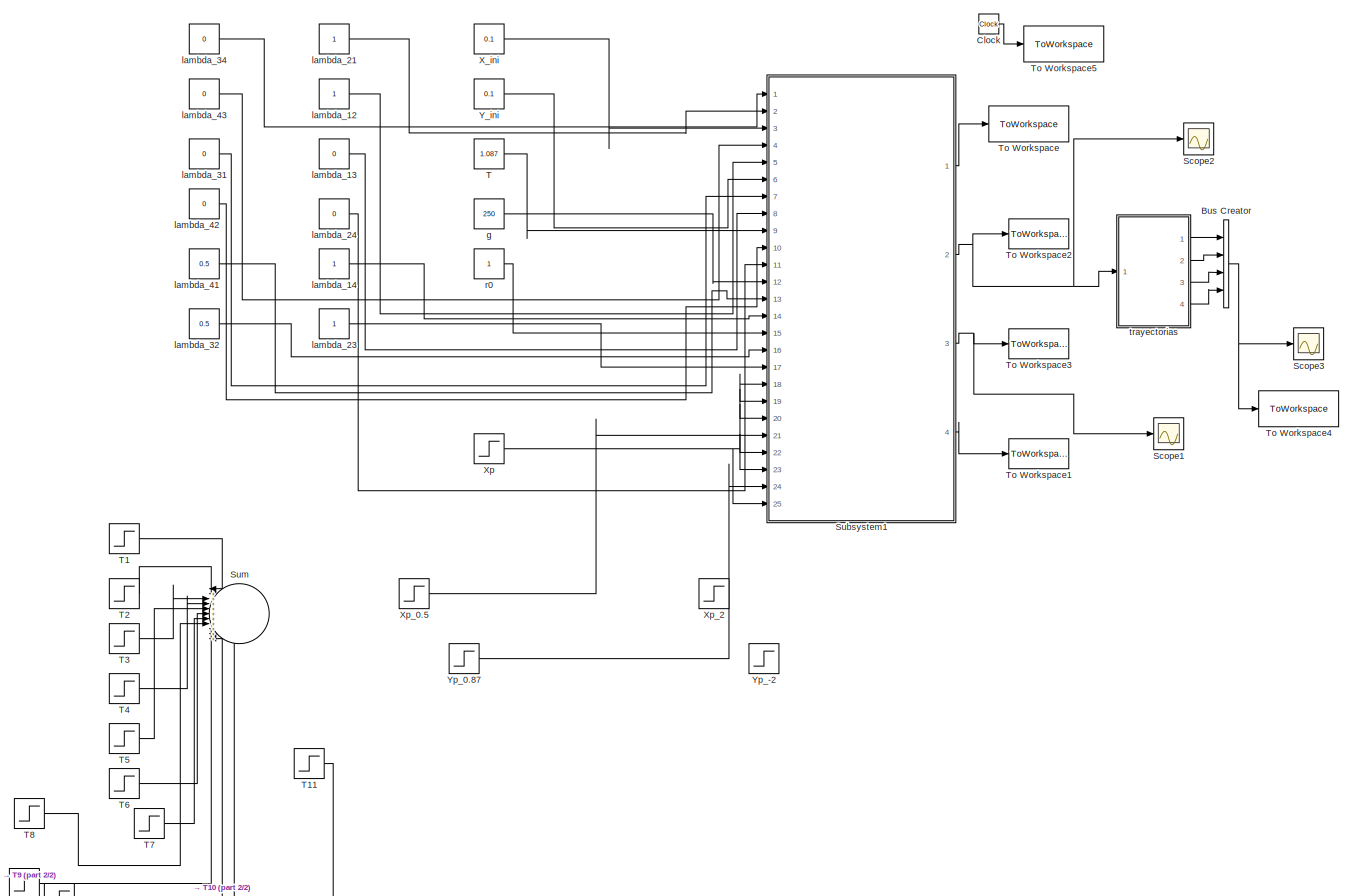
[diagram: root canvas - part 1/2, most of the canvas]
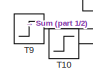
[diagram: root canvas - part 2/2, bottom left region]
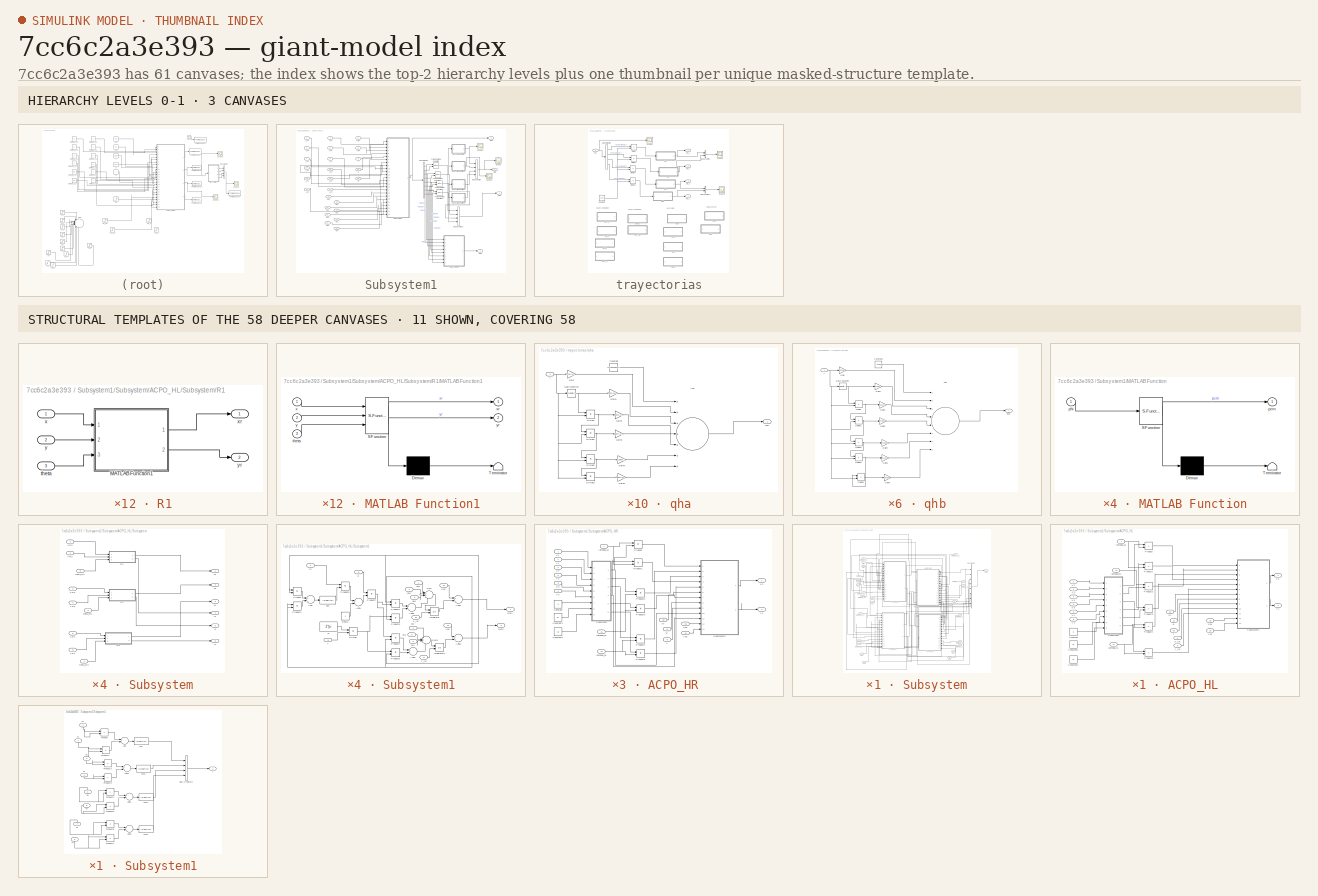
[diagram: thumbnail index - top-2 hierarchy levels (3 canvases) + 11 structural-template representatives of the remaining 58 canvases]
MODEL slx_7cc6c2a3e393
KIND model
BLOCK [BusCreator] Bus Creator
  DisplayOption = bar
  Ports = [4, 1]
BLOCK [Clock] Clock
BLOCK [Scope] Scope1
  DataFormat = StructureWithTime
  Floating = off
  NumInputPorts = 1
  Ports = [1]
  SampleTime = 0
  SaveName = ScopeData11
  ShowLegends = off
BLOCK [Scope] Scope2
  DataFormat = StructureWithTime
  Floating = off
  NumInputPorts = 1
  Ports = [1]
  SampleTime = 0
  SaveName = ScopeData2
  ShowLegends = off
BLOCK [Scope] Scope3
  DataFormat = StructureWithTime
  Floating = off
  NumInputPorts = 1
  Ports = [1]
  SampleTime = 0
  SaveName = ScopeData3
  ShowLegends = off
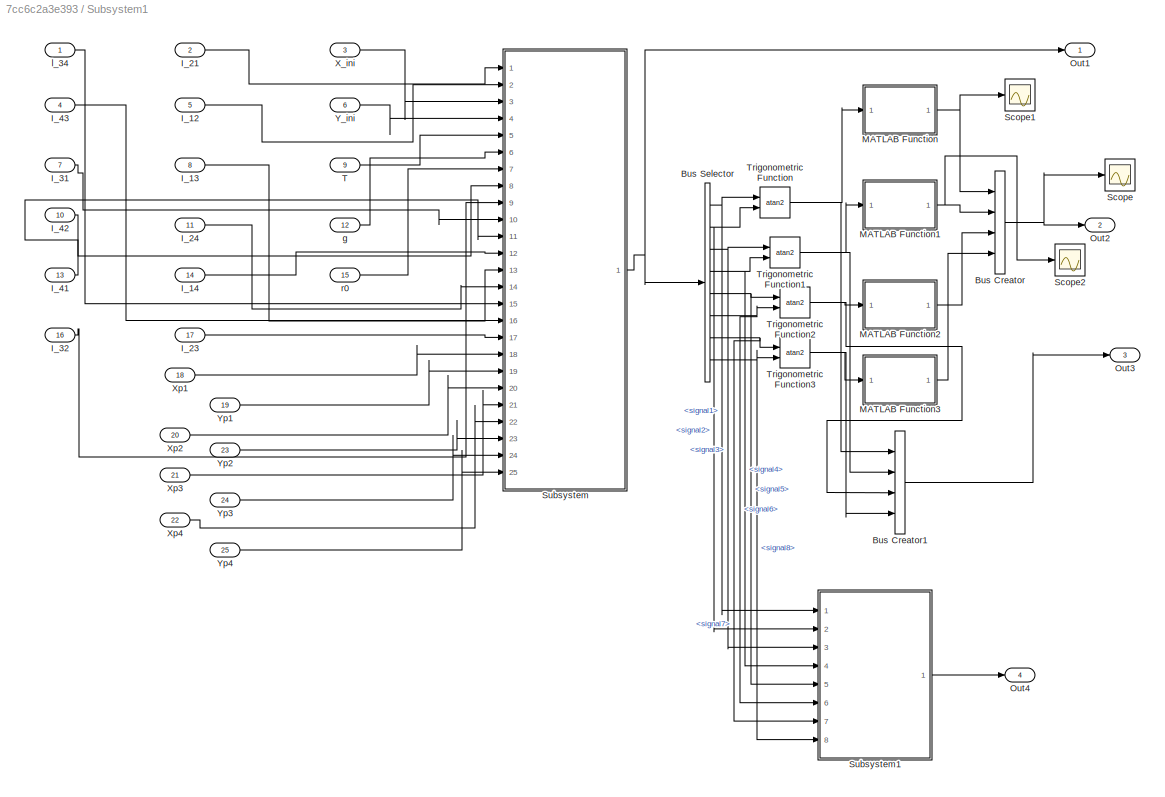
BLOCK [SubSystem] Subsystem1
  FunctionWithSeparateData = off
  MaskHideContents = off
  MinAlgLoopOccurrences = off
  Opaque = off
  Ports = [25, 4]
  PropExecContextOutsideSubsystem = off
  RTWSystemCode = Auto
  RequestExecContextInheritance = off
BLOCK [BusCreator] Subsystem1/Bus Creator
  DisplayOption = bar
  Ports = [4, 1]
BLOCK [BusCreator] Subsystem1/Bus Creator1
  DisplayOption = bar
  Ports = [4, 1]
BLOCK [BusSelector] Subsystem1/Bus Selector
  OutputSignals = signal1,signal2,signal3,signal4,signal5,signal6,signal7,signal8
  Ports = [1, 8]
BLOCK [Inport] Subsystem1/I_12
  IconDisplay = Port number
  Port = 5
BLOCK [Inport] Subsystem1/I_13
  IconDisplay = Port number
  Port = 8
BLOCK [Inport] Subsystem1/I_14
  IconDisplay = Port number
  Port = 14
BLOCK [Inport] Subsystem1/I_21
  IconDisplay = Port number
  Port = 2
BLOCK [Inport] Subsystem1/I_23
  IconDisplay = Port number
  Port = 17
BLOCK [Inport] Subsystem1/I_24
  IconDisplay = Port number
  Port = 11
BLOCK [Inport] Subsystem1/I_31
  IconDisplay = Port number
  Port = 7
BLOCK [Inport] Subsystem1/I_32
  IconDisplay = Port number
  Port = 16
BLOCK [Inport] Subsystem1/I_41
  IconDisplay = Port number
  Port = 13
BLOCK [Inport] Subsystem1/I_42
  IconDisplay = Port number
  Port = 10
BLOCK [Inport] Subsystem1/I_43
  IconDisplay = Port number
  Port = 4
BLOCK [SubSystem] Subsystem1/MATLAB Function
  ErrorFcn = Stateflow.Translate.translate
  FunctionWithSeparateData = off
  MaskHideContents = off
  MinAlgLoopOccurrences = off
  Opaque = off
  PermitHierarchicalResolution = ExplicitOnly
  Ports = [1, 1]
  PropExecContextOutsideSubsystem = off
  RTWSystemCode = Auto
  RequestExecContextInheritance = off
  SFBlockType = MATLAB Function
  TreatAsAtomicUnit = on
BLOCK [Demux] Subsystem1/MATLAB Function/ Demux 
  Outputs = 1
  Ports = [1, 1]
BLOCK [S-Function] Subsystem1/MATLAB Function/ SFunction 
  EnableBusSupport = on
  FunctionName = sf_sfun
  PortCounts = [1 2]
  Ports = [1, 2]
  Tag = Stateflow S-Function Topo_02_pcm 2
BLOCK [Terminator] Subsystem1/MATLAB Function/ Terminator 
BLOCK [Outport] Subsystem1/MATLAB Function/pcm
  IconDisplay = Port number
BLOCK [Inport] Subsystem1/MATLAB Function/phi
  IconDisplay = Port number
BLOCK [SubSystem] Subsystem1/MATLAB Function1
  ErrorFcn = Stateflow.Translate.translate
  FunctionWithSeparateData = off
  MaskHideContents = off
  MinAlgLoopOccurrences = off
  Opaque = off
  PermitHierarchicalResolution = ExplicitOnly
  Ports = [1, 1]
  PropExecContextOutsideSubsystem = off
  RTWSystemCode = Auto
  RequestExecContextInheritance = off
  SFBlockType = MATLAB Function
  TreatAsAtomicUnit = on
BLOCK [Demux] Subsystem1/MATLAB Function1/ Demux 
  Outputs = 1
  Ports = [1, 1]
BLOCK [S-Function] Subsystem1/MATLAB Function1/ SFunction 
  EnableBusSupport = on
  FunctionName = sf_sfun
  PortCounts = [1 2]
  Ports = [1, 2]
  Tag = Stateflow S-Function Topo_02_pcm 14
BLOCK [Terminator] Subsystem1/MATLAB Function1/ Terminator 
BLOCK [Outport] Subsystem1/MATLAB Function1/pcm
  IconDisplay = Port number
BLOCK [Inport] Subsystem1/MATLAB Function1/phi
  IconDisplay = Port number
BLOCK [SubSystem] Subsystem1/MATLAB Function2
  ErrorFcn = Stateflow.Translate.translate
  FunctionWithSeparateData = off
  MaskHideContents = off
  MinAlgLoopOccurrences = off
  Opaque = off
  PermitHierarchicalResolution = ExplicitOnly
  Ports = [1, 1]
  PropExecContextOutsideSubsystem = off
  RTWSystemCode = Auto
  RequestExecContextInheritance = off
  SFBlockType = MATLAB Function
  TreatAsAtomicUnit = on
BLOCK [Demux] Subsystem1/MATLAB Function2/ Demux 
  Outputs = 1
  Ports = [1, 1]
BLOCK [S-Function] Subsystem1/MATLAB Function2/ SFunction 
  EnableBusSupport = on
  FunctionName = sf_sfun
  PortCounts = [1 2]
  Ports = [1, 2]
  Tag = Stateflow S-Function Topo_02_pcm 15
BLOCK [Terminator] Subsystem1/MATLAB Function2/ Terminator 
BLOCK [Outport] Subsystem1/MATLAB Function2/pcm
  IconDisplay = Port number
BLOCK [Inport] Subsystem1/MATLAB Function2/phi
  IconDisplay = Port number
BLOCK [SubSystem] Subsystem1/MATLAB Function3
  ErrorFcn = Stateflow.Translate.translate
  FunctionWithSeparateData = off
  MaskHideContents = off
  MinAlgLoopOccurrences = off
  Opaque = off
  PermitHierarchicalResolution = ExplicitOnly
  Ports = [1, 1]
  PropExecContextOutsideSubsystem = off
  RTWSystemCode = Auto
  RequestExecContextInheritance = off
  SFBlockType = MATLAB Function
  TreatAsAtomicUnit = on
BLOCK [Demux] Subsystem1/MATLAB Function3/ Demux 
  Outputs = 1
  Ports = [1, 1]
BLOCK [S-Function] Subsystem1/MATLAB Function3/ SFunction 
  EnableBusSupport = on
  FunctionName = sf_sfun
  PortCounts = [1 2]
  Ports = [1, 2]
  Tag = Stateflow S-Function Topo_02_pcm 16
BLOCK [Terminator] Subsystem1/MATLAB Function3/ Terminator 
BLOCK [Outport] Subsystem1/MATLAB Function3/pcm
  IconDisplay = Port number
BLOCK [Inport] Subsystem1/MATLAB Function3/phi
  IconDisplay = Port number
BLOCK [Outport] Subsystem1/Out1
  IconDisplay = Port number
BLOCK [Outport] Subsystem1/Out2
  IconDisplay = Port number
  Port = 2
BLOCK [Outport] Subsystem1/Out3
  IconDisplay = Port number
  Port = 3
BLOCK [Outport] Subsystem1/Out4
  IconDisplay = Port number
  Port = 4
BLOCK [Scope] Subsystem1/Scope
  DataFormat = StructureWithTime
  Floating = off
  NumInputPorts = 1
  Ports = [1]
  SampleTime = 0
  SaveName = ScopeData1
  ShowLegends = off
BLOCK [Scope] Subsystem1/Scope1
  DataFormat = StructureWithTime
  Floating = off
  NumInputPorts = 1
  Ports = [1]
  SampleTime = 0
  SaveName = ScopeData9
  ShowLegends = off
  TimeRange = 10
BLOCK [Scope] Subsystem1/Scope2
  DataFormat = StructureWithTime
  Floating = off
  NumInputPorts = 1
  Ports = [1]
  SampleTime = 0
  SaveName = ScopeData10
  ShowLegends = off
BLOCK [SubSystem] Subsystem1/Subsystem
  FunctionWithSeparateData = off
  MaskHideContents = off
  MinAlgLoopOccurrences = off
  Opaque = off
  Ports = [25, 1]
  PropExecContextOutsideSubsystem = off
  RTWSystemCode = Auto
  RequestExecContextInheritance = off
BLOCK [SubSystem] Subsystem1/Subsystem/ACPO_HL
  FunctionWithSeparateData = off
  MaskHideContents = off
  MinAlgLoopOccurrences = off
  Opaque = off
  Ports = [16, 2]
  PropExecContextOutsideSubsystem = off
  RTWSystemCode = Auto
  RequestExecContextInheritance = off
BLOCK [Constant] Subsystem1/Subsystem/ACPO_HL/Constant
  Value = 0
BLOCK [Constant] Subsystem1/Subsystem/ACPO_HL/Constant1
  Value = pi
BLOCK [Constant] Subsystem1/Subsystem/ACPO_HL/Constant2
  Value = pi
BLOCK [Product] Subsystem1/Subsystem/ACPO_HL/Product
  InputSameDT = off
  OutDataTypeStr = Inherit: Inherit via internal rule
  Ports = [2, 1]
  RndMeth = Floor
  SaturateOnIntegerOverflow = off
BLOCK [Product] Subsystem1/Subsystem/ACPO_HL/Product1
  InputSameDT = off
  OutDataTypeStr = Inherit: Inherit via internal rule
  Ports = [2, 1]
  RndMeth = Floor
  SaturateOnIntegerOverflow = off
BLOCK [Product] Subsystem1/Subsystem/ACPO_HL/Product2
  InputSameDT = off
  OutDataTypeStr = Inherit: Inherit via internal rule
  Ports = [2, 1]
  RndMeth = Floor
  SaturateOnIntegerOverflow = off
BLOCK [Product] Subsystem1/Subsystem/ACPO_HL/Product3
  InputSameDT = off
  OutDataTypeStr = Inherit: Inherit via internal rule
  Ports = [2, 1]
  RndMeth = Floor
  SaturateOnIntegerOverflow = off
BLOCK [Product] Subsystem1/Subsystem/ACPO_HL/Product4
  InputSameDT = off
  OutDataTypeStr = Inherit: Inherit via internal rule
  Ports = [2, 1]
  RndMeth = Floor
  SaturateOnIntegerOverflow = off
BLOCK [Product] Subsystem1/Subsystem/ACPO_HL/Product5
  InputSameDT = off
  OutDataTypeStr = Inherit: Inherit via internal rule
  Ports = [2, 1]
  RndMeth = Floor
  SaturateOnIntegerOverflow = off
BLOCK [SubSystem] Subsystem1/Subsystem/ACPO_HL/Subsystem
  FunctionWithSeparateData = off
  MaskHideContents = off
  MinAlgLoopOccurrences = off
  Opaque = off
  Ports = [9, 6]
  PropExecContextOutsideSubsystem = off
  RTWSystemCode = Auto
  RequestExecContextInheritance = off
BLOCK [SubSystem] Subsystem1/Subsystem/ACPO_HL/Subsystem/R1
  FunctionWithSeparateData = off
  MaskHideContents = off
  MinAlgLoopOccurrences = off
  Opaque = off
  Ports = [3, 2]
  PropExecContextOutsideSubsystem = off
  RTWSystemCode = Auto
  RequestExecContextInheritance = off
BLOCK [SubSystem] Subsystem1/Subsystem/ACPO_HL/Subsystem/R1/MATLAB Function1
  ErrorFcn = Stateflow.Translate.translate
  FunctionWithSeparateData = off
  MaskHideContents = off
  MinAlgLoopOccurrences = off
  Opaque = off
  PermitHierarchicalResolution = ExplicitOnly
  Ports = [3, 2]
  PropExecContextOutsideSubsystem = off
  RTWSystemCode = Auto
  RequestExecContextInheritance = off
  SFBlockType = MATLAB Function
  TreatAsAtomicUnit = on
BLOCK [Demux] Subsystem1/Subsystem/ACPO_HL/Subsystem/R1/MATLAB Function1/ Demux 
  Outputs = 1
  Ports = [1, 1]
BLOCK [S-Function] Subsystem1/Subsystem/ACPO_HL/Subsystem/R1/MATLAB Function1/ SFunction 
  EnableBusSupport = on
  FunctionName = sf_sfun
  PortCounts = [3 3]
  Ports = [3, 3]
  Tag = Stateflow S-Function Topo_02_pcm 1
BLOCK [Terminator] Subsystem1/Subsystem/ACPO_HL/Subsystem/R1/MATLAB Function1/ Terminator 
BLOCK [Inport] Subsystem1/Subsystem/ACPO_HL/Subsystem/R1/MATLAB Function1/theta
  IconDisplay = Port number
  Port = 3
BLOCK [Inport] Subsystem1/Subsystem/ACPO_HL/Subsystem/R1/MATLAB Function1/x
  IconDisplay = Port number
BLOCK [Outport] Subsystem1/Subsystem/ACPO_HL/Subsystem/R1/MATLAB Function1/xr
  IconDisplay = Port number
BLOCK [Inport] Subsystem1/Subsystem/ACPO_HL/Subsystem/R1/MATLAB Function1/y
  IconDisplay = Port number
  Port = 2
BLOCK [Outport] Subsystem1/Subsystem/ACPO_HL/Subsystem/R1/MATLAB Function1/yr
  IconDisplay = Port number
  Port = 2
BLOCK [Inport] Subsystem1/Subsystem/ACPO_HL/Subsystem/R1/theta
  IconDisplay = Port number
  Port = 3
BLOCK [Inport] Subsystem1/Subsystem/ACPO_HL/Subsystem/R1/x
  IconDisplay = Port number
BLOCK [Outport] Subsystem1/Subsystem/ACPO_HL/Subsystem/R1/xr
  IconDisplay = Port number
BLOCK [Inport] Subsystem1/Subsystem/ACPO_HL/Subsystem/R1/y
  IconDisplay = Port number
  Port = 2
BLOCK [Outport] Subsystem1/Subsystem/ACPO_HL/Subsystem/R1/yr
  IconDisplay = Port number
  Port = 2
BLOCK [SubSystem] Subsystem1/Subsystem/ACPO_HL/Subsystem/R2
  FunctionWithSeparateData = off
  MaskHideContents = off
  MinAlgLoopOccurrences = off
  Opaque = off
  Ports = [3, 2]
  PropExecContextOutsideSubsystem = off
  RTWSystemCode = Auto
  RequestExecContextInheritance = off
BLOCK [SubSystem] Subsystem1/Subsystem/ACPO_HL/Subsystem/R2/MATLAB Function1
  ErrorFcn = Stateflow.Translate.translate
  FunctionWithSeparateData = off
  MaskHideContents = off
  MinAlgLoopOccurrences = off
  Opaque = off
  PermitHierarchicalResolution = ExplicitOnly
  Ports = [3, 2]
  PropExecContextOutsideSubsystem = off
  RTWSystemCode = Auto
  RequestExecContextInheritance = off
  SFBlockType = MATLAB Function
  TreatAsAtomicUnit = on
BLOCK [Demux] Subsystem1/Subsystem/ACPO_HL/Subsystem/R2/MATLAB Function1/ Demux 
  Outputs = 1
  Ports = [1, 1]
BLOCK [S-Function] Subsystem1/Subsystem/ACPO_HL/Subsystem/R2/MATLAB Function1/ SFunction 
  EnableBusSupport = on
  FunctionName = sf_sfun
  PortCounts = [3 3]
  Ports = [3, 3]
  Tag = Stateflow S-Function Topo_02_pcm 3
BLOCK [Terminator] Subsystem1/Subsystem/ACPO_HL/Subsystem/R2/MATLAB Function1/ Terminator 
BLOCK [Inport] Subsystem1/Subsystem/ACPO_HL/Subsystem/R2/MATLAB Function1/theta
  IconDisplay = Port number
  Port = 3
BLOCK [Inport] Subsystem1/Subsystem/ACPO_HL/Subsystem/R2/MATLAB Function1/x
  IconDisplay = Port number
BLOCK [Outport] Subsystem1/Subsystem/ACPO_HL/Subsystem/R2/MATLAB Function1/xr
  IconDisplay = Port number
BLOCK [Inport] Subsystem1/Subsystem/ACPO_HL/Subsystem/R2/MATLAB Function1/y
  IconDisplay = Port number
  Port = 2
BLOCK [Outport] Subsystem1/Subsystem/ACPO_HL/Subsystem/R2/MATLAB Function1/yr
  IconDisplay = Port number
  Port = 2
BLOCK [Inport] Subsystem1/Subsystem/ACPO_HL/Subsystem/R2/theta
  IconDisplay = Port number
  Port = 3
BLOCK [Inport] Subsystem1/Subsystem/ACPO_HL/Subsystem/R2/x
  IconDisplay = Port number
BLOCK [Outport] Subsystem1/Subsystem/ACPO_HL/Subsystem/R2/xr
  IconDisplay = Port number
BLOCK [Inport] Subsystem1/Subsystem/ACPO_HL/Subsystem/R2/y
  IconDisplay = Port number
  Port = 2
BLOCK [Outport] Subsystem1/Subsystem/ACPO_HL/Subsystem/R2/yr
  IconDisplay = Port number
  Port = 2
BLOCK [SubSystem] Subsystem1/Subsystem/ACPO_HL/Subsystem/R3
  FunctionWithSeparateData = off
  MaskHideContents = off
  MinAlgLoopOccurrences = off
  Opaque = off
  Ports = [3, 2]
  PropExecContextOutsideSubsystem = off
  RTWSystemCode = Auto
  RequestExecContextInheritance = off
BLOCK [SubSystem] Subsystem1/Subsystem/ACPO_HL/Subsystem/R3/MATLAB Function1
  ErrorFcn = Stateflow.Translate.translate
  FunctionWithSeparateData = off
  MaskHideContents = off
  MinAlgLoopOccurrences = off
  Opaque = off
  PermitHierarchicalResolution = ExplicitOnly
  Ports = [3, 2]
  PropExecContextOutsideSubsystem = off
  RTWSystemCode = Auto
  RequestExecContextInheritance = off
  SFBlockType = MATLAB Function
  TreatAsAtomicUnit = on
BLOCK [Demux] Subsystem1/Subsystem/ACPO_HL/Subsystem/R3/MATLAB Function1/ Demux 
  Outputs = 1
  Ports = [1, 1]
BLOCK [S-Function] Subsystem1/Subsystem/ACPO_HL/Subsystem/R3/MATLAB Function1/ SFunction 
  EnableBusSupport = on
  FunctionName = sf_sfun
  PortCounts = [3 3]
  Ports = [3, 3]
  Tag = Stateflow S-Function Topo_02_pcm 4
BLOCK [Terminator] Subsystem1/Subsystem/ACPO_HL/Subsystem/R3/MATLAB Function1/ Terminator 
BLOCK [Inport] Subsystem1/Subsystem/ACPO_HL/Subsystem/R3/MATLAB Function1/theta
  IconDisplay = Port number
  Port = 3
BLOCK [Inport] Subsystem1/Subsystem/ACPO_HL/Subsystem/R3/MATLAB Function1/x
  IconDisplay = Port number
BLOCK [Outport] Subsystem1/Subsystem/ACPO_HL/Subsystem/R3/MATLAB Function1/xr
  IconDisplay = Port number
BLOCK [Inport] Subsystem1/Subsystem/ACPO_HL/Subsystem/R3/MATLAB Function1/y
  IconDisplay = Port number
  Port = 2
BLOCK [Outport] Subsystem1/Subsystem/ACPO_HL/Subsystem/R3/MATLAB Function1/yr
  IconDisplay = Port number
  Port = 2
BLOCK [Inport] Subsystem1/Subsystem/ACPO_HL/Subsystem/R3/theta
  IconDisplay = Port number
  Port = 3
BLOCK [Inport] Subsystem1/Subsystem/ACPO_HL/Subsystem/R3/x
  IconDisplay = Port number
BLOCK [Outport] Subsystem1/Subsystem/ACPO_HL/Subsystem/R3/xr
  IconDisplay = Port number
BLOCK [Inport] Subsystem1/Subsystem/ACPO_HL/Subsystem/R3/y
  IconDisplay = Port number
  Port = 2
BLOCK [Outport] Subsystem1/Subsystem/ACPO_HL/Subsystem/R3/yr
  IconDisplay = Port number
  Port = 2
BLOCK [Inport] Subsystem1/Subsystem/ACPO_HL/Subsystem/XR2
  IconDisplay = Port number
BLOCK [Inport] Subsystem1/Subsystem/ACPO_HL/Subsystem/XR3
  IconDisplay = Port number
  Port = 3
BLOCK [Inport] Subsystem1/Subsystem/ACPO_HL/Subsystem/XR4
  IconDisplay = Port number
  Port = 5
BLOCK [Inport] Subsystem1/Subsystem/ACPO_HL/Subsystem/YR2
  IconDisplay = Port number
  Port = 2
BLOCK [Inport] Subsystem1/Subsystem/ACPO_HL/Subsystem/YR3
  IconDisplay = Port number
  Port = 4
BLOCK [Inport] Subsystem1/Subsystem/ACPO_HL/Subsystem/YR4
  IconDisplay = Port number
  Port = 6
BLOCK [Inport] Subsystem1/Subsystem/ACPO_HL/Subsystem/theta_R1
  IconDisplay = Port number
  Port = 9
BLOCK [Inport] Subsystem1/Subsystem/ACPO_HL/Subsystem/theta_R2
  IconDisplay = Port number
  Port = 8
BLOCK [Inport] Subsystem1/Subsystem/ACPO_HL/Subsystem/theta_R3
  IconDisplay = Port number
  Port = 7
BLOCK [Outport] Subsystem1/Subsystem/ACPO_HL/Subsystem/x2
  IconDisplay = Port number
BLOCK [Outport] Subsystem1/Subsystem/ACPO_HL/Subsystem/x3
  IconDisplay = Port number
  Port = 2
BLOCK [Outport] Subsystem1/Subsystem/ACPO_HL/Subsystem/x4
  IconDisplay = Port number
  Port = 3
BLOCK [Outport] Subsystem1/Subsystem/ACPO_HL/Subsystem/y2
  IconDisplay = Port number
  Port = 4
BLOCK [Outport] Subsystem1/Subsystem/ACPO_HL/Subsystem/y3
  IconDisplay = Port number
  Port = 5
BLOCK [Outport] Subsystem1/Subsystem/ACPO_HL/Subsystem/y4
  IconDisplay = Port number
  Port = 6
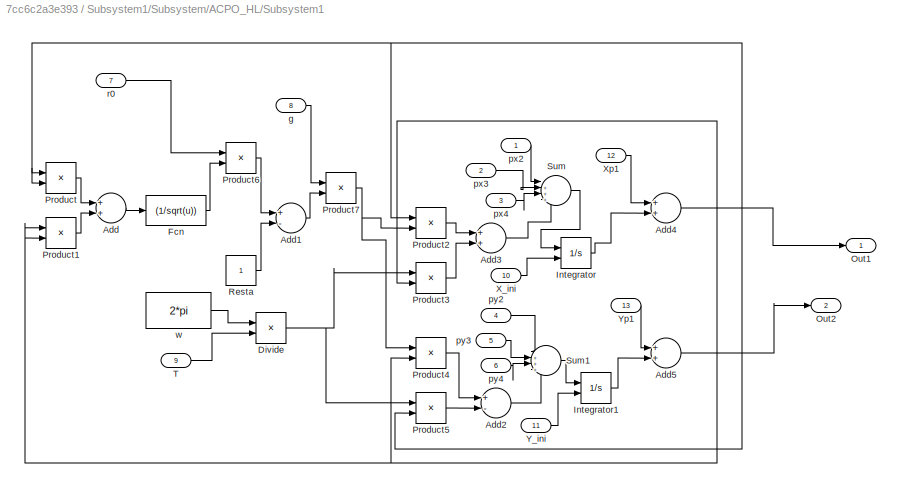
BLOCK [SubSystem] Subsystem1/Subsystem/ACPO_HL/Subsystem1
  FunctionWithSeparateData = off
  MaskHideContents = off
  MinAlgLoopOccurrences = off
  Opaque = off
  Ports = [13, 2]
  PropExecContextOutsideSubsystem = off
  RTWSystemCode = Auto
  RequestExecContextInheritance = off
BLOCK [Sum] Subsystem1/Subsystem/ACPO_HL/Subsystem1/Add
  InputSameDT = off
  OutDataTypeStr = Inherit: Inherit via internal rule
  Ports = [2, 1]
  SaturateOnIntegerOverflow = off
BLOCK [Sum] Subsystem1/Subsystem/ACPO_HL/Subsystem1/Add1
  InputSameDT = off
  Inputs = +-
  OutDataTypeStr = Inherit: Inherit via internal rule
  Ports = [2, 1]
  SaturateOnIntegerOverflow = off
BLOCK [Sum] Subsystem1/Subsystem/ACPO_HL/Subsystem1/Add2
  InputSameDT = off
  Inputs = +-
  OutDataTypeStr = Inherit: Inherit via internal rule
  Ports = [2, 1]
  SaturateOnIntegerOverflow = off
BLOCK [Sum] Subsystem1/Subsystem/ACPO_HL/Subsystem1/Add3
  InputSameDT = off
  OutDataTypeStr = Inherit: Inherit via internal rule
  Ports = [2, 1]
  SaturateOnIntegerOverflow = off
BLOCK [Sum] Subsystem1/Subsystem/ACPO_HL/Subsystem1/Add4
  InputSameDT = off
  OutDataTypeStr = Inherit: Inherit via internal rule
  Ports = [2, 1]
  SaturateOnIntegerOverflow = off
BLOCK [Sum] Subsystem1/Subsystem/ACPO_HL/Subsystem1/Add5
  InputSameDT = off
  OutDataTypeStr = Inherit: Inherit via internal rule
  Ports = [2, 1]
  SaturateOnIntegerOverflow = off
BLOCK [Product] Subsystem1/Subsystem/ACPO_HL/Subsystem1/Divide
  InputSameDT = off
  Inputs = */
  OutDataTypeStr = Inherit: Inherit via internal rule
  Ports = [2, 1]
  RndMeth = Floor
  SaturateOnIntegerOverflow = off
BLOCK [Fcn] Subsystem1/Subsystem/ACPO_HL/Subsystem1/Fcn
  Expr = (1/sqrt(u))
BLOCK [Integrator] Subsystem1/Subsystem/ACPO_HL/Subsystem1/Integrator
  InitialCondition = 0.1
  InitialConditionSource = external
  Ports = [2, 1]
BLOCK [Integrator] Subsystem1/Subsystem/ACPO_HL/Subsystem1/Integrator1
  IgnoreLimit = on
  InitialCondition = 0.1
  InitialConditionSource = external
  Ports = [2, 1]
BLOCK [Outport] Subsystem1/Subsystem/ACPO_HL/Subsystem1/Out1
  IconDisplay = Port number
BLOCK [Outport] Subsystem1/Subsystem/ACPO_HL/Subsystem1/Out2
  IconDisplay = Port number
  Port = 2
BLOCK [Product] Subsystem1/Subsystem/ACPO_HL/Subsystem1/Product
  InputSameDT = off
  OutDataTypeStr = Inherit: Inherit via internal rule
  Ports = [2, 1]
  RndMeth = Floor
  SaturateOnIntegerOverflow = off
BLOCK [Product] Subsystem1/Subsystem/ACPO_HL/Subsystem1/Product1
  InputSameDT = off
  OutDataTypeStr = Inherit: Inherit via internal rule
  Ports = [2, 1]
  RndMeth = Floor
  SaturateOnIntegerOverflow = off
BLOCK [Product] Subsystem1/Subsystem/ACPO_HL/Subsystem1/Product2
  InputSameDT = off
  OutDataTypeStr = Inherit: Inherit via internal rule
  Ports = [2, 1]
  RndMeth = Floor
  SaturateOnIntegerOverflow = off
BLOCK [Product] Subsystem1/Subsystem/ACPO_HL/Subsystem1/Product3
  InputSameDT = off
  OutDataTypeStr = Inherit: Inherit via internal rule
  Ports = [2, 1]
  RndMeth = Floor
  SaturateOnIntegerOverflow = off
BLOCK [Product] Subsystem1/Subsystem/ACPO_HL/Subsystem1/Product4
  InputSameDT = off
  OutDataTypeStr = Inherit: Inherit via internal rule
  Ports = [2, 1]
  RndMeth = Floor
  SaturateOnIntegerOverflow = off
BLOCK [Product] Subsystem1/Subsystem/ACPO_HL/Subsystem1/Product5
  InputSameDT = off
  OutDataTypeStr = Inherit: Inherit via internal rule
  Ports = [2, 1]
  RndMeth = Floor
  SaturateOnIntegerOverflow = off
BLOCK [Product] Subsystem1/Subsystem/ACPO_HL/Subsystem1/Product6
  InputSameDT = off
  OutDataTypeStr = Inherit: Inherit via internal rule
  Ports = [2, 1]
  RndMeth = Floor
  SaturateOnIntegerOverflow = off
BLOCK [Product] Subsystem1/Subsystem/ACPO_HL/Subsystem1/Product7
  InputSameDT = off
  OutDataTypeStr = Inherit: Inherit via internal rule
  Ports = [2, 1]
  RndMeth = Floor
  SaturateOnIntegerOverflow = off
BLOCK [Constant] Subsystem1/Subsystem/ACPO_HL/Subsystem1/Resta
  SampleTime = -1
BLOCK [Sum] Subsystem1/Subsystem/ACPO_HL/Subsystem1/Sum
  IconShape = round
  InputSameDT = off
  Inputs = |++++
  OutDataTypeStr = Inherit: Inherit via internal rule
  Ports = [4, 1]
  SaturateOnIntegerOverflow = off
BLOCK [Sum] Subsystem1/Subsystem/ACPO_HL/Subsystem1/Sum1
  IconShape = round
  InputSameDT = off
  Inputs = |++++
  OutDataTypeStr = Inherit: Inherit via internal rule
  Ports = [4, 1]
  SaturateOnIntegerOverflow = off
BLOCK [Inport] Subsystem1/Subsystem/ACPO_HL/Subsystem1/T
  IconDisplay = Port number
  Port = 9
BLOCK [Inport] Subsystem1/Subsystem/ACPO_HL/Subsystem1/X_ini
  IconDisplay = Port number
  Port = 10
BLOCK [Inport] Subsystem1/Subsystem/ACPO_HL/Subsystem1/Xp1
  IconDisplay = Port number
  Port = 12
BLOCK [Inport] Subsystem1/Subsystem/ACPO_HL/Subsystem1/Y_ini
  IconDisplay = Port number
  Port = 11
BLOCK [Inport] Subsystem1/Subsystem/ACPO_HL/Subsystem1/Yp1
  IconDisplay = Port number
  Port = 13
BLOCK [Inport] Subsystem1/Subsystem/ACPO_HL/Subsystem1/g
  IconDisplay = Port number
  Port = 8
BLOCK [Inport] Subsystem1/Subsystem/ACPO_HL/Subsystem1/px2
  IconDisplay = Port number
BLOCK [Inport] Subsystem1/Subsystem/ACPO_HL/Subsystem1/px3
  IconDisplay = Port number
  Port = 2
BLOCK [Inport] Subsystem1/Subsystem/ACPO_HL/Subsystem1/px4
  IconDisplay = Port number
  Port = 3
BLOCK [Inport] Subsystem1/Subsystem/ACPO_HL/Subsystem1/py2
  IconDisplay = Port number
  Port = 4
BLOCK [Inport] Subsystem1/Subsystem/ACPO_HL/Subsystem1/py3
  IconDisplay = Port number
  Port = 5
BLOCK [Inport] Subsystem1/Subsystem/ACPO_HL/Subsystem1/py4
  IconDisplay = Port number
  Port = 6
BLOCK [Inport] Subsystem1/Subsystem/ACPO_HL/Subsystem1/r0
  IconDisplay = Port number
  Port = 7
BLOCK [Constant] Subsystem1/Subsystem/ACPO_HL/Subsystem1/w
  SampleTime = -1
  Value = 2*pi
BLOCK [Inport] Subsystem1/Subsystem/ACPO_HL/T
  IconDisplay = Port number
  Port = 10
BLOCK [Outport] Subsystem1/Subsystem/ACPO_HL/X1
  IconDisplay = Port number
BLOCK [Inport] Subsystem1/Subsystem/ACPO_HL/X2
  IconDisplay = Port number
BLOCK [Inport] Subsystem1/Subsystem/ACPO_HL/X3
  IconDisplay = Port number
  Port = 2
BLOCK [Inport] Subsystem1/Subsystem/ACPO_HL/X4
  IconDisplay = Port number
  Port = 3
BLOCK [Inport] Subsystem1/Subsystem/ACPO_HL/X_ini
  IconDisplay = Port number
  Port = 8
BLOCK [Inport] Subsystem1/Subsystem/ACPO_HL/Xp1
  IconDisplay = Port number
  Port = 15
BLOCK [Outport] Subsystem1/Subsystem/ACPO_HL/Y1
  IconDisplay = Port number
  Port = 2
BLOCK [Inport] Subsystem1/Subsystem/ACPO_HL/Y2
  IconDisplay = Port number
  Port = 4
BLOCK [Inport] Subsystem1/Subsystem/ACPO_HL/Y3
  IconDisplay = Port number
  Port = 5
BLOCK [Inport] Subsystem1/Subsystem/ACPO_HL/Y4
  IconDisplay = Port number
  Port = 6
BLOCK [Inport] Subsystem1/Subsystem/ACPO_HL/Y_ini
  IconDisplay = Port number
  Port = 9
BLOCK [Inport] Subsystem1/Subsystem/ACPO_HL/Yp1
  IconDisplay = Port number
  Port = 16
BLOCK [Inport] Subsystem1/Subsystem/ACPO_HL/g
  IconDisplay = Port number
  Port = 11
BLOCK [Inport] Subsystem1/Subsystem/ACPO_HL/lambda_21
  IconDisplay = Port number
  Port = 7
BLOCK [Inport] Subsystem1/Subsystem/ACPO_HL/lambda_31
  IconDisplay = Port number
  Port = 13
BLOCK [Inport] Subsystem1/Subsystem/ACPO_HL/lambda_41
  IconDisplay = Port number
  Port = 14
BLOCK [Inport] Subsystem1/Subsystem/ACPO_HL/r0
  IconDisplay = Port number
  Port = 12
BLOCK [SubSystem] Subsystem1/Subsystem/ACPO_HR 
  FunctionWithSeparateData = off
  MaskHideContents = off
  MinAlgLoopOccurrences = off
  Opaque = off
  Ports = [14, 2]
  PropExecContextOutsideSubsystem = off
  RTWSystemCode = Auto
  RequestExecContextInheritance = off
BLOCK [Constant] Subsystem1/Subsystem/ACPO_HR /Constant
  Value = 0
BLOCK [Constant] Subsystem1/Subsystem/ACPO_HR /Constant1
  Value = pi
BLOCK [Constant] Subsystem1/Subsystem/ACPO_HR /Constant2
  Value = -pi
BLOCK [Product] Subsystem1/Subsystem/ACPO_HR /Product
  InputSameDT = off
  OutDataTypeStr = Inherit: Inherit via internal rule
  Ports = [2, 1]
  RndMeth = Floor
  SaturateOnIntegerOverflow = off
BLOCK [Product] Subsystem1/Subsystem/ACPO_HR /Product1
  InputSameDT = off
  OutDataTypeStr = Inherit: Inherit via internal rule
  Ports = [2, 1]
  RndMeth = Floor
  SaturateOnIntegerOverflow = off
BLOCK [Product] Subsystem1/Subsystem/ACPO_HR /Product2
  InputSameDT = off
  OutDataTypeStr = Inherit: Inherit via internal rule
  Ports = [2, 1]
  RndMeth = Floor
  SaturateOnIntegerOverflow = off
BLOCK [Product] Subsystem1/Subsystem/ACPO_HR /Product3
  InputSameDT = off
  OutDataTypeStr = Inherit: Inherit via internal rule
  Ports = [2, 1]
  RndMeth = Floor
  SaturateOnIntegerOverflow = off
BLOCK [Product] Subsystem1/Subsystem/ACPO_HR /Product4
  InputSameDT = off
  OutDataTypeStr = Inherit: Inherit via internal rule
  Ports = [2, 1]
  RndMeth = Floor
  SaturateOnIntegerOverflow = off
BLOCK [Product] Subsystem1/Subsystem/ACPO_HR /Product5
  InputSameDT = off
  OutDataTypeStr = Inherit: Inherit via internal rule
  Ports = [2, 1]
  RndMeth = Floor
  SaturateOnIntegerOverflow = off
BLOCK [SubSystem] Subsystem1/Subsystem/ACPO_HR /Subsystem
  FunctionWithSeparateData = off
  MaskHideContents = off
  MinAlgLoopOccurrences = off
  Opaque = off
  Ports = [9, 6]
  PropExecContextOutsideSubsystem = off
  RTWSystemCode = Auto
  RequestExecContextInheritance = off
BLOCK [SubSystem] Subsystem1/Subsystem/ACPO_HR /Subsystem/R1
  FunctionWithSeparateData = off
  MaskHideContents = off
  MinAlgLoopOccurrences = off
  Opaque = off
  Ports = [3, 2]
  PropExecContextOutsideSubsystem = off
  RTWSystemCode = Auto
  RequestExecContextInheritance = off
BLOCK [SubSystem] Subsystem1/Subsystem/ACPO_HR /Subsystem/R1/MATLAB Function1
  ErrorFcn = Stateflow.Translate.translate
  FunctionWithSeparateData = off
  MaskHideContents = off
  MinAlgLoopOccurrences = off
  Opaque = off
  PermitHierarchicalResolution = ExplicitOnly
  Ports = [3, 2]
  PropExecContextOutsideSubsystem = off
  RTWSystemCode = Auto
  RequestExecContextInheritance = off
  SFBlockType = MATLAB Function
  TreatAsAtomicUnit = on
BLOCK [Demux] Subsystem1/Subsystem/ACPO_HR /Subsystem/R1/MATLAB Function1/ Demux 
  Outputs = 1
  Ports = [1, 1]
BLOCK [S-Function] Subsystem1/Subsystem/ACPO_HR /Subsystem/R1/MATLAB Function1/ SFunction 
  EnableBusSupport = on
  FunctionName = sf_sfun
  PortCounts = [3 3]
  Ports = [3, 3]
  Tag = Stateflow S-Function Topo_02_pcm 5
BLOCK [Terminator] Subsystem1/Subsystem/ACPO_HR /Subsystem/R1/MATLAB Function1/ Terminator 
BLOCK [Inport] Subsystem1/Subsystem/ACPO_HR /Subsystem/R1/MATLAB Function1/theta
  IconDisplay = Port number
  Port = 3
BLOCK [Inport] Subsystem1/Subsystem/ACPO_HR /Subsystem/R1/MATLAB Function1/x
  IconDisplay = Port number
BLOCK [Outport] Subsystem1/Subsystem/ACPO_HR /Subsystem/R1/MATLAB Function1/xr
  IconDisplay = Port number
BLOCK [Inport] Subsystem1/Subsystem/ACPO_HR /Subsystem/R1/MATLAB Function1/y
  IconDisplay = Port number
  Port = 2
BLOCK [Outport] Subsystem1/Subsystem/ACPO_HR /Subsystem/R1/MATLAB Function1/yr
  IconDisplay = Port number
  Port = 2
BLOCK [Inport] Subsystem1/Subsystem/ACPO_HR /Subsystem/R1/theta
  IconDisplay = Port number
  Port = 3
BLOCK [Inport] Subsystem1/Subsystem/ACPO_HR /Subsystem/R1/x
  IconDisplay = Port number
BLOCK [Outport] Subsystem1/Subsystem/ACPO_HR /Subsystem/R1/xr
  IconDisplay = Port number
BLOCK [Inport] Subsystem1/Subsystem/ACPO_HR /Subsystem/R1/y
  IconDisplay = Port number
  Port = 2
BLOCK [Outport] Subsystem1/Subsystem/ACPO_HR /Subsystem/R1/yr
  IconDisplay = Port number
  Port = 2
BLOCK [SubSystem] Subsystem1/Subsystem/ACPO_HR /Subsystem/R2
  FunctionWithSeparateData = off
  MaskHideContents = off
  MinAlgLoopOccurrences = off
  Opaque = off
  Ports = [3, 2]
  PropExecContextOutsideSubsystem = off
  RTWSystemCode = Auto
  RequestExecContextInheritance = off
BLOCK [SubSystem] Subsystem1/Subsystem/ACPO_HR /Subsystem/R2/MATLAB Function1
  ErrorFcn = Stateflow.Translate.translate
  FunctionWithSeparateData = off
  MaskHideContents = off
  MinAlgLoopOccurrences = off
  Opaque = off
  PermitHierarchicalResolution = ExplicitOnly
  Ports = [3, 2]
  PropExecContextOutsideSubsystem = off
  RTWSystemCode = Auto
  RequestExecContextInheritance = off
  SFBlockType = MATLAB Function
  TreatAsAtomicUnit = on
BLOCK [Demux] Subsystem1/Subsystem/ACPO_HR /Subsystem/R2/MATLAB Function1/ Demux 
  Outputs = 1
  Ports = [1, 1]
BLOCK [S-Function] Subsystem1/Subsystem/ACPO_HR /Subsystem/R2/MATLAB Function1/ SFunction 
  EnableBusSupport = on
  FunctionName = sf_sfun
  PortCounts = [3 3]
  Ports = [3, 3]
  Tag = Stateflow S-Function Topo_02_pcm 6
BLOCK [Terminator] Subsystem1/Subsystem/ACPO_HR /Subsystem/R2/MATLAB Function1/ Terminator 
BLOCK [Inport] Subsystem1/Subsystem/ACPO_HR /Subsystem/R2/MATLAB Function1/theta
  IconDisplay = Port number
  Port = 3
BLOCK [Inport] Subsystem1/Subsystem/ACPO_HR /Subsystem/R2/MATLAB Function1/x
  IconDisplay = Port number
BLOCK [Outport] Subsystem1/Subsystem/ACPO_HR /Subsystem/R2/MATLAB Function1/xr
  IconDisplay = Port number
BLOCK [Inport] Subsystem1/Subsystem/ACPO_HR /Subsystem/R2/MATLAB Function1/y
  IconDisplay = Port number
  Port = 2
BLOCK [Outport] Subsystem1/Subsystem/ACPO_HR /Subsystem/R2/MATLAB Function1/yr
  IconDisplay = Port number
  Port = 2
BLOCK [Inport] Subsystem1/Subsystem/ACPO_HR /Subsystem/R2/theta
  IconDisplay = Port number
  Port = 3
BLOCK [Inport] Subsystem1/Subsystem/ACPO_HR /Subsystem/R2/x
  IconDisplay = Port number
BLOCK [Outport] Subsystem1/Subsystem/ACPO_HR /Subsystem/R2/xr
  IconDisplay = Port number
BLOCK [Inport] Subsystem1/Subsystem/ACPO_HR /Subsystem/R2/y
  IconDisplay = Port number
  Port = 2
BLOCK [Outport] Subsystem1/Subsystem/ACPO_HR /Subsystem/R2/yr
  IconDisplay = Port number
  Port = 2
BLOCK [SubSystem] Subsystem1/Subsystem/ACPO_HR /Subsystem/R3
  FunctionWithSeparateData = off
  MaskHideContents = off
  MinAlgLoopOccurrences = off
  Opaque = off
  Ports = [3, 2]
  PropExecContextOutsideSubsystem = off
  RTWSystemCode = Auto
  RequestExecContextInheritance = off
BLOCK [SubSystem] Subsystem1/Subsystem/ACPO_HR /Subsystem/R3/MATLAB Function1
  ErrorFcn = Stateflow.Translate.translate
  FunctionWithSeparateData = off
  MaskHideContents = off
  MinAlgLoopOccurrences = off
  Opaque = off
  PermitHierarchicalResolution = ExplicitOnly
  Ports = [3, 2]
  PropExecContextOutsideSubsystem = off
  RTWSystemCode = Auto
  RequestExecContextInheritance = off
  SFBlockType = MATLAB Function
  TreatAsAtomicUnit = on
BLOCK [Demux] Subsystem1/Subsystem/ACPO_HR /Subsystem/R3/MATLAB Function1/ Demux 
  Outputs = 1
  Ports = [1, 1]
BLOCK [S-Function] Subsystem1/Subsystem/ACPO_HR /Subsystem/R3/MATLAB Function1/ SFunction 
  EnableBusSupport = on
  FunctionName = sf_sfun
  PortCounts = [3 3]
  Ports = [3, 3]
  Tag = Stateflow S-Function Topo_02_pcm 7
BLOCK [Terminator] Subsystem1/Subsystem/ACPO_HR /Subsystem/R3/MATLAB Function1/ Terminator 
BLOCK [Inport] Subsystem1/Subsystem/ACPO_HR /Subsystem/R3/MATLAB Function1/theta
  IconDisplay = Port number
  Port = 3
BLOCK [Inport] Subsystem1/Subsystem/ACPO_HR /Subsystem/R3/MATLAB Function1/x
  IconDisplay = Port number
BLOCK [Outport] Subsystem1/Subsystem/ACPO_HR /Subsystem/R3/MATLAB Function1/xr
  IconDisplay = Port number
BLOCK [Inport] Subsystem1/Subsystem/ACPO_HR /Subsystem/R3/MATLAB Function1/y
  IconDisplay = Port number
  Port = 2
BLOCK [Outport] Subsystem1/Subsystem/ACPO_HR /Subsystem/R3/MATLAB Function1/yr
  IconDisplay = Port number
  Port = 2
BLOCK [Inport] Subsystem1/Subsystem/ACPO_HR /Subsystem/R3/theta
  IconDisplay = Port number
  Port = 3
BLOCK [Inport] Subsystem1/Subsystem/ACPO_HR /Subsystem/R3/x
  IconDisplay = Port number
BLOCK [Outport] Subsystem1/Subsystem/ACPO_HR /Subsystem/R3/xr
  IconDisplay = Port number
BLOCK [Inport] Subsystem1/Subsystem/ACPO_HR /Subsystem/R3/y
  IconDisplay = Port number
  Port = 2
BLOCK [Outport] Subsystem1/Subsystem/ACPO_HR /Subsystem/R3/yr
  IconDisplay = Port number
  Port = 2
BLOCK [Inport] Subsystem1/Subsystem/ACPO_HR /Subsystem/XR1
  IconDisplay = Port number
BLOCK [Inport] Subsystem1/Subsystem/ACPO_HR /Subsystem/XR3
  IconDisplay = Port number
  Port = 5
BLOCK [Inport] Subsystem1/Subsystem/ACPO_HR /Subsystem/XR4
  IconDisplay = Port number
  Port = 3
BLOCK [Inport] Subsystem1/Subsystem/ACPO_HR /Subsystem/YR1
  IconDisplay = Port number
  Port = 2
BLOCK [Inport] Subsystem1/Subsystem/ACPO_HR /Subsystem/YR3
  IconDisplay = Port number
  Port = 6
BLOCK [Inport] Subsystem1/Subsystem/ACPO_HR /Subsystem/YR4
  IconDisplay = Port number
  Port = 4
BLOCK [Inport] Subsystem1/Subsystem/ACPO_HR /Subsystem/theta_R1
  IconDisplay = Port number
  Port = 9
BLOCK [Inport] Subsystem1/Subsystem/ACPO_HR /Subsystem/theta_R2
  IconDisplay = Port number
  Port = 8
BLOCK [Inport] Subsystem1/Subsystem/ACPO_HR /Subsystem/theta_R3
  IconDisplay = Port number
  Port = 7
BLOCK [Outport] Subsystem1/Subsystem/ACPO_HR /Subsystem/x1
  IconDisplay = Port number
BLOCK [Outport] Subsystem1/Subsystem/ACPO_HR /Subsystem/x3
  IconDisplay = Port number
  Port = 3
BLOCK [Outport] Subsystem1/Subsystem/ACPO_HR /Subsystem/x4
  IconDisplay = Port number
  Port = 2
BLOCK [Outport] Subsystem1/Subsystem/ACPO_HR /Subsystem/y1
  IconDisplay = Port number
  Port = 4
BLOCK [Outport] Subsystem1/Subsystem/ACPO_HR /Subsystem/y3
  IconDisplay = Port number
  Port = 6
BLOCK [Outport] Subsystem1/Subsystem/ACPO_HR /Subsystem/y4
  IconDisplay = Port number
  Port = 5
BLOCK [SubSystem] Subsystem1/Subsystem/ACPO_HR /Subsystem1
  FunctionWithSeparateData = off
  MaskHideContents = off
  MinAlgLoopOccurrences = off
  Opaque = off
  Ports = [13, 2]
  PropExecContextOutsideSubsystem = off
  RTWSystemCode = Auto
  RequestExecContextInheritance = off
BLOCK [Sum] Subsystem1/Subsystem/ACPO_HR /Subsystem1/Add
  InputSameDT = off
  OutDataTypeStr = Inherit: Inherit via internal rule
  Ports = [2, 1]
  SaturateOnIntegerOverflow = off
BLOCK [Sum] Subsystem1/Subsystem/ACPO_HR /Subsystem1/Add1
  InputSameDT = off
  Inputs = +-
  OutDataTypeStr = Inherit: Inherit via internal rule
  Ports = [2, 1]
  SaturateOnIntegerOverflow = off
BLOCK [Sum] Subsystem1/Subsystem/ACPO_HR /Subsystem1/Add2
  InputSameDT = off
  Inputs = +-
  OutDataTypeStr = Inherit: Inherit via internal rule
  Ports = [2, 1]
  SaturateOnIntegerOverflow = off
BLOCK [Sum] Subsystem1/Subsystem/ACPO_HR /Subsystem1/Add3
  InputSameDT = off
  OutDataTypeStr = Inherit: Inherit via internal rule
  Ports = [2, 1]
  SaturateOnIntegerOverflow = off
BLOCK [Sum] Subsystem1/Subsystem/ACPO_HR /Subsystem1/Add4
  InputSameDT = off
  OutDataTypeStr = Inherit: Inherit via internal rule
  Ports = [2, 1]
  SaturateOnIntegerOverflow = off
BLOCK [Sum] Subsystem1/Subsystem/ACPO_HR /Subsystem1/Add5
  InputSameDT = off
  OutDataTypeStr = Inherit: Inherit via internal rule
  Ports = [2, 1]
  SaturateOnIntegerOverflow = off
BLOCK [Product] Subsystem1/Subsystem/ACPO_HR /Subsystem1/Divide
  InputSameDT = off
  Inputs = */
  OutDataTypeStr = Inherit: Inherit via internal rule
  Ports = [2, 1]
  RndMeth = Floor
  SaturateOnIntegerOverflow = off
BLOCK [Fcn] Subsystem1/Subsystem/ACPO_HR /Subsystem1/Fcn
  Expr = (1/sqrt(u))
BLOCK [Integrator] Subsystem1/Subsystem/ACPO_HR /Subsystem1/Integrator
  InitialCondition = 0.1
  InitialConditionSource = external
  Ports = [2, 1]
BLOCK [Integrator] Subsystem1/Subsystem/ACPO_HR /Subsystem1/Integrator1
  IgnoreLimit = on
  InitialCondition = 0.1
  InitialConditionSource = external
  Ports = [2, 1]
BLOCK [Outport] Subsystem1/Subsystem/ACPO_HR /Subsystem1/Out1
  IconDisplay = Port number
BLOCK [Outport] Subsystem1/Subsystem/ACPO_HR /Subsystem1/Out2
  IconDisplay = Port number
  Port = 2
BLOCK [Product] Subsystem1/Subsystem/ACPO_HR /Subsystem1/Product
  InputSameDT = off
  OutDataTypeStr = Inherit: Inherit via internal rule
  Ports = [2, 1]
  RndMeth = Floor
  SaturateOnIntegerOverflow = off
BLOCK [Product] Subsystem1/Subsystem/ACPO_HR /Subsystem1/Product1
  InputSameDT = off
  OutDataTypeStr = Inherit: Inherit via internal rule
  Ports = [2, 1]
  RndMeth = Floor
  SaturateOnIntegerOverflow = off
BLOCK [Product] Subsystem1/Subsystem/ACPO_HR /Subsystem1/Product2
  InputSameDT = off
  OutDataTypeStr = Inherit: Inherit via internal rule
  Ports = [2, 1]
  RndMeth = Floor
  SaturateOnIntegerOverflow = off
BLOCK [Product] Subsystem1/Subsystem/ACPO_HR /Subsystem1/Product3
  InputSameDT = off
  OutDataTypeStr = Inherit: Inherit via internal rule
  Ports = [2, 1]
  RndMeth = Floor
  SaturateOnIntegerOverflow = off
BLOCK [Product] Subsystem1/Subsystem/ACPO_HR /Subsystem1/Product4
  InputSameDT = off
  OutDataTypeStr = Inherit: Inherit via internal rule
  Ports = [2, 1]
  RndMeth = Floor
  SaturateOnIntegerOverflow = off
BLOCK [Product] Subsystem1/Subsystem/ACPO_HR /Subsystem1/Product5
  InputSameDT = off
  OutDataTypeStr = Inherit: Inherit via internal rule
  Ports = [2, 1]
  RndMeth = Floor
  SaturateOnIntegerOverflow = off
BLOCK [Product] Subsystem1/Subsystem/ACPO_HR /Subsystem1/Product6
  InputSameDT = off
  OutDataTypeStr = Inherit: Inherit via internal rule
  Ports = [2, 1]
  RndMeth = Floor
  SaturateOnIntegerOverflow = off
BLOCK [Product] Subsystem1/Subsystem/ACPO_HR /Subsystem1/Product7
  InputSameDT = off
  OutDataTypeStr = Inherit: Inherit via internal rule
  Ports = [2, 1]
  RndMeth = Floor
  SaturateOnIntegerOverflow = off
BLOCK [Constant] Subsystem1/Subsystem/ACPO_HR /Subsystem1/Resta
  SampleTime = -1
BLOCK [Sum] Subsystem1/Subsystem/ACPO_HR /Subsystem1/Sum
  IconShape = round
  InputSameDT = off
  Inputs = |++++
  OutDataTypeStr = Inherit: Inherit via internal rule
  Ports = [4, 1]
  SaturateOnIntegerOverflow = off
BLOCK [Sum] Subsystem1/Subsystem/ACPO_HR /Subsystem1/Sum1
  IconShape = round
  InputSameDT = off
  Inputs = |++++
  OutDataTypeStr = Inherit: Inherit via internal rule
  Ports = [4, 1]
  SaturateOnIntegerOverflow = off
BLOCK [Inport] Subsystem1/Subsystem/ACPO_HR /Subsystem1/T
  IconDisplay = Port number
  Port = 9
BLOCK [Inport] Subsystem1/Subsystem/ACPO_HR /Subsystem1/X_ini
  IconDisplay = Port number
  Port = 10
BLOCK [Inport] Subsystem1/Subsystem/ACPO_HR /Subsystem1/Xp2
  IconDisplay = Port number
  Port = 12
BLOCK [Inport] Subsystem1/Subsystem/ACPO_HR /Subsystem1/Y_ini
  IconDisplay = Port number
  Port = 11
BLOCK [Inport] Subsystem1/Subsystem/ACPO_HR /Subsystem1/Yp2
  IconDisplay = Port number
  Port = 13
BLOCK [Inport] Subsystem1/Subsystem/ACPO_HR /Subsystem1/g
  IconDisplay = Port number
  Port = 8
BLOCK [Inport] Subsystem1/Subsystem/ACPO_HR /Subsystem1/px1
  IconDisplay = Port number
BLOCK [Inport] Subsystem1/Subsystem/ACPO_HR /Subsystem1/px3
  IconDisplay = Port number
  Port = 2
BLOCK [Inport] Subsystem1/Subsystem/ACPO_HR /Subsystem1/px4
  IconDisplay = Port number
  Port = 3
BLOCK [Inport] Subsystem1/Subsystem/ACPO_HR /Subsystem1/py1
  IconDisplay = Port number
  Port = 4
BLOCK [Inport] Subsystem1/Subsystem/ACPO_HR /Subsystem1/py3
  IconDisplay = Port number
  Port = 5
BLOCK [Inport] Subsystem1/Subsystem/ACPO_HR /Subsystem1/py4
  IconDisplay = Port number
  Port = 6
BLOCK [Inport] Subsystem1/Subsystem/ACPO_HR /Subsystem1/r0
  IconDisplay = Port number
  Port = 7
BLOCK [Constant] Subsystem1/Subsystem/ACPO_HR /Subsystem1/w
  SampleTime = -1
  Value = 2*pi
BLOCK [Inport] Subsystem1/Subsystem/ACPO_HR /T
  IconDisplay = Port number
  Port = 8
BLOCK [Inport] Subsystem1/Subsystem/ACPO_HR /X1
  IconDisplay = Port number
BLOCK [Outport] Subsystem1/Subsystem/ACPO_HR /X2
  IconDisplay = Port number
BLOCK [Inport] Subsystem1/Subsystem/ACPO_HR /X3
  IconDisplay = Port number
  Port = 3
BLOCK [Inport] Subsystem1/Subsystem/ACPO_HR /X4
  IconDisplay = Port number
  Port = 2
BLOCK [Inport] Subsystem1/Subsystem/ACPO_HR /Xp2
  IconDisplay = Port number
  Port = 13
BLOCK [Inport] Subsystem1/Subsystem/ACPO_HR /Y1
  IconDisplay = Port number
  Port = 4
BLOCK [Outport] Subsystem1/Subsystem/ACPO_HR /Y2
  IconDisplay = Port number
  Port = 2
BLOCK [Inport] Subsystem1/Subsystem/ACPO_HR /Y3
  IconDisplay = Port number
  Port = 6
BLOCK [Inport] Subsystem1/Subsystem/ACPO_HR /Y4
  IconDisplay = Port number
  Port = 5
BLOCK [Inport] Subsystem1/Subsystem/ACPO_HR /Yp2
  IconDisplay = Port number
  Port = 14
BLOCK [Inport] Subsystem1/Subsystem/ACPO_HR /g
  IconDisplay = Port number
  Port = 9
BLOCK [Inport] Subsystem1/Subsystem/ACPO_HR /lambda_12
  IconDisplay = Port number
  Port = 7
BLOCK [Inport] Subsystem1/Subsystem/ACPO_HR /lambda_32
  IconDisplay = Port number
  Port = 12
BLOCK [Inport] Subsystem1/Subsystem/ACPO_HR /lambda_42
  IconDisplay = Port number
  Port = 11
BLOCK [Inport] Subsystem1/Subsystem/ACPO_HR /r0
  IconDisplay = Port number
  Port = 10
BLOCK [SubSystem] Subsystem1/Subsystem/ACPO_KL
  FunctionWithSeparateData = off
  MaskHideContents = off
  MinAlgLoopOccurrences = off
  Opaque = off
  Ports = [14, 2]
  PropExecContextOutsideSubsystem = off
  RTWSystemCode = Auto
  RequestExecContextInheritance = off
BLOCK [Constant] Subsystem1/Subsystem/ACPO_KL/Constant
  Value = -pi
BLOCK [Constant] Subsystem1/Subsystem/ACPO_KL/Constant1
  Value = -pi
BLOCK [Constant] Subsystem1/Subsystem/ACPO_KL/Constant2
  Value = 0
BLOCK [Product] Subsystem1/Subsystem/ACPO_KL/Product
  InputSameDT = off
  OutDataTypeStr = Inherit: Inherit via internal rule
  Ports = [2, 1]
  RndMeth = Floor
  SaturateOnIntegerOverflow = off
BLOCK [Product] Subsystem1/Subsystem/ACPO_KL/Product1
  InputSameDT = off
  OutDataTypeStr = Inherit: Inherit via internal rule
  Ports = [2, 1]
  RndMeth = Floor
  SaturateOnIntegerOverflow = off
BLOCK [Product] Subsystem1/Subsystem/ACPO_KL/Product2
  InputSameDT = off
  OutDataTypeStr = Inherit: Inherit via internal rule
  Ports = [2, 1]
  RndMeth = Floor
  SaturateOnIntegerOverflow = off
BLOCK [Product] Subsystem1/Subsystem/ACPO_KL/Product3
  InputSameDT = off
  OutDataTypeStr = Inherit: Inherit via internal rule
  Ports = [2, 1]
  RndMeth = Floor
  SaturateOnIntegerOverflow = off
BLOCK [Product] Subsystem1/Subsystem/ACPO_KL/Product4
  InputSameDT = off
  OutDataTypeStr = Inherit: Inherit via internal rule
  Ports = [2, 1]
  RndMeth = Floor
  SaturateOnIntegerOverflow = off
BLOCK [Product] Subsystem1/Subsystem/ACPO_KL/Product5
  InputSameDT = off
  OutDataTypeStr = Inherit: Inherit via internal rule
  Ports = [2, 1]
  RndMeth = Floor
  SaturateOnIntegerOverflow = off
BLOCK [SubSystem] Subsystem1/Subsystem/ACPO_KL/Subsystem
  FunctionWithSeparateData = off
  MaskHideContents = off
  MinAlgLoopOccurrences = off
  Opaque = off
  Ports = [9, 6]
  PropExecContextOutsideSubsystem = off
  RTWSystemCode = Auto
  RequestExecContextInheritance = off
BLOCK [SubSystem] Subsystem1/Subsystem/ACPO_KL/Subsystem/R1
  FunctionWithSeparateData = off
  MaskHideContents = off
  MinAlgLoopOccurrences = off
  Opaque = off
  Ports = [3, 2]
  PropExecContextOutsideSubsystem = off
  RTWSystemCode = Auto
  RequestExecContextInheritance = off
BLOCK [SubSystem] Subsystem1/Subsystem/ACPO_KL/Subsystem/R1/MATLAB Function1
  ErrorFcn = Stateflow.Translate.translate
  FunctionWithSeparateData = off
  MaskHideContents = off
  MinAlgLoopOccurrences = off
  Opaque = off
  PermitHierarchicalResolution = ExplicitOnly
  Ports = [3, 2]
  PropExecContextOutsideSubsystem = off
  RTWSystemCode = Auto
  RequestExecContextInheritance = off
  SFBlockType = MATLAB Function
  TreatAsAtomicUnit = on
BLOCK [Demux] Subsystem1/Subsystem/ACPO_KL/Subsystem/R1/MATLAB Function1/ Demux 
  Outputs = 1
  Ports = [1, 1]
BLOCK [S-Function] Subsystem1/Subsystem/ACPO_KL/Subsystem/R1/MATLAB Function1/ SFunction 
  EnableBusSupport = on
  FunctionName = sf_sfun
  PortCounts = [3 3]
  Ports = [3, 3]
  Tag = Stateflow S-Function Topo_02_pcm 12
BLOCK [Terminator] Subsystem1/Subsystem/ACPO_KL/Subsystem/R1/MATLAB Function1/ Terminator 
BLOCK [Inport] Subsystem1/Subsystem/ACPO_KL/Subsystem/R1/MATLAB Function1/theta
  IconDisplay = Port number
  Port = 3
BLOCK [Inport] Subsystem1/Subsystem/ACPO_KL/Subsystem/R1/MATLAB Function1/x
  IconDisplay = Port number
BLOCK [Outport] Subsystem1/Subsystem/ACPO_KL/Subsystem/R1/MATLAB Function1/xr
  IconDisplay = Port number
BLOCK [Inport] Subsystem1/Subsystem/ACPO_KL/Subsystem/R1/MATLAB Function1/y
  IconDisplay = Port number
  Port = 2
BLOCK [Outport] Subsystem1/Subsystem/ACPO_KL/Subsystem/R1/MATLAB Function1/yr
  IconDisplay = Port number
  Port = 2
BLOCK [Inport] Subsystem1/Subsystem/ACPO_KL/Subsystem/R1/theta
  IconDisplay = Port number
  Port = 3
BLOCK [Inport] Subsystem1/Subsystem/ACPO_KL/Subsystem/R1/x
  IconDisplay = Port number
BLOCK [Outport] Subsystem1/Subsystem/ACPO_KL/Subsystem/R1/xr
  IconDisplay = Port number
BLOCK [Inport] Subsystem1/Subsystem/ACPO_KL/Subsystem/R1/y
  IconDisplay = Port number
  Port = 2
BLOCK [Outport] Subsystem1/Subsystem/ACPO_KL/Subsystem/R1/yr
  IconDisplay = Port number
  Port = 2
BLOCK [SubSystem] Subsystem1/Subsystem/ACPO_KL/Subsystem/R2
  FunctionWithSeparateData = off
  MaskHideContents = off
  MinAlgLoopOccurrences = off
  Opaque = off
  Ports = [3, 2]
  PropExecContextOutsideSubsystem = off
  RTWSystemCode = Auto
  RequestExecContextInheritance = off
BLOCK [SubSystem] Subsystem1/Subsystem/ACPO_KL/Subsystem/R2/MATLAB Function1
  ErrorFcn = Stateflow.Translate.translate
  FunctionWithSeparateData = off
  MaskHideContents = off
  MinAlgLoopOccurrences = off
  Opaque = off
  PermitHierarchicalResolution = ExplicitOnly
  Ports = [3, 2]
  PropExecContextOutsideSubsystem = off
  RTWSystemCode = Auto
  RequestExecContextInheritance = off
  SFBlockType = MATLAB Function
  TreatAsAtomicUnit = on
BLOCK [Demux] Subsystem1/Subsystem/ACPO_KL/Subsystem/R2/MATLAB Function1/ Demux 
  Outputs = 1
  Ports = [1, 1]
BLOCK [S-Function] Subsystem1/Subsystem/ACPO_KL/Subsystem/R2/MATLAB Function1/ SFunction 
  EnableBusSupport = on
  FunctionName = sf_sfun
  PortCounts = [3 3]
  Ports = [3, 3]
  Tag = Stateflow S-Function Topo_02_pcm 11
BLOCK [Terminator] Subsystem1/Subsystem/ACPO_KL/Subsystem/R2/MATLAB Function1/ Terminator 
BLOCK [Inport] Subsystem1/Subsystem/ACPO_KL/Subsystem/R2/MATLAB Function1/theta
  IconDisplay = Port number
  Port = 3
BLOCK [Inport] Subsystem1/Subsystem/ACPO_KL/Subsystem/R2/MATLAB Function1/x
  IconDisplay = Port number
BLOCK [Outport] Subsystem1/Subsystem/ACPO_KL/Subsystem/R2/MATLAB Function1/xr
  IconDisplay = Port number
BLOCK [Inport] Subsystem1/Subsystem/ACPO_KL/Subsystem/R2/MATLAB Function1/y
  IconDisplay = Port number
  Port = 2
BLOCK [Outport] Subsystem1/Subsystem/ACPO_KL/Subsystem/R2/MATLAB Function1/yr
  IconDisplay = Port number
  Port = 2
BLOCK [Inport] Subsystem1/Subsystem/ACPO_KL/Subsystem/R2/theta
  IconDisplay = Port number
  Port = 3
BLOCK [Inport] Subsystem1/Subsystem/ACPO_KL/Subsystem/R2/x
  IconDisplay = Port number
BLOCK [Outport] Subsystem1/Subsystem/ACPO_KL/Subsystem/R2/xr
  IconDisplay = Port number
BLOCK [Inport] Subsystem1/Subsystem/ACPO_KL/Subsystem/R2/y
  IconDisplay = Port number
  Port = 2
BLOCK [Outport] Subsystem1/Subsystem/ACPO_KL/Subsystem/R2/yr
  IconDisplay = Port number
  Port = 2
BLOCK [SubSystem] Subsystem1/Subsystem/ACPO_KL/Subsystem/R3
  FunctionWithSeparateData = off
  MaskHideContents = off
  MinAlgLoopOccurrences = off
  Opaque = off
  Ports = [3, 2]
  PropExecContextOutsideSubsystem = off
  RTWSystemCode = Auto
  RequestExecContextInheritance = off
BLOCK [SubSystem] Subsystem1/Subsystem/ACPO_KL/Subsystem/R3/MATLAB Function1
  ErrorFcn = Stateflow.Translate.translate
  FunctionWithSeparateData = off
  MaskHideContents = off
  MinAlgLoopOccurrences = off
  Opaque = off
  PermitHierarchicalResolution = ExplicitOnly
  Ports = [3, 2]
  PropExecContextOutsideSubsystem = off
  RTWSystemCode = Auto
  RequestExecContextInheritance = off
  SFBlockType = MATLAB Function
  TreatAsAtomicUnit = on
BLOCK [Demux] Subsystem1/Subsystem/ACPO_KL/Subsystem/R3/MATLAB Function1/ Demux 
  Outputs = 1
  Ports = [1, 1]
BLOCK [S-Function] Subsystem1/Subsystem/ACPO_KL/Subsystem/R3/MATLAB Function1/ SFunction 
  EnableBusSupport = on
  FunctionName = sf_sfun
  PortCounts = [3 3]
  Ports = [3, 3]
  Tag = Stateflow S-Function Topo_02_pcm 10
BLOCK [Terminator] Subsystem1/Subsystem/ACPO_KL/Subsystem/R3/MATLAB Function1/ Terminator 
BLOCK [Inport] Subsystem1/Subsystem/ACPO_KL/Subsystem/R3/MATLAB Function1/theta
  IconDisplay = Port number
  Port = 3
BLOCK [Inport] Subsystem1/Subsystem/ACPO_KL/Subsystem/R3/MATLAB Function1/x
  IconDisplay = Port number
BLOCK [Outport] Subsystem1/Subsystem/ACPO_KL/Subsystem/R3/MATLAB Function1/xr
  IconDisplay = Port number
BLOCK [Inport] Subsystem1/Subsystem/ACPO_KL/Subsystem/R3/MATLAB Function1/y
  IconDisplay = Port number
  Port = 2
BLOCK [Outport] Subsystem1/Subsystem/ACPO_KL/Subsystem/R3/MATLAB Function1/yr
  IconDisplay = Port number
  Port = 2
BLOCK [Inport] Subsystem1/Subsystem/ACPO_KL/Subsystem/R3/theta
  IconDisplay = Port number
  Port = 3
BLOCK [Inport] Subsystem1/Subsystem/ACPO_KL/Subsystem/R3/x
  IconDisplay = Port number
BLOCK [Outport] Subsystem1/Subsystem/ACPO_KL/Subsystem/R3/xr
  IconDisplay = Port number
BLOCK [Inport] Subsystem1/Subsystem/ACPO_KL/Subsystem/R3/y
  IconDisplay = Port number
  Port = 2
BLOCK [Outport] Subsystem1/Subsystem/ACPO_KL/Subsystem/R3/yr
  IconDisplay = Port number
  Port = 2
BLOCK [Inport] Subsystem1/Subsystem/ACPO_KL/Subsystem/XR1
  IconDisplay = Port number
BLOCK [Inport] Subsystem1/Subsystem/ACPO_KL/Subsystem/XR3
  IconDisplay = Port number
  Port = 5
BLOCK [Inport] Subsystem1/Subsystem/ACPO_KL/Subsystem/XR4
  IconDisplay = Port number
  Port = 3
BLOCK [Inport] Subsystem1/Subsystem/ACPO_KL/Subsystem/YR1
  IconDisplay = Port number
  Port = 2
BLOCK [Inport] Subsystem1/Subsystem/ACPO_KL/Subsystem/YR3
  IconDisplay = Port number
  Port = 6
BLOCK [Inport] Subsystem1/Subsystem/ACPO_KL/Subsystem/YR4
  IconDisplay = Port number
  Port = 4
BLOCK [Inport] Subsystem1/Subsystem/ACPO_KL/Subsystem/theta_R1
  IconDisplay = Port number
  Port = 7
BLOCK [Inport] Subsystem1/Subsystem/ACPO_KL/Subsystem/theta_R2
  IconDisplay = Port number
  Port = 8
BLOCK [Inport] Subsystem1/Subsystem/ACPO_KL/Subsystem/theta_R3
  IconDisplay = Port number
  Port = 9
BLOCK [Outport] Subsystem1/Subsystem/ACPO_KL/Subsystem/x1
  IconDisplay = Port number
BLOCK [Outport] Subsystem1/Subsystem/ACPO_KL/Subsystem/x2
  IconDisplay = Port number
  Port = 2
BLOCK [Outport] Subsystem1/Subsystem/ACPO_KL/Subsystem/x3
  IconDisplay = Port number
  Port = 3
BLOCK [Outport] Subsystem1/Subsystem/ACPO_KL/Subsystem/y1
  IconDisplay = Port number
  Port = 4
BLOCK [Outport] Subsystem1/Subsystem/ACPO_KL/Subsystem/y2
  IconDisplay = Port number
  Port = 5
BLOCK [Outport] Subsystem1/Subsystem/ACPO_KL/Subsystem/y3
  IconDisplay = Port number
  Port = 6
BLOCK [SubSystem] Subsystem1/Subsystem/ACPO_KL/Subsystem1
  FunctionWithSeparateData = off
  MaskHideContents = off
  MinAlgLoopOccurrences = off
  Opaque = off
  Ports = [13, 2]
  PropExecContextOutsideSubsystem = off
  RTWSystemCode = Auto
  RequestExecContextInheritance = off
BLOCK [Sum] Subsystem1/Subsystem/ACPO_KL/Subsystem1/Add
  InputSameDT = off
  OutDataTypeStr = Inherit: Inherit via internal rule
  Ports = [2, 1]
  SaturateOnIntegerOverflow = off
BLOCK [Sum] Subsystem1/Subsystem/ACPO_KL/Subsystem1/Add1
  InputSameDT = off
  Inputs = +-
  OutDataTypeStr = Inherit: Inherit via internal rule
  Ports = [2, 1]
  SaturateOnIntegerOverflow = off
BLOCK [Sum] Subsystem1/Subsystem/ACPO_KL/Subsystem1/Add2
  InputSameDT = off
  Inputs = +-
  OutDataTypeStr = Inherit: Inherit via internal rule
  Ports = [2, 1]
  SaturateOnIntegerOverflow = off
BLOCK [Sum] Subsystem1/Subsystem/ACPO_KL/Subsystem1/Add3
  InputSameDT = off
  OutDataTypeStr = Inherit: Inherit via internal rule
  Ports = [2, 1]
  SaturateOnIntegerOverflow = off
BLOCK [Sum] Subsystem1/Subsystem/ACPO_KL/Subsystem1/Add4
  InputSameDT = off
  OutDataTypeStr = Inherit: Inherit via internal rule
  Ports = [2, 1]
  SaturateOnIntegerOverflow = off
BLOCK [Sum] Subsystem1/Subsystem/ACPO_KL/Subsystem1/Add5
  InputSameDT = off
  OutDataTypeStr = Inherit: Inherit via internal rule
  Ports = [2, 1]
  SaturateOnIntegerOverflow = off
BLOCK [Product] Subsystem1/Subsystem/ACPO_KL/Subsystem1/Divide
  InputSameDT = off
  Inputs = */
  OutDataTypeStr = Inherit: Inherit via internal rule
  Ports = [2, 1]
  RndMeth = Floor
  SaturateOnIntegerOverflow = off
BLOCK [Fcn] Subsystem1/Subsystem/ACPO_KL/Subsystem1/Fcn
  Expr = (1/sqrt(u))
BLOCK [Integrator] Subsystem1/Subsystem/ACPO_KL/Subsystem1/Integrator
  InitialCondition = 0.1
  InitialConditionSource = external
  Ports = [2, 1]
BLOCK [Integrator] Subsystem1/Subsystem/ACPO_KL/Subsystem1/Integrator1
  IgnoreLimit = on
  InitialCondition = 0.1
  InitialConditionSource = external
  Ports = [2, 1]
BLOCK [Outport] Subsystem1/Subsystem/ACPO_KL/Subsystem1/Out1
  IconDisplay = Port number
BLOCK [Outport] Subsystem1/Subsystem/ACPO_KL/Subsystem1/Out2
  IconDisplay = Port number
  Port = 2
BLOCK [Product] Subsystem1/Subsystem/ACPO_KL/Subsystem1/Product
  InputSameDT = off
  OutDataTypeStr = Inherit: Inherit via internal rule
  Ports = [2, 1]
  RndMeth = Floor
  SaturateOnIntegerOverflow = off
BLOCK [Product] Subsystem1/Subsystem/ACPO_KL/Subsystem1/Product1
  InputSameDT = off
  OutDataTypeStr = Inherit: Inherit via internal rule
  Ports = [2, 1]
  RndMeth = Floor
  SaturateOnIntegerOverflow = off
BLOCK [Product] Subsystem1/Subsystem/ACPO_KL/Subsystem1/Product2
  InputSameDT = off
  OutDataTypeStr = Inherit: Inherit via internal rule
  Ports = [2, 1]
  RndMeth = Floor
  SaturateOnIntegerOverflow = off
BLOCK [Product] Subsystem1/Subsystem/ACPO_KL/Subsystem1/Product3
  InputSameDT = off
  OutDataTypeStr = Inherit: Inherit via internal rule
  Ports = [2, 1]
  RndMeth = Floor
  SaturateOnIntegerOverflow = off
BLOCK [Product] Subsystem1/Subsystem/ACPO_KL/Subsystem1/Product4
  InputSameDT = off
  OutDataTypeStr = Inherit: Inherit via internal rule
  Ports = [2, 1]
  RndMeth = Floor
  SaturateOnIntegerOverflow = off
BLOCK [Product] Subsystem1/Subsystem/ACPO_KL/Subsystem1/Product5
  InputSameDT = off
  OutDataTypeStr = Inherit: Inherit via internal rule
  Ports = [2, 1]
  RndMeth = Floor
  SaturateOnIntegerOverflow = off
BLOCK [Product] Subsystem1/Subsystem/ACPO_KL/Subsystem1/Product6
  InputSameDT = off
  OutDataTypeStr = Inherit: Inherit via internal rule
  Ports = [2, 1]
  RndMeth = Floor
  SaturateOnIntegerOverflow = off
BLOCK [Product] Subsystem1/Subsystem/ACPO_KL/Subsystem1/Product7
  InputSameDT = off
  OutDataTypeStr = Inherit: Inherit via internal rule
  Ports = [2, 1]
  RndMeth = Floor
  SaturateOnIntegerOverflow = off
BLOCK [Constant] Subsystem1/Subsystem/ACPO_KL/Subsystem1/Resta
  SampleTime = -1
BLOCK [Sum] Subsystem1/Subsystem/ACPO_KL/Subsystem1/Sum
  IconShape = round
  InputSameDT = off
  Inputs = |++++
  OutDataTypeStr = Inherit: Inherit via internal rule
  Ports = [4, 1]
  SaturateOnIntegerOverflow = off
BLOCK [Sum] Subsystem1/Subsystem/ACPO_KL/Subsystem1/Sum1
  IconShape = round
  InputSameDT = off
  Inputs = |++++
  OutDataTypeStr = Inherit: Inherit via internal rule
  Ports = [4, 1]
  SaturateOnIntegerOverflow = off
BLOCK [Inport] Subsystem1/Subsystem/ACPO_KL/Subsystem1/T
  IconDisplay = Port number
  Port = 9
BLOCK [Inport] Subsystem1/Subsystem/ACPO_KL/Subsystem1/X_ini
  IconDisplay = Port number
  Port = 10
BLOCK [Inport] Subsystem1/Subsystem/ACPO_KL/Subsystem1/Xp4
  IconDisplay = Port number
  Port = 12
BLOCK [Inport] Subsystem1/Subsystem/ACPO_KL/Subsystem1/Y_ini
  IconDisplay = Port number
  Port = 11
BLOCK [Inport] Subsystem1/Subsystem/ACPO_KL/Subsystem1/Yp4
  IconDisplay = Port number
  Port = 13
BLOCK [Inport] Subsystem1/Subsystem/ACPO_KL/Subsystem1/g
  IconDisplay = Port number
  Port = 8
BLOCK [Inport] Subsystem1/Subsystem/ACPO_KL/Subsystem1/px1
  IconDisplay = Port number
  Port = 3
BLOCK [Inport] Subsystem1/Subsystem/ACPO_KL/Subsystem1/px2
  IconDisplay = Port number
BLOCK [Inport] Subsystem1/Subsystem/ACPO_KL/Subsystem1/px3
  IconDisplay = Port number
  Port = 2
BLOCK [Inport] Subsystem1/Subsystem/ACPO_KL/Subsystem1/py1
  IconDisplay = Port number
  Port = 6
BLOCK [Inport] Subsystem1/Subsystem/ACPO_KL/Subsystem1/py2
  IconDisplay = Port number
  Port = 4
BLOCK [Inport] Subsystem1/Subsystem/ACPO_KL/Subsystem1/py3
  IconDisplay = Port number
  Port = 5
BLOCK [Inport] Subsystem1/Subsystem/ACPO_KL/Subsystem1/r0
  IconDisplay = Port number
  Port = 7
BLOCK [Constant] Subsystem1/Subsystem/ACPO_KL/Subsystem1/w
  SampleTime = -1
  Value = 2*pi
BLOCK [Inport] Subsystem1/Subsystem/ACPO_KL/T
  IconDisplay = Port number
  Port = 8
BLOCK [Inport] Subsystem1/Subsystem/ACPO_KL/X1
  IconDisplay = Port number
BLOCK [Inport] Subsystem1/Subsystem/ACPO_KL/X2
  IconDisplay = Port number
  Port = 2
BLOCK [Inport] Subsystem1/Subsystem/ACPO_KL/X3
  IconDisplay = Port number
  Port = 3
BLOCK [Outport] Subsystem1/Subsystem/ACPO_KL/X4
  IconDisplay = Port number
BLOCK [Inport] Subsystem1/Subsystem/ACPO_KL/Xp4
  IconDisplay = Port number
  Port = 13
BLOCK [Inport] Subsystem1/Subsystem/ACPO_KL/Y1
  IconDisplay = Port number
  Port = 4
BLOCK [Inport] Subsystem1/Subsystem/ACPO_KL/Y2
  IconDisplay = Port number
  Port = 5
BLOCK [Inport] Subsystem1/Subsystem/ACPO_KL/Y3
  IconDisplay = Port number
  Port = 6
BLOCK [Outport] Subsystem1/Subsystem/ACPO_KL/Y4
  IconDisplay = Port number
  Port = 2
BLOCK [Inport] Subsystem1/Subsystem/ACPO_KL/Yp4
  IconDisplay = Port number
  Port = 14
BLOCK [Inport] Subsystem1/Subsystem/ACPO_KL/g
  IconDisplay = Port number
  Port = 9
BLOCK [Inport] Subsystem1/Subsystem/ACPO_KL/lambda_14
  IconDisplay = Port number
  Port = 7
BLOCK [Inport] Subsystem1/Subsystem/ACPO_KL/lambda_24
  IconDisplay = Port number
  Port = 11
BLOCK [Inport] Subsystem1/Subsystem/ACPO_KL/lambda_34
  IconDisplay = Port number
  Port = 12
BLOCK [Inport] Subsystem1/Subsystem/ACPO_KL/r0
  IconDisplay = Port number
  Port = 10
BLOCK [SubSystem] Subsystem1/Subsystem/ACPO_KR
  FunctionWithSeparateData = off
  MaskHideContents = off
  MinAlgLoopOccurrences = off
  Opaque = off
  Ports = [14, 2]
  PropExecContextOutsideSubsystem = off
  RTWSystemCode = Auto
  RequestExecContextInheritance = off
BLOCK [Constant] Subsystem1/Subsystem/ACPO_KR/Constant
  Value = 0
BLOCK [Constant] Subsystem1/Subsystem/ACPO_KR/Constant1
  Value = pi
BLOCK [Constant] Subsystem1/Subsystem/ACPO_KR/Constant2
  Value = -pi
BLOCK [Product] Subsystem1/Subsystem/ACPO_KR/Product
  InputSameDT = off
  OutDataTypeStr = Inherit: Inherit via internal rule
  Ports = [2, 1]
  RndMeth = Floor
  SaturateOnIntegerOverflow = off
BLOCK [Product] Subsystem1/Subsystem/ACPO_KR/Product1
  InputSameDT = off
  OutDataTypeStr = Inherit: Inherit via internal rule
  Ports = [2, 1]
  RndMeth = Floor
  SaturateOnIntegerOverflow = off
BLOCK [Product] Subsystem1/Subsystem/ACPO_KR/Product2
  InputSameDT = off
  OutDataTypeStr = Inherit: Inherit via internal rule
  Ports = [2, 1]
  RndMeth = Floor
  SaturateOnIntegerOverflow = off
BLOCK [Product] Subsystem1/Subsystem/ACPO_KR/Product3
  InputSameDT = off
  OutDataTypeStr = Inherit: Inherit via internal rule
  Ports = [2, 1]
  RndMeth = Floor
  SaturateOnIntegerOverflow = off
BLOCK [Product] Subsystem1/Subsystem/ACPO_KR/Product4
  InputSameDT = off
  OutDataTypeStr = Inherit: Inherit via internal rule
  Ports = [2, 1]
  RndMeth = Floor
  SaturateOnIntegerOverflow = off
BLOCK [Product] Subsystem1/Subsystem/ACPO_KR/Product5
  InputSameDT = off
  OutDataTypeStr = Inherit: Inherit via internal rule
  Ports = [2, 1]
  RndMeth = Floor
  SaturateOnIntegerOverflow = off
BLOCK [SubSystem] Subsystem1/Subsystem/ACPO_KR/Subsystem
  FunctionWithSeparateData = off
  MaskHideContents = off
  MinAlgLoopOccurrences = off
  Opaque = off
  Ports = [9, 6]
  PropExecContextOutsideSubsystem = off
  RTWSystemCode = Auto
  RequestExecContextInheritance = off
BLOCK [SubSystem] Subsystem1/Subsystem/ACPO_KR/Subsystem/R1
  FunctionWithSeparateData = off
  MaskHideContents = off
  MinAlgLoopOccurrences = off
  Opaque = off
  Ports = [3, 2]
  PropExecContextOutsideSubsystem = off
  RTWSystemCode = Auto
  RequestExecContextInheritance = off
BLOCK [SubSystem] Subsystem1/Subsystem/ACPO_KR/Subsystem/R1/MATLAB Function1
  ErrorFcn = Stateflow.Translate.translate
  FunctionWithSeparateData = off
  MaskHideContents = off
  MinAlgLoopOccurrences = off
  Opaque = off
  PermitHierarchicalResolution = ExplicitOnly
  Ports = [3, 2]
  PropExecContextOutsideSubsystem = off
  RTWSystemCode = Auto
  RequestExecContextInheritance = off
  SFBlockType = MATLAB Function
  TreatAsAtomicUnit = on
BLOCK [Demux] Subsystem1/Subsystem/ACPO_KR/Subsystem/R1/MATLAB Function1/ Demux 
  Outputs = 1
  Ports = [1, 1]
BLOCK [S-Function] Subsystem1/Subsystem/ACPO_KR/Subsystem/R1/MATLAB Function1/ SFunction 
  EnableBusSupport = on
  FunctionName = sf_sfun
  PortCounts = [3 3]
  Ports = [3, 3]
  Tag = Stateflow S-Function Topo_02_pcm 8
BLOCK [Terminator] Subsystem1/Subsystem/ACPO_KR/Subsystem/R1/MATLAB Function1/ Terminator 
BLOCK [Inport] Subsystem1/Subsystem/ACPO_KR/Subsystem/R1/MATLAB Function1/theta
  IconDisplay = Port number
  Port = 3
BLOCK [Inport] Subsystem1/Subsystem/ACPO_KR/Subsystem/R1/MATLAB Function1/x
  IconDisplay = Port number
BLOCK [Outport] Subsystem1/Subsystem/ACPO_KR/Subsystem/R1/MATLAB Function1/xr
  IconDisplay = Port number
BLOCK [Inport] Subsystem1/Subsystem/ACPO_KR/Subsystem/R1/MATLAB Function1/y
  IconDisplay = Port number
  Port = 2
BLOCK [Outport] Subsystem1/Subsystem/ACPO_KR/Subsystem/R1/MATLAB Function1/yr
  IconDisplay = Port number
  Port = 2
BLOCK [Inport] Subsystem1/Subsystem/ACPO_KR/Subsystem/R1/theta
  IconDisplay = Port number
  Port = 3
BLOCK [Inport] Subsystem1/Subsystem/ACPO_KR/Subsystem/R1/x
  IconDisplay = Port number
BLOCK [Outport] Subsystem1/Subsystem/ACPO_KR/Subsystem/R1/xr
  IconDisplay = Port number
BLOCK [Inport] Subsystem1/Subsystem/ACPO_KR/Subsystem/R1/y
  IconDisplay = Port number
  Port = 2
BLOCK [Outport] Subsystem1/Subsystem/ACPO_KR/Subsystem/R1/yr
  IconDisplay = Port number
  Port = 2
BLOCK [SubSystem] Subsystem1/Subsystem/ACPO_KR/Subsystem/R2
  FunctionWithSeparateData = off
  MaskHideContents = off
  MinAlgLoopOccurrences = off
  Opaque = off
  Ports = [3, 2]
  PropExecContextOutsideSubsystem = off
  RTWSystemCode = Auto
  RequestExecContextInheritance = off
BLOCK [SubSystem] Subsystem1/Subsystem/ACPO_KR/Subsystem/R2/MATLAB Function1
  ErrorFcn = Stateflow.Translate.translate
  FunctionWithSeparateData = off
  MaskHideContents = off
  MinAlgLoopOccurrences = off
  Opaque = off
  PermitHierarchicalResolution = ExplicitOnly
  Ports = [3, 2]
  PropExecContextOutsideSubsystem = off
  RTWSystemCode = Auto
  RequestExecContextInheritance = off
  SFBlockType = MATLAB Function
  TreatAsAtomicUnit = on
BLOCK [Demux] Subsystem1/Subsystem/ACPO_KR/Subsystem/R2/MATLAB Function1/ Demux 
  Outputs = 1
  Ports = [1, 1]
BLOCK [S-Function] Subsystem1/Subsystem/ACPO_KR/Subsystem/R2/MATLAB Function1/ SFunction 
  EnableBusSupport = on
  FunctionName = sf_sfun
  PortCounts = [3 3]
  Ports = [3, 3]
  Tag = Stateflow S-Function Topo_02_pcm 9
BLOCK [Terminator] Subsystem1/Subsystem/ACPO_KR/Subsystem/R2/MATLAB Function1/ Terminator 
BLOCK [Inport] Subsystem1/Subsystem/ACPO_KR/Subsystem/R2/MATLAB Function1/theta
  IconDisplay = Port number
  Port = 3
BLOCK [Inport] Subsystem1/Subsystem/ACPO_KR/Subsystem/R2/MATLAB Function1/x
  IconDisplay = Port number
BLOCK [Outport] Subsystem1/Subsystem/ACPO_KR/Subsystem/R2/MATLAB Function1/xr
  IconDisplay = Port number
BLOCK [Inport] Subsystem1/Subsystem/ACPO_KR/Subsystem/R2/MATLAB Function1/y
  IconDisplay = Port number
  Port = 2
BLOCK [Outport] Subsystem1/Subsystem/ACPO_KR/Subsystem/R2/MATLAB Function1/yr
  IconDisplay = Port number
  Port = 2
BLOCK [Inport] Subsystem1/Subsystem/ACPO_KR/Subsystem/R2/theta
  IconDisplay = Port number
  Port = 3
BLOCK [Inport] Subsystem1/Subsystem/ACPO_KR/Subsystem/R2/x
  IconDisplay = Port number
BLOCK [Outport] Subsystem1/Subsystem/ACPO_KR/Subsystem/R2/xr
  IconDisplay = Port number
BLOCK [Inport] Subsystem1/Subsystem/ACPO_KR/Subsystem/R2/y
  IconDisplay = Port number
  Port = 2
BLOCK [Outport] Subsystem1/Subsystem/ACPO_KR/Subsystem/R2/yr
  IconDisplay = Port number
  Port = 2
BLOCK [SubSystem] Subsystem1/Subsystem/ACPO_KR/Subsystem/R3
  FunctionWithSeparateData = off
  MaskHideContents = off
  MinAlgLoopOccurrences = off
  Opaque = off
  Ports = [3, 2]
  PropExecContextOutsideSubsystem = off
  RTWSystemCode = Auto
  RequestExecContextInheritance = off
BLOCK [SubSystem] Subsystem1/Subsystem/ACPO_KR/Subsystem/R3/MATLAB Function1
  ErrorFcn = Stateflow.Translate.translate
  FunctionWithSeparateData = off
  MaskHideContents = off
  MinAlgLoopOccurrences = off
  Opaque = off
  PermitHierarchicalResolution = ExplicitOnly
  Ports = [3, 2]
  PropExecContextOutsideSubsystem = off
  RTWSystemCode = Auto
  RequestExecContextInheritance = off
  SFBlockType = MATLAB Function
  TreatAsAtomicUnit = on
BLOCK [Demux] Subsystem1/Subsystem/ACPO_KR/Subsystem/R3/MATLAB Function1/ Demux 
  Outputs = 1
  Ports = [1, 1]
BLOCK [S-Function] Subsystem1/Subsystem/ACPO_KR/Subsystem/R3/MATLAB Function1/ SFunction 
  EnableBusSupport = on
  FunctionName = sf_sfun
  PortCounts = [3 3]
  Ports = [3, 3]
  Tag = Stateflow S-Function Topo_02_pcm 13
BLOCK [Terminator] Subsystem1/Subsystem/ACPO_KR/Subsystem/R3/MATLAB Function1/ Terminator 
BLOCK [Inport] Subsystem1/Subsystem/ACPO_KR/Subsystem/R3/MATLAB Function1/theta
  IconDisplay = Port number
  Port = 3
BLOCK [Inport] Subsystem1/Subsystem/ACPO_KR/Subsystem/R3/MATLAB Function1/x
  IconDisplay = Port number
BLOCK [Outport] Subsystem1/Subsystem/ACPO_KR/Subsystem/R3/MATLAB Function1/xr
  IconDisplay = Port number
BLOCK [Inport] Subsystem1/Subsystem/ACPO_KR/Subsystem/R3/MATLAB Function1/y
  IconDisplay = Port number
  Port = 2
BLOCK [Outport] Subsystem1/Subsystem/ACPO_KR/Subsystem/R3/MATLAB Function1/yr
  IconDisplay = Port number
  Port = 2
BLOCK [Inport] Subsystem1/Subsystem/ACPO_KR/Subsystem/R3/theta
  IconDisplay = Port number
  Port = 3
BLOCK [Inport] Subsystem1/Subsystem/ACPO_KR/Subsystem/R3/x
  IconDisplay = Port number
BLOCK [Outport] Subsystem1/Subsystem/ACPO_KR/Subsystem/R3/xr
  IconDisplay = Port number
BLOCK [Inport] Subsystem1/Subsystem/ACPO_KR/Subsystem/R3/y
  IconDisplay = Port number
  Port = 2
BLOCK [Outport] Subsystem1/Subsystem/ACPO_KR/Subsystem/R3/yr
  IconDisplay = Port number
  Port = 2
BLOCK [Inport] Subsystem1/Subsystem/ACPO_KR/Subsystem/XR1
  IconDisplay = Port number
BLOCK [Inport] Subsystem1/Subsystem/ACPO_KR/Subsystem/XR2
  IconDisplay = Port number
  Port = 5
BLOCK [Inport] Subsystem1/Subsystem/ACPO_KR/Subsystem/XR4
  IconDisplay = Port number
  Port = 3
BLOCK [Inport] Subsystem1/Subsystem/ACPO_KR/Subsystem/YR1
  IconDisplay = Port number
  Port = 2
BLOCK [Inport] Subsystem1/Subsystem/ACPO_KR/Subsystem/YR2
  IconDisplay = Port number
  Port = 6
BLOCK [Inport] Subsystem1/Subsystem/ACPO_KR/Subsystem/YR4
  IconDisplay = Port number
  Port = 4
BLOCK [Inport] Subsystem1/Subsystem/ACPO_KR/Subsystem/theta_R1
  IconDisplay = Port number
  Port = 8
BLOCK [Inport] Subsystem1/Subsystem/ACPO_KR/Subsystem/theta_R2
  IconDisplay = Port number
  Port = 9
BLOCK [Inport] Subsystem1/Subsystem/ACPO_KR/Subsystem/theta_R3
  IconDisplay = Port number
  Port = 7
BLOCK [Outport] Subsystem1/Subsystem/ACPO_KR/Subsystem/x1
  IconDisplay = Port number
BLOCK [Outport] Subsystem1/Subsystem/ACPO_KR/Subsystem/x2
  IconDisplay = Port number
  Port = 3
BLOCK [Outport] Subsystem1/Subsystem/ACPO_KR/Subsystem/x4
  IconDisplay = Port number
  Port = 2
BLOCK [Outport] Subsystem1/Subsystem/ACPO_KR/Subsystem/y1
  IconDisplay = Port number
  Port = 4
BLOCK [Outport] Subsystem1/Subsystem/ACPO_KR/Subsystem/y2
  IconDisplay = Port number
  Port = 6
BLOCK [Outport] Subsystem1/Subsystem/ACPO_KR/Subsystem/y4
  IconDisplay = Port number
  Port = 5
BLOCK [SubSystem] Subsystem1/Subsystem/ACPO_KR/Subsystem1
  FunctionWithSeparateData = off
  MaskHideContents = off
  MinAlgLoopOccurrences = off
  Opaque = off
  Ports = [13, 2]
  PropExecContextOutsideSubsystem = off
  RTWSystemCode = Auto
  RequestExecContextInheritance = off
BLOCK [Sum] Subsystem1/Subsystem/ACPO_KR/Subsystem1/Add
  InputSameDT = off
  OutDataTypeStr = Inherit: Inherit via internal rule
  Ports = [2, 1]
  SaturateOnIntegerOverflow = off
BLOCK [Sum] Subsystem1/Subsystem/ACPO_KR/Subsystem1/Add1
  InputSameDT = off
  Inputs = +-
  OutDataTypeStr = Inherit: Inherit via internal rule
  Ports = [2, 1]
  SaturateOnIntegerOverflow = off
BLOCK [Sum] Subsystem1/Subsystem/ACPO_KR/Subsystem1/Add2
  InputSameDT = off
  Inputs = +-
  OutDataTypeStr = Inherit: Inherit via internal rule
  Ports = [2, 1]
  SaturateOnIntegerOverflow = off
BLOCK [Sum] Subsystem1/Subsystem/ACPO_KR/Subsystem1/Add3
  InputSameDT = off
  OutDataTypeStr = Inherit: Inherit via internal rule
  Ports = [2, 1]
  SaturateOnIntegerOverflow = off
BLOCK [Sum] Subsystem1/Subsystem/ACPO_KR/Subsystem1/Add4
  InputSameDT = off
  OutDataTypeStr = Inherit: Inherit via internal rule
  Ports = [2, 1]
  SaturateOnIntegerOverflow = off
BLOCK [Sum] Subsystem1/Subsystem/ACPO_KR/Subsystem1/Add5
  InputSameDT = off
  OutDataTypeStr = Inherit: Inherit via internal rule
  Ports = [2, 1]
  SaturateOnIntegerOverflow = off
BLOCK [Product] Subsystem1/Subsystem/ACPO_KR/Subsystem1/Divide
  InputSameDT = off
  Inputs = */
  OutDataTypeStr = Inherit: Inherit via internal rule
  Ports = [2, 1]
  RndMeth = Floor
  SaturateOnIntegerOverflow = off
BLOCK [Fcn] Subsystem1/Subsystem/ACPO_KR/Subsystem1/Fcn
  Expr = (1/sqrt(u))
BLOCK [Integrator] Subsystem1/Subsystem/ACPO_KR/Subsystem1/Integrator
  InitialCondition = 0.1
  InitialConditionSource = external
  Ports = [2, 1]
BLOCK [Integrator] Subsystem1/Subsystem/ACPO_KR/Subsystem1/Integrator1
  IgnoreLimit = on
  InitialCondition = 0.1
  InitialConditionSource = external
  Ports = [2, 1]
BLOCK [Outport] Subsystem1/Subsystem/ACPO_KR/Subsystem1/Out1
  IconDisplay = Port number
BLOCK [Outport] Subsystem1/Subsystem/ACPO_KR/Subsystem1/Out2
  IconDisplay = Port number
  Port = 2
BLOCK [Product] Subsystem1/Subsystem/ACPO_KR/Subsystem1/Product
  InputSameDT = off
  OutDataTypeStr = Inherit: Inherit via internal rule
  Ports = [2, 1]
  RndMeth = Floor
  SaturateOnIntegerOverflow = off
BLOCK [Product] Subsystem1/Subsystem/ACPO_KR/Subsystem1/Product1
  InputSameDT = off
  OutDataTypeStr = Inherit: Inherit via internal rule
  Ports = [2, 1]
  RndMeth = Floor
  SaturateOnIntegerOverflow = off
BLOCK [Product] Subsystem1/Subsystem/ACPO_KR/Subsystem1/Product2
  InputSameDT = off
  OutDataTypeStr = Inherit: Inherit via internal rule
  Ports = [2, 1]
  RndMeth = Floor
  SaturateOnIntegerOverflow = off
BLOCK [Product] Subsystem1/Subsystem/ACPO_KR/Subsystem1/Product3
  InputSameDT = off
  OutDataTypeStr = Inherit: Inherit via internal rule
  Ports = [2, 1]
  RndMeth = Floor
  SaturateOnIntegerOverflow = off
BLOCK [Product] Subsystem1/Subsystem/ACPO_KR/Subsystem1/Product4
  InputSameDT = off
  OutDataTypeStr = Inherit: Inherit via internal rule
  Ports = [2, 1]
  RndMeth = Floor
  SaturateOnIntegerOverflow = off
BLOCK [Product] Subsystem1/Subsystem/ACPO_KR/Subsystem1/Product5
  InputSameDT = off
  OutDataTypeStr = Inherit: Inherit via internal rule
  Ports = [2, 1]
  RndMeth = Floor
  SaturateOnIntegerOverflow = off
BLOCK [Product] Subsystem1/Subsystem/ACPO_KR/Subsystem1/Product6
  InputSameDT = off
  OutDataTypeStr = Inherit: Inherit via internal rule
  Ports = [2, 1]
  RndMeth = Floor
  SaturateOnIntegerOverflow = off
BLOCK [Product] Subsystem1/Subsystem/ACPO_KR/Subsystem1/Product7
  InputSameDT = off
  OutDataTypeStr = Inherit: Inherit via internal rule
  Ports = [2, 1]
  RndMeth = Floor
  SaturateOnIntegerOverflow = off
BLOCK [Constant] Subsystem1/Subsystem/ACPO_KR/Subsystem1/Resta
  SampleTime = -1
BLOCK [Sum] Subsystem1/Subsystem/ACPO_KR/Subsystem1/Sum
  IconShape = round
  InputSameDT = off
  Inputs = |++++
  OutDataTypeStr = Inherit: Inherit via internal rule
  Ports = [4, 1]
  SaturateOnIntegerOverflow = off
BLOCK [Sum] Subsystem1/Subsystem/ACPO_KR/Subsystem1/Sum1
  IconShape = round
  InputSameDT = off
  Inputs = |++++
  OutDataTypeStr = Inherit: Inherit via internal rule
  Ports = [4, 1]
  SaturateOnIntegerOverflow = off
BLOCK [Inport] Subsystem1/Subsystem/ACPO_KR/Subsystem1/T
  IconDisplay = Port number
  Port = 9
BLOCK [Inport] Subsystem1/Subsystem/ACPO_KR/Subsystem1/X_ini
  IconDisplay = Port number
  Port = 10
BLOCK [Inport] Subsystem1/Subsystem/ACPO_KR/Subsystem1/Xp3
  IconDisplay = Port number
  Port = 12
BLOCK [Inport] Subsystem1/Subsystem/ACPO_KR/Subsystem1/Y_ini
  IconDisplay = Port number
  Port = 11
BLOCK [Inport] Subsystem1/Subsystem/ACPO_KR/Subsystem1/Yp3
  IconDisplay = Port number
  Port = 13
BLOCK [Inport] Subsystem1/Subsystem/ACPO_KR/Subsystem1/g
  IconDisplay = Port number
  Port = 8
BLOCK [Inport] Subsystem1/Subsystem/ACPO_KR/Subsystem1/px1
  IconDisplay = Port number
  Port = 2
BLOCK [Inport] Subsystem1/Subsystem/ACPO_KR/Subsystem1/px2
  IconDisplay = Port number
BLOCK [Inport] Subsystem1/Subsystem/ACPO_KR/Subsystem1/px4
  IconDisplay = Port number
  Port = 3
BLOCK [Inport] Subsystem1/Subsystem/ACPO_KR/Subsystem1/py1
  IconDisplay = Port number
  Port = 5
BLOCK [Inport] Subsystem1/Subsystem/ACPO_KR/Subsystem1/py2
  IconDisplay = Port number
  Port = 4
BLOCK [Inport] Subsystem1/Subsystem/ACPO_KR/Subsystem1/py4
  IconDisplay = Port number
  Port = 6
BLOCK [Inport] Subsystem1/Subsystem/ACPO_KR/Subsystem1/r0
  IconDisplay = Port number
  Port = 7
BLOCK [Constant] Subsystem1/Subsystem/ACPO_KR/Subsystem1/w
  SampleTime = -1
  Value = 2*pi
BLOCK [Inport] Subsystem1/Subsystem/ACPO_KR/T
  IconDisplay = Port number
  Port = 8
BLOCK [Inport] Subsystem1/Subsystem/ACPO_KR/X1
  IconDisplay = Port number
BLOCK [Inport] Subsystem1/Subsystem/ACPO_KR/X2
  IconDisplay = Port number
  Port = 3
BLOCK [Outport] Subsystem1/Subsystem/ACPO_KR/X3
  IconDisplay = Port number
BLOCK [Inport] Subsystem1/Subsystem/ACPO_KR/X4
  IconDisplay = Port number
  Port = 2
BLOCK [Inport] Subsystem1/Subsystem/ACPO_KR/Xp3
  IconDisplay = Port number
  Port = 13
BLOCK [Inport] Subsystem1/Subsystem/ACPO_KR/Y1
  IconDisplay = Port number
  Port = 4
BLOCK [Inport] Subsystem1/Subsystem/ACPO_KR/Y2
  IconDisplay = Port number
  Port = 6
BLOCK [Outport] Subsystem1/Subsystem/ACPO_KR/Y3
  IconDisplay = Port number
  Port = 2
BLOCK [Inport] Subsystem1/Subsystem/ACPO_KR/Y4
  IconDisplay = Port number
  Port = 5
BLOCK [Inport] Subsystem1/Subsystem/ACPO_KR/Yp3
  IconDisplay = Port number
  Port = 14
BLOCK [Inport] Subsystem1/Subsystem/ACPO_KR/g
  IconDisplay = Port number
  Port = 9
BLOCK [Inport] Subsystem1/Subsystem/ACPO_KR/lambda_13
  IconDisplay = Port number
  Port = 7
BLOCK [Inport] Subsystem1/Subsystem/ACPO_KR/lambda_23
  IconDisplay = Port number
  Port = 12
BLOCK [Inport] Subsystem1/Subsystem/ACPO_KR/lambda_43
  IconDisplay = Port number
  Port = 11
BLOCK [Inport] Subsystem1/Subsystem/ACPO_KR/r0
  IconDisplay = Port number
  Port = 10
BLOCK [BusCreator] Subsystem1/Subsystem/Bus Creator
  DisplayOption = bar
  Inputs = 8
  Ports = [8, 1]
BLOCK [Inport] Subsystem1/Subsystem/Iambda_12
  IconDisplay = Port number
  Port = 2
BLOCK [Inport] Subsystem1/Subsystem/Iambda_13
  IconDisplay = Port number
  Port = 13
BLOCK [Inport] Subsystem1/Subsystem/Iambda_14
  IconDisplay = Port number
  Port = 12
BLOCK [Inport] Subsystem1/Subsystem/Iambda_21
  IconDisplay = Port number
BLOCK [Inport] Subsystem1/Subsystem/Iambda_23
  IconDisplay = Port number
  Port = 17
BLOCK [Inport] Subsystem1/Subsystem/Iambda_24
  IconDisplay = Port number
  Port = 14
BLOCK [Inport] Subsystem1/Subsystem/Iambda_32
  IconDisplay = Port number
  Port = 9
BLOCK [Inport] Subsystem1/Subsystem/Iambda_34
  IconDisplay = Port number
  Port = 15
BLOCK [Inport] Subsystem1/Subsystem/Iambda_42
  IconDisplay = Port number
  Port = 8
BLOCK [Inport] Subsystem1/Subsystem/Iambda_43
  IconDisplay = Port number
  Port = 16
BLOCK [Outport] Subsystem1/Subsystem/Out1
  IconDisplay = Port number
BLOCK [Inport] Subsystem1/Subsystem/T
  IconDisplay = Port number
  Port = 5
BLOCK [Inport] Subsystem1/Subsystem/Xini
  IconDisplay = Port number
  Port = 3
BLOCK [Inport] Subsystem1/Subsystem/Xp1
  IconDisplay = Port number
  Port = 18
BLOCK [Inport] Subsystem1/Subsystem/Xp2
  IconDisplay = Port number
  Port = 20
BLOCK [Inport] Subsystem1/Subsystem/Xp3
  IconDisplay = Port number
  Port = 22
BLOCK [Inport] Subsystem1/Subsystem/Xp4
  IconDisplay = Port number
  Port = 21
BLOCK [Inport] Subsystem1/Subsystem/Yini
  IconDisplay = Port number
  Port = 4
BLOCK [Inport] Subsystem1/Subsystem/Yp1
  IconDisplay = Port number
  Port = 19
BLOCK [Inport] Subsystem1/Subsystem/Yp2
  IconDisplay = Port number
  Port = 23
BLOCK [Inport] Subsystem1/Subsystem/Yp3
  IconDisplay = Port number
  Port = 25
BLOCK [Inport] Subsystem1/Subsystem/Yp4
  IconDisplay = Port number
  Port = 24
BLOCK [Inport] Subsystem1/Subsystem/g
  IconDisplay = Port number
  Port = 6
BLOCK [Inport] Subsystem1/Subsystem/lambda_31
  IconDisplay = Port number
  Port = 10
BLOCK [Inport] Subsystem1/Subsystem/lambda_41
  IconDisplay = Port number
  Port = 11
BLOCK [Inport] Subsystem1/Subsystem/r0
  IconDisplay = Port number
  Port = 7
BLOCK [SubSystem] Subsystem1/Subsystem1
  FunctionWithSeparateData = off
  MaskHideContents = off
  MinAlgLoopOccurrences = off
  Opaque = off
  Ports = [8, 1]
  PropExecContextOutsideSubsystem = off
  RTWSystemCode = Auto
  RequestExecContextInheritance = off
BLOCK [Sum] Subsystem1/Subsystem1/Add
  InputSameDT = off
  OutDataTypeStr = Inherit: Inherit via internal rule
  Ports = [2, 1]
  SaturateOnIntegerOverflow = off
BLOCK [Sum] Subsystem1/Subsystem1/Add1
  InputSameDT = off
  OutDataTypeStr = Inherit: Inherit via internal rule
  Ports = [2, 1]
  SaturateOnIntegerOverflow = off
BLOCK [Sum] Subsystem1/Subsystem1/Add2
  InputSameDT = off
  OutDataTypeStr = Inherit: Inherit via internal rule
  Ports = [2, 1]
  SaturateOnIntegerOverflow = off
BLOCK [Sum] Subsystem1/Subsystem1/Add3
  InputSameDT = off
  OutDataTypeStr = Inherit: Inherit via internal rule
  Ports = [2, 1]
  SaturateOnIntegerOverflow = off
BLOCK [BusCreator] Subsystem1/Subsystem1/Bus Creator2
  DisplayOption = bar
  Ports = [4, 1]
BLOCK [Fcn] Subsystem1/Subsystem1/Fcn
  Expr = (1/sqrt(u))
BLOCK [Fcn] Subsystem1/Subsystem1/Fcn1
  Expr = (1/sqrt(u))
BLOCK [Fcn] Subsystem1/Subsystem1/Fcn2
  Expr = (1/sqrt(u))
BLOCK [Fcn] Subsystem1/Subsystem1/Fcn3
  Expr = (1/sqrt(u))
BLOCK [Product] Subsystem1/Subsystem1/Product
  InputSameDT = off
  OutDataTypeStr = Inherit: Inherit via internal rule
  Ports = [2, 1]
  RndMeth = Floor
  SaturateOnIntegerOverflow = off
BLOCK [Product] Subsystem1/Subsystem1/Product1
  InputSameDT = off
  OutDataTypeStr = Inherit: Inherit via internal rule
  Ports = [2, 1]
  RndMeth = Floor
  SaturateOnIntegerOverflow = off
BLOCK [Product] Subsystem1/Subsystem1/Product2
  InputSameDT = off
  OutDataTypeStr = Inherit: Inherit via internal rule
  Ports = [2, 1]
  RndMeth = Floor
  SaturateOnIntegerOverflow = off
BLOCK [Product] Subsystem1/Subsystem1/Product3
  InputSameDT = off
  OutDataTypeStr = Inherit: Inherit via internal rule
  Ports = [2, 1]
  RndMeth = Floor
  SaturateOnIntegerOverflow = off
BLOCK [Product] Subsystem1/Subsystem1/Product4
  InputSameDT = off
  OutDataTypeStr = Inherit: Inherit via internal rule
  Ports = [2, 1]
  RndMeth = Floor
  SaturateOnIntegerOverflow = off
BLOCK [Product] Subsystem1/Subsystem1/Product5
  InputSameDT = off
  OutDataTypeStr = Inherit: Inherit via internal rule
  Ports = [2, 1]
  RndMeth = Floor
  SaturateOnIntegerOverflow = off
BLOCK [Product] Subsystem1/Subsystem1/Product6
  InputSameDT = off
  OutDataTypeStr = Inherit: Inherit via internal rule
  Ports = [2, 1]
  RndMeth = Floor
  SaturateOnIntegerOverflow = off
BLOCK [Product] Subsystem1/Subsystem1/Product7
  InputSameDT = off
  OutDataTypeStr = Inherit: Inherit via internal rule
  Ports = [2, 1]
  RndMeth = Floor
  SaturateOnIntegerOverflow = off
BLOCK [Inport] Subsystem1/Subsystem1/X1
  IconDisplay = Port number
BLOCK [Inport] Subsystem1/Subsystem1/X2
  IconDisplay = Port number
  Port = 3
BLOCK [Inport] Subsystem1/Subsystem1/X3
  IconDisplay = Port number
  Port = 5
BLOCK [Inport] Subsystem1/Subsystem1/X4
  IconDisplay = Port number
  Port = 7
BLOCK [Inport] Subsystem1/Subsystem1/Y1
  IconDisplay = Port number
  Port = 2
BLOCK [Inport] Subsystem1/Subsystem1/Y2
  IconDisplay = Port number
  Port = 4
BLOCK [Inport] Subsystem1/Subsystem1/Y3
  IconDisplay = Port number
  Port = 6
BLOCK [Inport] Subsystem1/Subsystem1/Y4
  IconDisplay = Port number
  Port = 8
BLOCK [Outport] Subsystem1/Subsystem1/r
  IconDisplay = Port number
BLOCK [Inport] Subsystem1/T
  IconDisplay = Port number
  Port = 9
BLOCK [Trigonometry] Subsystem1/Trigonometric Function
  Operator = atan2
  Ports = [2, 1]
BLOCK [Trigonometry] Subsystem1/Trigonometric Function1
  Operator = atan2
  Ports = [2, 1]
BLOCK [Trigonometry] Subsystem1/Trigonometric Function2
  Operator = atan2
  Ports = [2, 1]
BLOCK [Trigonometry] Subsystem1/Trigonometric Function3
  Operator = atan2
  Ports = [2, 1]
BLOCK [Inport] Subsystem1/X_ini
  IconDisplay = Port number
  Port = 3
BLOCK [Inport] Subsystem1/Xp1
  IconDisplay = Port number
  Port = 18
BLOCK [Inport] Subsystem1/Xp2
  IconDisplay = Port number
  Port = 20
BLOCK [Inport] Subsystem1/Xp3
  IconDisplay = Port number
  Port = 21
BLOCK [Inport] Subsystem1/Xp4
  IconDisplay = Port number
  Port = 22
BLOCK [Inport] Subsystem1/Y_ini
  IconDisplay = Port number
  Port = 6
BLOCK [Inport] Subsystem1/Yp1
  IconDisplay = Port number
  Port = 19
BLOCK [Inport] Subsystem1/Yp2
  IconDisplay = Port number
  Port = 23
BLOCK [Inport] Subsystem1/Yp3
  IconDisplay = Port number
  Port = 24
BLOCK [Inport] Subsystem1/Yp4
  IconDisplay = Port number
  Port = 25
BLOCK [Inport] Subsystem1/g
  IconDisplay = Port number
  Port = 12
BLOCK [Inport] Subsystem1/l_34
  IconDisplay = Port number
BLOCK [Inport] Subsystem1/r0
  IconDisplay = Port number
  Port = 15
BLOCK [Sum] Sum
  IconShape = round
  InputSameDT = off
  Inputs = |+++++++++++
  OutDataTypeStr = Inherit: Inherit via internal rule
  Ports = [11, 1]
  SaturateOnIntegerOverflow = off
BLOCK [Constant] T
  Value = 1.087
BLOCK [Step] T1
  After = 250
  SampleTime = 0
  Time = 0
BLOCK [Step] T10
  After = 50
  SampleTime = 0
  Time = 9
BLOCK [Step] T11
  After = 50
  SampleTime = 0
  Time = 10
BLOCK [Step] T2
  After = -240
  SampleTime = 0
BLOCK [Step] T3
  After = 40
  SampleTime = 0
  Time = 2
BLOCK [Step] T4
  After = 50
  SampleTime = 0
  Time = 3
BLOCK [Step] T5
  After = 100
  SampleTime = 0
  Time = 4
BLOCK [Step] T6
  After = 100
  SampleTime = 0
  Time = 5
BLOCK [Step] T7
  After = 100
  SampleTime = 0
  Time = 6
BLOCK [Step] T8
  After = 50
  SampleTime = 0
  Time = 7
BLOCK [Step] T9
  After = 50
  SampleTime = 0
  Time = 8
BLOCK [ToWorkspace] To Workspace
  MaxDataPoints = inf
  Ports = [1]
  SampleTime = -1
  VariableName = xy
BLOCK [ToWorkspace] To Workspace1
  MaxDataPoints = inf
  Ports = [1]
  SampleTime = -1
  VariableName = r
BLOCK [ToWorkspace] To Workspace2
  MaxDataPoints = inf
  Ports = [1]
  SampleTime = -1
  VariableName = pcm
BLOCK [ToWorkspace] To Workspace3
  MaxDataPoints = inf
  Ports = [1]
  SampleTime = -1
  VariableName = phi
BLOCK [ToWorkspace] To Workspace4
  MaxDataPoints = inf
  Ports = [1]
  SampleTime = -1
  VariableName = q
BLOCK [ToWorkspace] To Workspace5
  MaxDataPoints = inf
  Ports = [1]
  SampleTime = -1
  VariableName = t
BLOCK [Constant] X_ini
  Value = 0.1
BLOCK [Step] Xp
  After = 0
  SampleTime = 0
  Time = 0
BLOCK [Step] Xp_0.5
  After = 0.5
  SampleTime = 0
  Time = 3
BLOCK [Step] Xp_2
  After = 2
  SampleTime = 0
  Time = 3
BLOCK [Constant] Y_ini
  Value = 0.1
BLOCK [Step] Yp_-2
  After = -2
  SampleTime = 0
  Time = 3
BLOCK [Step] Yp_0.87
  After = 0.87
  SampleTime = 0
  Time = 3
BLOCK [Constant] g
  Value = 250
BLOCK [Constant] lambda_12
BLOCK [Constant] lambda_13
  Value = 0
BLOCK [Constant] lambda_14
BLOCK [Constant] lambda_21
BLOCK [Constant] lambda_23
BLOCK [Constant] lambda_24
  Value = 0
BLOCK [Constant] lambda_31 
  Value = 0
BLOCK [Constant] lambda_32
  Value = 0.5
BLOCK [Constant] lambda_34
  Value = 0
BLOCK [Constant] lambda_41
  Value = 0.5
BLOCK [Constant] lambda_42
  Value = 0
BLOCK [Constant] lambda_43
  Value = 0
BLOCK [Constant] r0
BLOCK [SubSystem] trayectorias
  FunctionWithSeparateData = off
  MaskHideContents = off
  MinAlgLoopOccurrences = off
  Opaque = off
  Ports = [1, 4]
  PropExecContextOutsideSubsystem = off
  RTWSystemCode = Auto
  RequestExecContextInheritance = off
BLOCK [BusCreator] trayectorias/Bus Creator
  DisplayOption = bar
  Inputs = 2
  Ports = [2, 1]
BLOCK [BusCreator] trayectorias/Bus Creator1
  DisplayOption = bar
  Inputs = 2
  Ports = [2, 1]
BLOCK [BusSelector] trayectorias/Bus Selector
  OutputSignals = pcm (signal 1),pcm (signal 2),pcm (signal 3),pcm (signal 4)
  Ports = [1, 4]
BLOCK [Constant] trayectorias/Constant
  Value = 100
BLOCK [Product] trayectorias/Divide
  InputSameDT = off
  Inputs = */
  OutDataTypeStr = Inherit: Inherit via internal rule
  Ports = [2, 1]
  RndMeth = Floor
  SaturateOnIntegerOverflow = off
BLOCK [Product] trayectorias/Divide1
  InputSameDT = off
  Inputs = */
  OutDataTypeStr = Inherit: Inherit via internal rule
  Ports = [2, 1]
  RndMeth = Floor
  SaturateOnIntegerOverflow = off
BLOCK [Product] trayectorias/Divide2
  InputSameDT = off
  Inputs = */
  OutDataTypeStr = Inherit: Inherit via internal rule
  Ports = [2, 1]
  RndMeth = Floor
  SaturateOnIntegerOverflow = off
BLOCK [Product] trayectorias/Divide3
  InputSameDT = off
  Inputs = */
  OutDataTypeStr = Inherit: Inherit via internal rule
  Ports = [2, 1]
  RndMeth = Floor
  SaturateOnIntegerOverflow = off
BLOCK [Scope] trayectorias/Scope1
  DataFormat = StructureWithTime
  Floating = off
  NumInputPorts = 1
  Ports = [1]
  SampleTime = 0
  ShowLegends = off
BLOCK [Scope] trayectorias/Scope2
  DataFormat = StructureWithTime
  Floating = off
  NumInputPorts = 1
  Ports = [1]
  SampleTime = 0
  SaveName = ScopeData5
  ShowLegends = off
BLOCK [Scope] trayectorias/Scope3
  DataFormat = StructureWithTime
  Floating = off
  NumInputPorts = 1
  Ports = [1]
  SampleTime = 0
  SaveName = ScopeData4
  ShowLegends = off
BLOCK [Inport] trayectorias/cm
  IconDisplay = Port number
BLOCK [Outport] trayectorias/qh_l
  IconDisplay = Port number
BLOCK [Outport] trayectorias/qh_r
  IconDisplay = Port number
  Port = 2
BLOCK [SubSystem] trayectorias/qha
  FunctionWithSeparateData = off
  MaskHideContents = off
  MinAlgLoopOccurrences = off
  Opaque = off
  Ports = [1, 1]
  PropExecContextOutsideSubsystem = off
  RTWSystemCode = Auto
  RequestExecContextInheritance = off
BLOCK [Sum] trayectorias/qha/Add
  InputSameDT = off
  Inputs = +++++++
  OutDataTypeStr = Inherit: Inherit via internal rule
  Ports = [7, 1]
  SaturateOnIntegerOverflow = off
BLOCK [Constant] trayectorias/qha/Constant
  Value = 14.3821853759039
BLOCK [Product] trayectorias/qha/Divide
  InputSameDT = off
  Inputs = **
  OutDataTypeStr = Inherit: Inherit via internal rule
  Ports = [2, 1]
  RndMeth = Floor
  SaturateOnIntegerOverflow = off
BLOCK [Product] trayectorias/qha/Divide1
  InputSameDT = off
  Inputs = **
  OutDataTypeStr = Inherit: Inherit via internal rule
  Ports = [2, 1]
  RndMeth = Floor
  SaturateOnIntegerOverflow = off
BLOCK [Product] trayectorias/qha/Divide2
  InputSameDT = off
  Inputs = **
  OutDataTypeStr = Inherit: Inherit via internal rule
  Ports = [2, 1]
  RndMeth = Floor
  SaturateOnIntegerOverflow = off
BLOCK [Product] trayectorias/qha/Divide3
  InputSameDT = off
  Inputs = **
  OutDataTypeStr = Inherit: Inherit via internal rule
  Ports = [2, 1]
  RndMeth = Floor
  SaturateOnIntegerOverflow = off
BLOCK [Gain] trayectorias/qha/Gain
  Gain = -118.114739327716
  OutDataTypeStr = Inherit: Inherit via internal rule
  ParamDataTypeStr = Inherit: Inherit via internal rule
  SaturateOnIntegerOverflow = off
BLOCK [Gain] trayectorias/qha/Gain1
  Gain = 1234.01822080303
  OutDataTypeStr = Inherit: Inherit via internal rule
  ParamDataTypeStr = Inherit: Inherit via internal rule
  SaturateOnIntegerOverflow = off
BLOCK [Gain] trayectorias/qha/Gain2
  Gain = -6454.06168266573
  OutDataTypeStr = Inherit: Inherit via internal rule
  ParamDataTypeStr = Inherit: Inherit via internal rule
  SaturateOnIntegerOverflow = off
BLOCK [Gain] trayectorias/qha/Gain3
  Gain = 13874.4402939381
  OutDataTypeStr = Inherit: Inherit via internal rule
  ParamDataTypeStr = Inherit: Inherit via internal rule
  SaturateOnIntegerOverflow = off
BLOCK [Gain] trayectorias/qha/Gain4
  Gain = -12609.6480930329
  OutDataTypeStr = Inherit: Inherit via internal rule
  ParamDataTypeStr = Inherit: Inherit via internal rule
  SaturateOnIntegerOverflow = off
BLOCK [Gain] trayectorias/qha/Gain5
  Gain = 4065.04219370603
  OutDataTypeStr = Inherit: Inherit via internal rule
  ParamDataTypeStr = Inherit: Inherit via internal rule
  SaturateOnIntegerOverflow = off
BLOCK [Math] trayectorias/qha/Math Function
  Operator = magnitude^2
  Ports = [1, 1]
BLOCK [Outport] trayectorias/qha/qha
  IconDisplay = Port number
BLOCK [Inport] trayectorias/qha/t
  IconDisplay = Port number
BLOCK [SubSystem] trayectorias/qha1
  FunctionWithSeparateData = off
  MaskHideContents = off
  MinAlgLoopOccurrences = off
  Opaque = off
  Ports = [1, 1]
  PropExecContextOutsideSubsystem = off
  RTWSystemCode = Auto
  RequestExecContextInheritance = off
BLOCK [Sum] trayectorias/qha1/Add
  InputSameDT = off
  Inputs = +++++++
  OutDataTypeStr = Inherit: Inherit via internal rule
  Ports = [7, 1]
  SaturateOnIntegerOverflow = off
BLOCK [Constant] trayectorias/qha1/Constant
  Value = 14.3821853759039
BLOCK [Product] trayectorias/qha1/Divide
  InputSameDT = off
  Inputs = **
  OutDataTypeStr = Inherit: Inherit via internal rule
  Ports = [2, 1]
  RndMeth = Floor
  SaturateOnIntegerOverflow = off
BLOCK [Product] trayectorias/qha1/Divide1
  InputSameDT = off
  Inputs = **
  OutDataTypeStr = Inherit: Inherit via internal rule
  Ports = [2, 1]
  RndMeth = Floor
  SaturateOnIntegerOverflow = off
BLOCK [Product] trayectorias/qha1/Divide2
  InputSameDT = off
  Inputs = **
  OutDataTypeStr = Inherit: Inherit via internal rule
  Ports = [2, 1]
  RndMeth = Floor
  SaturateOnIntegerOverflow = off
BLOCK [Product] trayectorias/qha1/Divide3
  InputSameDT = off
  Inputs = **
  OutDataTypeStr = Inherit: Inherit via internal rule
  Ports = [2, 1]
  RndMeth = Floor
  SaturateOnIntegerOverflow = off
BLOCK [Gain] trayectorias/qha1/Gain
  Gain = -118.114739327716
  OutDataTypeStr = Inherit: Inherit via internal rule
  ParamDataTypeStr = Inherit: Inherit via internal rule
  SaturateOnIntegerOverflow = off
BLOCK [Gain] trayectorias/qha1/Gain1
  Gain = 1234.01822080303
  OutDataTypeStr = Inherit: Inherit via internal rule
  ParamDataTypeStr = Inherit: Inherit via internal rule
  SaturateOnIntegerOverflow = off
BLOCK [Gain] trayectorias/qha1/Gain2
  Gain = -6454.06168266573
  OutDataTypeStr = Inherit: Inherit via internal rule
  ParamDataTypeStr = Inherit: Inherit via internal rule
  SaturateOnIntegerOverflow = off
BLOCK [Gain] trayectorias/qha1/Gain3
  Gain = 13874.4402939381
  OutDataTypeStr = Inherit: Inherit via internal rule
  ParamDataTypeStr = Inherit: Inherit via internal rule
  SaturateOnIntegerOverflow = off
BLOCK [Gain] trayectorias/qha1/Gain4
  Gain = -12609.6480930329
  OutDataTypeStr = Inherit: Inherit via internal rule
  ParamDataTypeStr = Inherit: Inherit via internal rule
  SaturateOnIntegerOverflow = off
BLOCK [Gain] trayectorias/qha1/Gain5
  Gain = 4065.04219370603
  OutDataTypeStr = Inherit: Inherit via internal rule
  ParamDataTypeStr = Inherit: Inherit via internal rule
  SaturateOnIntegerOverflow = off
BLOCK [Math] trayectorias/qha1/Math Function
  Operator = magnitude^2
  Ports = [1, 1]
BLOCK [Outport] trayectorias/qha1/qha
  IconDisplay = Port number
BLOCK [Inport] trayectorias/qha1/t
  IconDisplay = Port number
BLOCK [SubSystem] trayectorias/qhb
  FunctionWithSeparateData = off
  MaskHideContents = off
  MinAlgLoopOccurrences = off
  Opaque = off
  Ports = [1, 1]
  PropExecContextOutsideSubsystem = off
  RTWSystemCode = Auto
  RequestExecContextInheritance = off
BLOCK [Sum] trayectorias/qhb/Add
  InputSameDT = off
  Inputs = ++++++++
  OutDataTypeStr = Inherit: Inherit via internal rule
  Ports = [8, 1]
  SaturateOnIntegerOverflow = off
BLOCK [Constant] trayectorias/qhb/Constant
  Value = -3.7392
BLOCK [Product] trayectorias/qhb/Divide
  InputSameDT = off
  Inputs = **
  OutDataTypeStr = Inherit: Inherit via internal rule
  Ports = [2, 1]
  RndMeth = Floor
  SaturateOnIntegerOverflow = off
BLOCK [Product] trayectorias/qhb/Divide1
  InputSameDT = off
  Inputs = **
  OutDataTypeStr = Inherit: Inherit via internal rule
  Ports = [2, 1]
  RndMeth = Floor
  SaturateOnIntegerOverflow = off
BLOCK [Product] trayectorias/qhb/Divide2
  InputSameDT = off
  Inputs = **
  OutDataTypeStr = Inherit: Inherit via internal rule
  Ports = [2, 1]
  RndMeth = Floor
  SaturateOnIntegerOverflow = off
BLOCK [Product] trayectorias/qhb/Divide3
  InputSameDT = off
  Inputs = **
  OutDataTypeStr = Inherit: Inherit via internal rule
  Ports = [2, 1]
  RndMeth = Floor
  SaturateOnIntegerOverflow = off
BLOCK [Product] trayectorias/qhb/Divide4
  InputSameDT = off
  Inputs = **
  OutDataTypeStr = Inherit: Inherit via internal rule
  Ports = [2, 1]
  RndMeth = Floor
  SaturateOnIntegerOverflow = off
BLOCK [Gain] trayectorias/qhb/Gain
  Gain = 222.18
  OutDataTypeStr = Inherit: Inherit via internal rule
  ParamDataTypeStr = Inherit: Inherit via internal rule
  SaturateOnIntegerOverflow = off
BLOCK [Gain] trayectorias/qhb/Gain1
  Gain = 370.54
  OutDataTypeStr = Inherit: Inherit via internal rule
  ParamDataTypeStr = Inherit: Inherit via internal rule
  SaturateOnIntegerOverflow = off
BLOCK [Gain] trayectorias/qhb/Gain2
  Gain = -8117.4
  OutDataTypeStr = Inherit: Inherit via internal rule
  ParamDataTypeStr = Inherit: Inherit via internal rule
  SaturateOnIntegerOverflow = off
BLOCK [Gain] trayectorias/qhb/Gain3
  Gain = 27815
  OutDataTypeStr = Inherit: Inherit via internal rule
  ParamDataTypeStr = Inherit: Inherit via internal rule
  SaturateOnIntegerOverflow = off
BLOCK [Gain] trayectorias/qhb/Gain4
  Gain = -42622
  OutDataTypeStr = Inherit: Inherit via internal rule
  ParamDataTypeStr = Inherit: Inherit via internal rule
  SaturateOnIntegerOverflow = off
BLOCK [Gain] trayectorias/qhb/Gain5
  Gain = 31114
  OutDataTypeStr = Inherit: Inherit via internal rule
  ParamDataTypeStr = Inherit: Inherit via internal rule
  SaturateOnIntegerOverflow = off
BLOCK [Gain] trayectorias/qhb/Gain6
  Gain = -8784.4
  OutDataTypeStr = Inherit: Inherit via internal rule
  ParamDataTypeStr = Inherit: Inherit via internal rule
  SaturateOnIntegerOverflow = off
BLOCK [Math] trayectorias/qhb/Math Function
  Operator = magnitude^2
  Ports = [1, 1]
BLOCK [Outport] trayectorias/qhb/qha
  IconDisplay = Port number
BLOCK [Inport] trayectorias/qhb/t
  IconDisplay = Port number
BLOCK [SubSystem] trayectorias/qhl
  FunctionWithSeparateData = off
  MaskHideContents = off
  MinAlgLoopOccurrences = off
  Opaque = off
  Ports = [1, 1]
  PropExecContextOutsideSubsystem = off
  RTWSystemCode = Auto
  RequestExecContextInheritance = off
BLOCK [Sum] trayectorias/qhl/Add
  InputSameDT = off
  Inputs = ++++++++
  OutDataTypeStr = Inherit: Inherit via internal rule
  Ports = [8, 1]
  SaturateOnIntegerOverflow = off
BLOCK [Constant] trayectorias/qhl/Constant
  Value = -3.7392
BLOCK [Product] trayectorias/qhl/Divide
  InputSameDT = off
  Inputs = **
  OutDataTypeStr = Inherit: Inherit via internal rule
  Ports = [2, 1]
  RndMeth = Floor
  SaturateOnIntegerOverflow = off
BLOCK [Product] trayectorias/qhl/Divide1
  InputSameDT = off
  Inputs = **
  OutDataTypeStr = Inherit: Inherit via internal rule
  Ports = [2, 1]
  RndMeth = Floor
  SaturateOnIntegerOverflow = off
BLOCK [Product] trayectorias/qhl/Divide2
  InputSameDT = off
  Inputs = **
  OutDataTypeStr = Inherit: Inherit via internal rule
  Ports = [2, 1]
  RndMeth = Floor
  SaturateOnIntegerOverflow = off
BLOCK [Product] trayectorias/qhl/Divide3
  InputSameDT = off
  Inputs = **
  OutDataTypeStr = Inherit: Inherit via internal rule
  Ports = [2, 1]
  RndMeth = Floor
  SaturateOnIntegerOverflow = off
BLOCK [Product] trayectorias/qhl/Divide4
  InputSameDT = off
  Inputs = **
  OutDataTypeStr = Inherit: Inherit via internal rule
  Ports = [2, 1]
  RndMeth = Floor
  SaturateOnIntegerOverflow = off
BLOCK [Gain] trayectorias/qhl/Gain
  Gain = 222.18
  OutDataTypeStr = Inherit: Inherit via internal rule
  ParamDataTypeStr = Inherit: Inherit via internal rule
  SaturateOnIntegerOverflow = off
BLOCK [Gain] trayectorias/qhl/Gain1
  Gain = 370.54
  OutDataTypeStr = Inherit: Inherit via internal rule
  ParamDataTypeStr = Inherit: Inherit via internal rule
  SaturateOnIntegerOverflow = off
BLOCK [Gain] trayectorias/qhl/Gain2
  Gain = -8117.4
  OutDataTypeStr = Inherit: Inherit via internal rule
  ParamDataTypeStr = Inherit: Inherit via internal rule
  SaturateOnIntegerOverflow = off
BLOCK [Gain] trayectorias/qhl/Gain3
  Gain = 27815
  OutDataTypeStr = Inherit: Inherit via internal rule
  ParamDataTypeStr = Inherit: Inherit via internal rule
  SaturateOnIntegerOverflow = off
BLOCK [Gain] trayectorias/qhl/Gain4
  Gain = -42622
  OutDataTypeStr = Inherit: Inherit via internal rule
  ParamDataTypeStr = Inherit: Inherit via internal rule
  SaturateOnIntegerOverflow = off
BLOCK [Gain] trayectorias/qhl/Gain5
  Gain = 31114
  OutDataTypeStr = Inherit: Inherit via internal rule
  ParamDataTypeStr = Inherit: Inherit via internal rule
  SaturateOnIntegerOverflow = off
BLOCK [Gain] trayectorias/qhl/Gain6
  Gain = -8784.4
  OutDataTypeStr = Inherit: Inherit via internal rule
  ParamDataTypeStr = Inherit: Inherit via internal rule
  SaturateOnIntegerOverflow = off
BLOCK [Math] trayectorias/qhl/Math Function
  Operator = magnitude^2
  Ports = [1, 1]
BLOCK [Outport] trayectorias/qhl/qha
  IconDisplay = Port number
BLOCK [Inport] trayectorias/qhl/t
  IconDisplay = Port number
BLOCK [SubSystem] trayectorias/qhl_b
  FunctionWithSeparateData = off
  MaskHideContents = off
  MinAlgLoopOccurrences = off
  Opaque = off
  Ports = [1, 1]
  PropExecContextOutsideSubsystem = off
  RTWSystemCode = Auto
  RequestExecContextInheritance = off
BLOCK [Sum] trayectorias/qhl_b/Add
  InputSameDT = off
  Inputs = +++++++
  OutDataTypeStr = Inherit: Inherit via internal rule
  Ports = [7, 1]
  SaturateOnIntegerOverflow = off
BLOCK [Constant] trayectorias/qhl_b/Constant
  Value = -4.6
BLOCK [Product] trayectorias/qhl_b/Divide
  InputSameDT = off
  Inputs = **
  OutDataTypeStr = Inherit: Inherit via internal rule
  Ports = [2, 1]
  RndMeth = Floor
  SaturateOnIntegerOverflow = off
BLOCK [Product] trayectorias/qhl_b/Divide1
  InputSameDT = off
  Inputs = **
  OutDataTypeStr = Inherit: Inherit via internal rule
  Ports = [2, 1]
  RndMeth = Floor
  SaturateOnIntegerOverflow = off
BLOCK [Product] trayectorias/qhl_b/Divide2
  InputSameDT = off
  Inputs = **
  OutDataTypeStr = Inherit: Inherit via internal rule
  Ports = [2, 1]
  RndMeth = Floor
  SaturateOnIntegerOverflow = off
BLOCK [Product] trayectorias/qhl_b/Divide3
  InputSameDT = off
  Inputs = **
  OutDataTypeStr = Inherit: Inherit via internal rule
  Ports = [2, 1]
  RndMeth = Floor
  SaturateOnIntegerOverflow = off
BLOCK [Gain] trayectorias/qhl_b/Gain
  Gain = -7
  OutDataTypeStr = Inherit: Inherit via internal rule
  ParamDataTypeStr = Inherit: Inherit via internal rule
  SaturateOnIntegerOverflow = off
BLOCK [Gain] trayectorias/qhl_b/Gain1
  Gain = 1472.5
  OutDataTypeStr = Inherit: Inherit via internal rule
  ParamDataTypeStr = Inherit: Inherit via internal rule
  SaturateOnIntegerOverflow = off
BLOCK [Gain] trayectorias/qhl_b/Gain2
  Gain = -5330.8
  OutDataTypeStr = Inherit: Inherit via internal rule
  ParamDataTypeStr = Inherit: Inherit via internal rule
  SaturateOnIntegerOverflow = off
BLOCK [Gain] trayectorias/qhl_b/Gain3
  Gain = 8017.4
  OutDataTypeStr = Inherit: Inherit via internal rule
  ParamDataTypeStr = Inherit: Inherit via internal rule
  SaturateOnIntegerOverflow = off
BLOCK [Gain] trayectorias/qhl_b/Gain4
  Gain = -5880.6
  OutDataTypeStr = Inherit: Inherit via internal rule
  ParamDataTypeStr = Inherit: Inherit via internal rule
  SaturateOnIntegerOverflow = off
BLOCK [Gain] trayectorias/qhl_b/Gain5
  Gain = 1729
  OutDataTypeStr = Inherit: Inherit via internal rule
  ParamDataTypeStr = Inherit: Inherit via internal rule
  SaturateOnIntegerOverflow = off
BLOCK [Math] trayectorias/qhl_b/Math Function
  Operator = magnitude^2
  Ports = [1, 1]
BLOCK [Outport] trayectorias/qhl_b/qhl
  IconDisplay = Port number
BLOCK [Inport] trayectorias/qhl_b/t
  IconDisplay = Port number
BLOCK [SubSystem] trayectorias/qhr
  FunctionWithSeparateData = off
  MaskHideContents = off
  MinAlgLoopOccurrences = off
  Opaque = off
  Ports = [1, 1]
  PropExecContextOutsideSubsystem = off
  RTWSystemCode = Auto
  RequestExecContextInheritance = off
BLOCK [Sum] trayectorias/qhr/Add
  InputSameDT = off
  Inputs = ++++++++
  OutDataTypeStr = Inherit: Inherit via internal rule
  Ports = [8, 1]
  SaturateOnIntegerOverflow = off
BLOCK [Constant] trayectorias/qhr/Constant
  Value = -3.7392
BLOCK [Product] trayectorias/qhr/Divide
  InputSameDT = off
  Inputs = **
  OutDataTypeStr = Inherit: Inherit via internal rule
  Ports = [2, 1]
  RndMeth = Floor
  SaturateOnIntegerOverflow = off
BLOCK [Product] trayectorias/qhr/Divide1
  InputSameDT = off
  Inputs = **
  OutDataTypeStr = Inherit: Inherit via internal rule
  Ports = [2, 1]
  RndMeth = Floor
  SaturateOnIntegerOverflow = off
BLOCK [Product] trayectorias/qhr/Divide2
  InputSameDT = off
  Inputs = **
  OutDataTypeStr = Inherit: Inherit via internal rule
  Ports = [2, 1]
  RndMeth = Floor
  SaturateOnIntegerOverflow = off
BLOCK [Product] trayectorias/qhr/Divide3
  InputSameDT = off
  Inputs = **
  OutDataTypeStr = Inherit: Inherit via internal rule
  Ports = [2, 1]
  RndMeth = Floor
  SaturateOnIntegerOverflow = off
BLOCK [Product] trayectorias/qhr/Divide4
  InputSameDT = off
  Inputs = **
  OutDataTypeStr = Inherit: Inherit via internal rule
  Ports = [2, 1]
  RndMeth = Floor
  SaturateOnIntegerOverflow = off
BLOCK [Gain] trayectorias/qhr/Gain
  Gain = 222.18
  OutDataTypeStr = Inherit: Inherit via internal rule
  ParamDataTypeStr = Inherit: Inherit via internal rule
  SaturateOnIntegerOverflow = off
BLOCK [Gain] trayectorias/qhr/Gain1
  Gain = 370.54
  OutDataTypeStr = Inherit: Inherit via internal rule
  ParamDataTypeStr = Inherit: Inherit via internal rule
  SaturateOnIntegerOverflow = off
BLOCK [Gain] trayectorias/qhr/Gain2
  Gain = -8117.4
  OutDataTypeStr = Inherit: Inherit via internal rule
  ParamDataTypeStr = Inherit: Inherit via internal rule
  SaturateOnIntegerOverflow = off
BLOCK [Gain] trayectorias/qhr/Gain3
  Gain = 27815
  OutDataTypeStr = Inherit: Inherit via internal rule
  ParamDataTypeStr = Inherit: Inherit via internal rule
  SaturateOnIntegerOverflow = off
BLOCK [Gain] trayectorias/qhr/Gain4
  Gain = -42622
  OutDataTypeStr = Inherit: Inherit via internal rule
  ParamDataTypeStr = Inherit: Inherit via internal rule
  SaturateOnIntegerOverflow = off
BLOCK [Gain] trayectorias/qhr/Gain5
  Gain = 31114
  OutDataTypeStr = Inherit: Inherit via internal rule
  ParamDataTypeStr = Inherit: Inherit via internal rule
  SaturateOnIntegerOverflow = off
BLOCK [Gain] trayectorias/qhr/Gain6
  Gain = -8784.4
  OutDataTypeStr = Inherit: Inherit via internal rule
  ParamDataTypeStr = Inherit: Inherit via internal rule
  SaturateOnIntegerOverflow = off
BLOCK [Math] trayectorias/qhr/Math Function
  Operator = magnitude^2
  Ports = [1, 1]
BLOCK [Outport] trayectorias/qhr/qha
  IconDisplay = Port number
BLOCK [Inport] trayectorias/qhr/t
  IconDisplay = Port number
BLOCK [SubSystem] trayectorias/qhr_a
  FunctionWithSeparateData = off
  MaskHideContents = off
  MinAlgLoopOccurrences = off
  Opaque = off
  Ports = [1, 1]
  PropExecContextOutsideSubsystem = off
  RTWSystemCode = Auto
  RequestExecContextInheritance = off
BLOCK [Sum] trayectorias/qhr_a/Add
  InputSameDT = off
  Inputs = +++++++
  OutDataTypeStr = Inherit: Inherit via internal rule
  Ports = [7, 1]
  SaturateOnIntegerOverflow = off
BLOCK [Constant] trayectorias/qhr_a/Constant
  Value = -4.6
BLOCK [Product] trayectorias/qhr_a/Divide
  InputSameDT = off
  Inputs = **
  OutDataTypeStr = Inherit: Inherit via internal rule
  Ports = [2, 1]
  RndMeth = Floor
  SaturateOnIntegerOverflow = off
BLOCK [Product] trayectorias/qhr_a/Divide1
  InputSameDT = off
  Inputs = **
  OutDataTypeStr = Inherit: Inherit via internal rule
  Ports = [2, 1]
  RndMeth = Floor
  SaturateOnIntegerOverflow = off
BLOCK [Product] trayectorias/qhr_a/Divide2
  InputSameDT = off
  Inputs = **
  OutDataTypeStr = Inherit: Inherit via internal rule
  Ports = [2, 1]
  RndMeth = Floor
  SaturateOnIntegerOverflow = off
BLOCK [Product] trayectorias/qhr_a/Divide3
  InputSameDT = off
  Inputs = **
  OutDataTypeStr = Inherit: Inherit via internal rule
  Ports = [2, 1]
  RndMeth = Floor
  SaturateOnIntegerOverflow = off
BLOCK [Gain] trayectorias/qhr_a/Gain
  Gain = -7
  OutDataTypeStr = Inherit: Inherit via internal rule
  ParamDataTypeStr = Inherit: Inherit via internal rule
  SaturateOnIntegerOverflow = off
BLOCK [Gain] trayectorias/qhr_a/Gain1
  Gain = 1472.5
  OutDataTypeStr = Inherit: Inherit via internal rule
  ParamDataTypeStr = Inherit: Inherit via internal rule
  SaturateOnIntegerOverflow = off
BLOCK [Gain] trayectorias/qhr_a/Gain2
  Gain = -5330.8
  OutDataTypeStr = Inherit: Inherit via internal rule
  ParamDataTypeStr = Inherit: Inherit via internal rule
  SaturateOnIntegerOverflow = off
BLOCK [Gain] trayectorias/qhr_a/Gain3
  Gain = 8017.4
  OutDataTypeStr = Inherit: Inherit via internal rule
  ParamDataTypeStr = Inherit: Inherit via internal rule
  SaturateOnIntegerOverflow = off
BLOCK [Gain] trayectorias/qhr_a/Gain4
  Gain = -5880.6
  OutDataTypeStr = Inherit: Inherit via internal rule
  ParamDataTypeStr = Inherit: Inherit via internal rule
  SaturateOnIntegerOverflow = off
BLOCK [Gain] trayectorias/qhr_a/Gain5
  Gain = 1729
  OutDataTypeStr = Inherit: Inherit via internal rule
  ParamDataTypeStr = Inherit: Inherit via internal rule
  SaturateOnIntegerOverflow = off
BLOCK [Math] trayectorias/qhr_a/Math Function
  Operator = magnitude^2
  Ports = [1, 1]
BLOCK [Outport] trayectorias/qhr_a/qhr
  IconDisplay = Port number
BLOCK [Inport] trayectorias/qhr_a/t
  IconDisplay = Port number
BLOCK [SubSystem] trayectorias/qhra
  FunctionWithSeparateData = off
  MaskHideContents = off
  MinAlgLoopOccurrences = off
  Opaque = off
  Ports = [1, 1]
  PropExecContextOutsideSubsystem = off
  RTWSystemCode = Auto
  RequestExecContextInheritance = off
BLOCK [Sum] trayectorias/qhra/Add
  InputSameDT = off
  Inputs = +++++++
  OutDataTypeStr = Inherit: Inherit via internal rule
  Ports = [7, 1]
  SaturateOnIntegerOverflow = off
BLOCK [Constant] trayectorias/qhra/Constant
  Value = 39
BLOCK [Product] trayectorias/qhra/Divide
  InputSameDT = off
  Inputs = **
  OutDataTypeStr = Inherit: Inherit via internal rule
  Ports = [2, 1]
  RndMeth = Floor
  SaturateOnIntegerOverflow = off
BLOCK [Product] trayectorias/qhra/Divide1
  InputSameDT = off
  Inputs = **
  OutDataTypeStr = Inherit: Inherit via internal rule
  Ports = [2, 1]
  RndMeth = Floor
  SaturateOnIntegerOverflow = off
BLOCK [Product] trayectorias/qhra/Divide2
  InputSameDT = off
  Inputs = **
  OutDataTypeStr = Inherit: Inherit via internal rule
  Ports = [2, 1]
  RndMeth = Floor
  SaturateOnIntegerOverflow = off
BLOCK [Product] trayectorias/qhra/Divide3
  InputSameDT = off
  Inputs = **
  OutDataTypeStr = Inherit: Inherit via internal rule
  Ports = [2, 1]
  RndMeth = Floor
  SaturateOnIntegerOverflow = off
BLOCK [Gain] trayectorias/qhra/Gain
  Gain = -120
  OutDataTypeStr = Inherit: Inherit via internal rule
  ParamDataTypeStr = Inherit: Inherit via internal rule
  SaturateOnIntegerOverflow = off
BLOCK [Gain] trayectorias/qhra/Gain1
  Gain = 1102
  OutDataTypeStr = Inherit: Inherit via internal rule
  ParamDataTypeStr = Inherit: Inherit via internal rule
  SaturateOnIntegerOverflow = off
BLOCK [Gain] trayectorias/qhra/Gain2
  Gain = -6967
  OutDataTypeStr = Inherit: Inherit via internal rule
  ParamDataTypeStr = Inherit: Inherit via internal rule
  SaturateOnIntegerOverflow = off
BLOCK [Gain] trayectorias/qhra/Gain3
  Gain = 16201
  OutDataTypeStr = Inherit: Inherit via internal rule
  ParamDataTypeStr = Inherit: Inherit via internal rule
  SaturateOnIntegerOverflow = off
BLOCK [Gain] trayectorias/qhra/Gain4
  Gain = -15325
  OutDataTypeStr = Inherit: Inherit via internal rule
  ParamDataTypeStr = Inherit: Inherit via internal rule
  SaturateOnIntegerOverflow = off
BLOCK [Gain] trayectorias/qhra/Gain5
  Gain = 5106
  OutDataTypeStr = Inherit: Inherit via internal rule
  ParamDataTypeStr = Inherit: Inherit via internal rule
  SaturateOnIntegerOverflow = off
BLOCK [Math] trayectorias/qhra/Math Function
  Operator = magnitude^2
  Ports = [1, 1]
BLOCK [Outport] trayectorias/qhra/qhr
  IconDisplay = Port number
BLOCK [Inport] trayectorias/qhra/t
  IconDisplay = Port number
BLOCK [Outport] trayectorias/qk_l
  IconDisplay = Port number
  Port = 4
BLOCK [Outport] trayectorias/qk_r
  IconDisplay = Port number
  Port = 3
BLOCK [SubSystem] trayectorias/qka
  FunctionWithSeparateData = off
  MaskHideContents = off
  MinAlgLoopOccurrences = off
  Opaque = off
  Ports = [1, 1]
  PropExecContextOutsideSubsystem = off
  RTWSystemCode = Auto
  RequestExecContextInheritance = off
BLOCK [Sum] trayectorias/qka/Add
  InputSameDT = off
  Inputs = +++++++
  OutDataTypeStr = Inherit: Inherit via internal rule
  Ports = [7, 1]
  SaturateOnIntegerOverflow = off
BLOCK [Constant] trayectorias/qka/Constant
  Value = 0.818814680699838
BLOCK [Product] trayectorias/qka/Divide
  InputSameDT = off
  Inputs = **
  OutDataTypeStr = Inherit: Inherit via internal rule
  Ports = [2, 1]
  RndMeth = Floor
  SaturateOnIntegerOverflow = off
BLOCK [Product] trayectorias/qka/Divide1
  InputSameDT = off
  Inputs = **
  OutDataTypeStr = Inherit: Inherit via internal rule
  Ports = [2, 1]
  RndMeth = Floor
  SaturateOnIntegerOverflow = off
BLOCK [Product] trayectorias/qka/Divide2
  InputSameDT = off
  Inputs = **
  OutDataTypeStr = Inherit: Inherit via internal rule
  Ports = [2, 1]
  RndMeth = Floor
  SaturateOnIntegerOverflow = off
BLOCK [Product] trayectorias/qka/Divide3
  InputSameDT = off
  Inputs = **
  OutDataTypeStr = Inherit: Inherit via internal rule
  Ports = [2, 1]
  RndMeth = Floor
  SaturateOnIntegerOverflow = off
BLOCK [Gain] trayectorias/qka/Gain
  Gain = 13.3308660372007
  OutDataTypeStr = Inherit: Inherit via internal rule
  ParamDataTypeStr = Inherit: Inherit via internal rule
  SaturateOnIntegerOverflow = off
BLOCK [Gain] trayectorias/qka/Gain1
  Gain = 2481.87072559977
  OutDataTypeStr = Inherit: Inherit via internal rule
  ParamDataTypeStr = Inherit: Inherit via internal rule
  SaturateOnIntegerOverflow = off
BLOCK [Gain] trayectorias/qka/Gain2
  Gain = -18819.9542475597
  OutDataTypeStr = Inherit: Inherit via internal rule
  ParamDataTypeStr = Inherit: Inherit via internal rule
  SaturateOnIntegerOverflow = off
BLOCK [Gain] trayectorias/qka/Gain3
  Gain = 49702.4835857738
  OutDataTypeStr = Inherit: Inherit via internal rule
  ParamDataTypeStr = Inherit: Inherit via internal rule
  SaturateOnIntegerOverflow = off
BLOCK [Gain] trayectorias/qka/Gain4
  Gain = -53863.1033124045
  OutDataTypeStr = Inherit: Inherit via internal rule
  ParamDataTypeStr = Inherit: Inherit via internal rule
  SaturateOnIntegerOverflow = off
BLOCK [Gain] trayectorias/qka/Gain5
  Gain = 20505.3942054591
  OutDataTypeStr = Inherit: Inherit via internal rule
  ParamDataTypeStr = Inherit: Inherit via internal rule
  SaturateOnIntegerOverflow = off
BLOCK [Math] trayectorias/qka/Math Function
  Operator = magnitude^2
  Ports = [1, 1]
BLOCK [Outport] trayectorias/qka/qka
  IconDisplay = Port number
BLOCK [Inport] trayectorias/qka/t
  IconDisplay = Port number
BLOCK [SubSystem] trayectorias/qka1
  FunctionWithSeparateData = off
  MaskHideContents = off
  MinAlgLoopOccurrences = off
  Opaque = off
  Ports = [1, 1]
  PropExecContextOutsideSubsystem = off
  RTWSystemCode = Auto
  RequestExecContextInheritance = off
BLOCK [Sum] trayectorias/qka1/Add
  InputSameDT = off
  Inputs = +++++++
  OutDataTypeStr = Inherit: Inherit via internal rule
  Ports = [7, 1]
  SaturateOnIntegerOverflow = off
BLOCK [Constant] trayectorias/qka1/Constant
  Value = 0.818814680699838
BLOCK [Product] trayectorias/qka1/Divide
  InputSameDT = off
  Inputs = **
  OutDataTypeStr = Inherit: Inherit via internal rule
  Ports = [2, 1]
  RndMeth = Floor
  SaturateOnIntegerOverflow = off
BLOCK [Product] trayectorias/qka1/Divide1
  InputSameDT = off
  Inputs = **
  OutDataTypeStr = Inherit: Inherit via internal rule
  Ports = [2, 1]
  RndMeth = Floor
  SaturateOnIntegerOverflow = off
BLOCK [Product] trayectorias/qka1/Divide2
  InputSameDT = off
  Inputs = **
  OutDataTypeStr = Inherit: Inherit via internal rule
  Ports = [2, 1]
  RndMeth = Floor
  SaturateOnIntegerOverflow = off
BLOCK [Product] trayectorias/qka1/Divide3
  InputSameDT = off
  Inputs = **
  OutDataTypeStr = Inherit: Inherit via internal rule
  Ports = [2, 1]
  RndMeth = Floor
  SaturateOnIntegerOverflow = off
BLOCK [Gain] trayectorias/qka1/Gain
  Gain = 13.3308660372007
  OutDataTypeStr = Inherit: Inherit via internal rule
  ParamDataTypeStr = Inherit: Inherit via internal rule
  SaturateOnIntegerOverflow = off
BLOCK [Gain] trayectorias/qka1/Gain1
  Gain = 2481.87072559977
  OutDataTypeStr = Inherit: Inherit via internal rule
  ParamDataTypeStr = Inherit: Inherit via internal rule
  SaturateOnIntegerOverflow = off
BLOCK [Gain] trayectorias/qka1/Gain2
  Gain = -18819.9542475597
  OutDataTypeStr = Inherit: Inherit via internal rule
  ParamDataTypeStr = Inherit: Inherit via internal rule
  SaturateOnIntegerOverflow = off
BLOCK [Gain] trayectorias/qka1/Gain3
  Gain = 49702.4835857738
  OutDataTypeStr = Inherit: Inherit via internal rule
  ParamDataTypeStr = Inherit: Inherit via internal rule
  SaturateOnIntegerOverflow = off
BLOCK [Gain] trayectorias/qka1/Gain4
  Gain = -53863.1033124045
  OutDataTypeStr = Inherit: Inherit via internal rule
  ParamDataTypeStr = Inherit: Inherit via internal rule
  SaturateOnIntegerOverflow = off
BLOCK [Gain] trayectorias/qka1/Gain5
  Gain = 20505.3942054591
  OutDataTypeStr = Inherit: Inherit via internal rule
  ParamDataTypeStr = Inherit: Inherit via internal rule
  SaturateOnIntegerOverflow = off
BLOCK [Math] trayectorias/qka1/Math Function
  Operator = magnitude^2
  Ports = [1, 1]
BLOCK [Outport] trayectorias/qka1/qka
  IconDisplay = Port number
BLOCK [Inport] trayectorias/qka1/t
  IconDisplay = Port number
BLOCK [SubSystem] trayectorias/qkb
  FunctionWithSeparateData = off
  MaskHideContents = off
  MinAlgLoopOccurrences = off
  Opaque = off
  Ports = [1, 1]
  PropExecContextOutsideSubsystem = off
  RTWSystemCode = Auto
  RequestExecContextInheritance = off
BLOCK [Sum] trayectorias/qkb/Add
  InputSameDT = off
  Inputs = ++++++++
  OutDataTypeStr = Inherit: Inherit via internal rule
  Ports = [8, 1]
  SaturateOnIntegerOverflow = off
BLOCK [Constant] trayectorias/qkb/Constant
  Value = 43.515
BLOCK [Product] trayectorias/qkb/Divide
  InputSameDT = off
  Inputs = **
  OutDataTypeStr = Inherit: Inherit via internal rule
  Ports = [2, 1]
  RndMeth = Floor
  SaturateOnIntegerOverflow = off
BLOCK [Product] trayectorias/qkb/Divide1
  InputSameDT = off
  Inputs = **
  OutDataTypeStr = Inherit: Inherit via internal rule
  Ports = [2, 1]
  RndMeth = Floor
  SaturateOnIntegerOverflow = off
BLOCK [Product] trayectorias/qkb/Divide2
  InputSameDT = off
  Inputs = **
  OutDataTypeStr = Inherit: Inherit via internal rule
  Ports = [2, 1]
  RndMeth = Floor
  SaturateOnIntegerOverflow = off
BLOCK [Product] trayectorias/qkb/Divide3
  InputSameDT = off
  Inputs = **
  OutDataTypeStr = Inherit: Inherit via internal rule
  Ports = [2, 1]
  RndMeth = Floor
  SaturateOnIntegerOverflow = off
BLOCK [Product] trayectorias/qkb/Divide4
  InputSameDT = off
  Inputs = **
  OutDataTypeStr = Inherit: Inherit via internal rule
  Ports = [2, 1]
  RndMeth = Floor
  SaturateOnIntegerOverflow = off
BLOCK [Gain] trayectorias/qkb/Gain
  Gain = 591.34
  OutDataTypeStr = Inherit: Inherit via internal rule
  ParamDataTypeStr = Inherit: Inherit via internal rule
  SaturateOnIntegerOverflow = off
BLOCK [Gain] trayectorias/qkb/Gain1
  Gain = -3255.5
  OutDataTypeStr = Inherit: Inherit via internal rule
  ParamDataTypeStr = Inherit: Inherit via internal rule
  SaturateOnIntegerOverflow = off
BLOCK [Gain] trayectorias/qkb/Gain2
  Gain = -6144.4
  OutDataTypeStr = Inherit: Inherit via internal rule
  ParamDataTypeStr = Inherit: Inherit via internal rule
  SaturateOnIntegerOverflow = off
BLOCK [Gain] trayectorias/qkb/Gain3
  Gain = 59007
  OutDataTypeStr = Inherit: Inherit via internal rule
  ParamDataTypeStr = Inherit: Inherit via internal rule
  SaturateOnIntegerOverflow = off
BLOCK [Gain] trayectorias/qkb/Gain4
  Gain = -121930
  OutDataTypeStr = Inherit: Inherit via internal rule
  ParamDataTypeStr = Inherit: Inherit via internal rule
  SaturateOnIntegerOverflow = off
BLOCK [Gain] trayectorias/qkb/Gain5
  Gain = 104110
  OutDataTypeStr = Inherit: Inherit via internal rule
  ParamDataTypeStr = Inherit: Inherit via internal rule
  SaturateOnIntegerOverflow = off
BLOCK [Gain] trayectorias/qkb/Gain6
  Gain = -32382
  OutDataTypeStr = Inherit: Inherit via internal rule
  ParamDataTypeStr = Inherit: Inherit via internal rule
  SaturateOnIntegerOverflow = off
BLOCK [Math] trayectorias/qkb/Math Function
  Operator = magnitude^2
  Ports = [1, 1]
BLOCK [Outport] trayectorias/qkb/qkb
  IconDisplay = Port number
BLOCK [Inport] trayectorias/qkb/t
  IconDisplay = Port number
BLOCK [SubSystem] trayectorias/qkl
  FunctionWithSeparateData = off
  MaskHideContents = off
  MinAlgLoopOccurrences = off
  Opaque = off
  Ports = [1, 1]
  PropExecContextOutsideSubsystem = off
  RTWSystemCode = Auto
  RequestExecContextInheritance = off
BLOCK [Sum] trayectorias/qkl/Add
  InputSameDT = off
  Inputs = ++++++++
  OutDataTypeStr = Inherit: Inherit via internal rule
  Ports = [8, 1]
  SaturateOnIntegerOverflow = off
BLOCK [Constant] trayectorias/qkl/Constant
  Value = 43.515
BLOCK [Product] trayectorias/qkl/Divide
  InputSameDT = off
  Inputs = **
  OutDataTypeStr = Inherit: Inherit via internal rule
  Ports = [2, 1]
  RndMeth = Floor
  SaturateOnIntegerOverflow = off
BLOCK [Product] trayectorias/qkl/Divide1
  InputSameDT = off
  Inputs = **
  OutDataTypeStr = Inherit: Inherit via internal rule
  Ports = [2, 1]
  RndMeth = Floor
  SaturateOnIntegerOverflow = off
BLOCK [Product] trayectorias/qkl/Divide2
  InputSameDT = off
  Inputs = **
  OutDataTypeStr = Inherit: Inherit via internal rule
  Ports = [2, 1]
  RndMeth = Floor
  SaturateOnIntegerOverflow = off
BLOCK [Product] trayectorias/qkl/Divide3
  InputSameDT = off
  Inputs = **
  OutDataTypeStr = Inherit: Inherit via internal rule
  Ports = [2, 1]
  RndMeth = Floor
  SaturateOnIntegerOverflow = off
BLOCK [Product] trayectorias/qkl/Divide4
  InputSameDT = off
  Inputs = **
  OutDataTypeStr = Inherit: Inherit via internal rule
  Ports = [2, 1]
  RndMeth = Floor
  SaturateOnIntegerOverflow = off
BLOCK [Gain] trayectorias/qkl/Gain
  Gain = 591.34
  OutDataTypeStr = Inherit: Inherit via internal rule
  ParamDataTypeStr = Inherit: Inherit via internal rule
  SaturateOnIntegerOverflow = off
BLOCK [Gain] trayectorias/qkl/Gain1
  Gain = -3255.5
  OutDataTypeStr = Inherit: Inherit via internal rule
  ParamDataTypeStr = Inherit: Inherit via internal rule
  SaturateOnIntegerOverflow = off
BLOCK [Gain] trayectorias/qkl/Gain2
  Gain = -6144.4
  OutDataTypeStr = Inherit: Inherit via internal rule
  ParamDataTypeStr = Inherit: Inherit via internal rule
  SaturateOnIntegerOverflow = off
BLOCK [Gain] trayectorias/qkl/Gain3
  Gain = 59007
  OutDataTypeStr = Inherit: Inherit via internal rule
  ParamDataTypeStr = Inherit: Inherit via internal rule
  SaturateOnIntegerOverflow = off
BLOCK [Gain] trayectorias/qkl/Gain4
  Gain = -121930
  OutDataTypeStr = Inherit: Inherit via internal rule
  ParamDataTypeStr = Inherit: Inherit via internal rule
  SaturateOnIntegerOverflow = off
BLOCK [Gain] trayectorias/qkl/Gain5
  Gain = 104110
  OutDataTypeStr = Inherit: Inherit via internal rule
  ParamDataTypeStr = Inherit: Inherit via internal rule
  SaturateOnIntegerOverflow = off
BLOCK [Gain] trayectorias/qkl/Gain6
  Gain = -32382
  OutDataTypeStr = Inherit: Inherit via internal rule
  ParamDataTypeStr = Inherit: Inherit via internal rule
  SaturateOnIntegerOverflow = off
BLOCK [Math] trayectorias/qkl/Math Function
  Operator = magnitude^2
  Ports = [1, 1]
BLOCK [Outport] trayectorias/qkl/qkb
  IconDisplay = Port number
BLOCK [Inport] trayectorias/qkl/t
  IconDisplay = Port number
BLOCK [SubSystem] trayectorias/qkl_b
  FunctionWithSeparateData = off
  MaskHideContents = off
  MinAlgLoopOccurrences = off
  Opaque = off
  Ports = [1, 1]
  PropExecContextOutsideSubsystem = off
  RTWSystemCode = Auto
  RequestExecContextInheritance = off
BLOCK [Sum] trayectorias/qkl_b/Add
  InputSameDT = off
  Inputs = +++++++
  OutDataTypeStr = Inherit: Inherit via internal rule
  Ports = [7, 1]
  SaturateOnIntegerOverflow = off
BLOCK [Constant] trayectorias/qkl_b/Constant
  Value = -11
BLOCK [Product] trayectorias/qkl_b/Divide
  InputSameDT = off
  Inputs = **
  OutDataTypeStr = Inherit: Inherit via internal rule
  Ports = [2, 1]
  RndMeth = Floor
  SaturateOnIntegerOverflow = off
BLOCK [Product] trayectorias/qkl_b/Divide1
  InputSameDT = off
  Inputs = **
  OutDataTypeStr = Inherit: Inherit via internal rule
  Ports = [2, 1]
  RndMeth = Floor
  SaturateOnIntegerOverflow = off
BLOCK [Product] trayectorias/qkl_b/Divide2
  InputSameDT = off
  Inputs = **
  OutDataTypeStr = Inherit: Inherit via internal rule
  Ports = [2, 1]
  RndMeth = Floor
  SaturateOnIntegerOverflow = off
BLOCK [Product] trayectorias/qkl_b/Divide3
  InputSameDT = off
  Inputs = **
  OutDataTypeStr = Inherit: Inherit via internal rule
  Ports = [2, 1]
  RndMeth = Floor
  SaturateOnIntegerOverflow = off
BLOCK [Gain] trayectorias/qkl_b/Gain
  Gain = -152
  OutDataTypeStr = Inherit: Inherit via internal rule
  ParamDataTypeStr = Inherit: Inherit via internal rule
  SaturateOnIntegerOverflow = off
BLOCK [Gain] trayectorias/qkl_b/Gain1
  Gain = -3724
  OutDataTypeStr = Inherit: Inherit via internal rule
  ParamDataTypeStr = Inherit: Inherit via internal rule
  SaturateOnIntegerOverflow = off
BLOCK [Gain] trayectorias/qkl_b/Gain2
  Gain = 25659
  OutDataTypeStr = Inherit: Inherit via internal rule
  ParamDataTypeStr = Inherit: Inherit via internal rule
  SaturateOnIntegerOverflow = off
BLOCK [Gain] trayectorias/qkl_b/Gain3
  Gain = -58222
  OutDataTypeStr = Inherit: Inherit via internal rule
  ParamDataTypeStr = Inherit: Inherit via internal rule
  SaturateOnIntegerOverflow = off
BLOCK [Gain] trayectorias/qkl_b/Gain4
  Gain = 55828
  OutDataTypeStr = Inherit: Inherit via internal rule
  ParamDataTypeStr = Inherit: Inherit via internal rule
  SaturateOnIntegerOverflow = off
BLOCK [Gain] trayectorias/qkl_b/Gain5
  Gain = -19403
  OutDataTypeStr = Inherit: Inherit via internal rule
  ParamDataTypeStr = Inherit: Inherit via internal rule
  SaturateOnIntegerOverflow = off
BLOCK [Math] trayectorias/qkl_b/Math Function
  Operator = magnitude^2
  Ports = [1, 1]
BLOCK [Outport] trayectorias/qkl_b/qkl
  IconDisplay = Port number
BLOCK [Inport] trayectorias/qkl_b/t
  IconDisplay = Port number
BLOCK [SubSystem] trayectorias/qkr
  FunctionWithSeparateData = off
  MaskHideContents = off
  MinAlgLoopOccurrences = off
  Opaque = off
  Ports = [1, 1]
  PropExecContextOutsideSubsystem = off
  RTWSystemCode = Auto
  RequestExecContextInheritance = off
BLOCK [Sum] trayectorias/qkr/Add
  InputSameDT = off
  Inputs = ++++++++
  OutDataTypeStr = Inherit: Inherit via internal rule
  Ports = [8, 1]
  SaturateOnIntegerOverflow = off
BLOCK [Constant] trayectorias/qkr/Constant
  Value = 43.515
BLOCK [Product] trayectorias/qkr/Divide
  InputSameDT = off
  Inputs = **
  OutDataTypeStr = Inherit: Inherit via internal rule
  Ports = [2, 1]
  RndMeth = Floor
  SaturateOnIntegerOverflow = off
BLOCK [Product] trayectorias/qkr/Divide1
  InputSameDT = off
  Inputs = **
  OutDataTypeStr = Inherit: Inherit via internal rule
  Ports = [2, 1]
  RndMeth = Floor
  SaturateOnIntegerOverflow = off
BLOCK [Product] trayectorias/qkr/Divide2
  InputSameDT = off
  Inputs = **
  OutDataTypeStr = Inherit: Inherit via internal rule
  Ports = [2, 1]
  RndMeth = Floor
  SaturateOnIntegerOverflow = off
BLOCK [Product] trayectorias/qkr/Divide3
  InputSameDT = off
  Inputs = **
  OutDataTypeStr = Inherit: Inherit via internal rule
  Ports = [2, 1]
  RndMeth = Floor
  SaturateOnIntegerOverflow = off
BLOCK [Product] trayectorias/qkr/Divide4
  InputSameDT = off
  Inputs = **
  OutDataTypeStr = Inherit: Inherit via internal rule
  Ports = [2, 1]
  RndMeth = Floor
  SaturateOnIntegerOverflow = off
BLOCK [Gain] trayectorias/qkr/Gain
  Gain = 591.34
  OutDataTypeStr = Inherit: Inherit via internal rule
  ParamDataTypeStr = Inherit: Inherit via internal rule
  SaturateOnIntegerOverflow = off
BLOCK [Gain] trayectorias/qkr/Gain1
  Gain = -3255.5
  OutDataTypeStr = Inherit: Inherit via internal rule
  ParamDataTypeStr = Inherit: Inherit via internal rule
  SaturateOnIntegerOverflow = off
BLOCK [Gain] trayectorias/qkr/Gain2
  Gain = -6144.4
  OutDataTypeStr = Inherit: Inherit via internal rule
  ParamDataTypeStr = Inherit: Inherit via internal rule
  SaturateOnIntegerOverflow = off
BLOCK [Gain] trayectorias/qkr/Gain3
  Gain = 59007
  OutDataTypeStr = Inherit: Inherit via internal rule
  ParamDataTypeStr = Inherit: Inherit via internal rule
  SaturateOnIntegerOverflow = off
BLOCK [Gain] trayectorias/qkr/Gain4
  Gain = -121930
  OutDataTypeStr = Inherit: Inherit via internal rule
  ParamDataTypeStr = Inherit: Inherit via internal rule
  SaturateOnIntegerOverflow = off
BLOCK [Gain] trayectorias/qkr/Gain5
  Gain = 104110
  OutDataTypeStr = Inherit: Inherit via internal rule
  ParamDataTypeStr = Inherit: Inherit via internal rule
  SaturateOnIntegerOverflow = off
BLOCK [Gain] trayectorias/qkr/Gain6
  Gain = -32382
  OutDataTypeStr = Inherit: Inherit via internal rule
  ParamDataTypeStr = Inherit: Inherit via internal rule
  SaturateOnIntegerOverflow = off
BLOCK [Math] trayectorias/qkr/Math Function
  Operator = magnitude^2
  Ports = [1, 1]
BLOCK [Outport] trayectorias/qkr/qkb
  IconDisplay = Port number
BLOCK [Inport] trayectorias/qkr/t
  IconDisplay = Port number
BLOCK [SubSystem] trayectorias/qkr_a
  FunctionWithSeparateData = off
  MaskHideContents = off
  MinAlgLoopOccurrences = off
  Opaque = off
  Ports = [1, 1]
  PropExecContextOutsideSubsystem = off
  RTWSystemCode = Auto
  RequestExecContextInheritance = off
BLOCK [Sum] trayectorias/qkr_a/Add
  InputSameDT = off
  Inputs = +++++++
  OutDataTypeStr = Inherit: Inherit via internal rule
  Ports = [7, 1]
  SaturateOnIntegerOverflow = off
BLOCK [Constant] trayectorias/qkr_a/Constant
  Value = -11
BLOCK [Product] trayectorias/qkr_a/Divide
  InputSameDT = off
  Inputs = **
  OutDataTypeStr = Inherit: Inherit via internal rule
  Ports = [2, 1]
  RndMeth = Floor
  SaturateOnIntegerOverflow = off
BLOCK [Product] trayectorias/qkr_a/Divide1
  InputSameDT = off
  Inputs = **
  OutDataTypeStr = Inherit: Inherit via internal rule
  Ports = [2, 1]
  RndMeth = Floor
  SaturateOnIntegerOverflow = off
BLOCK [Product] trayectorias/qkr_a/Divide2
  InputSameDT = off
  Inputs = **
  OutDataTypeStr = Inherit: Inherit via internal rule
  Ports = [2, 1]
  RndMeth = Floor
  SaturateOnIntegerOverflow = off
BLOCK [Product] trayectorias/qkr_a/Divide3
  InputSameDT = off
  Inputs = **
  OutDataTypeStr = Inherit: Inherit via internal rule
  Ports = [2, 1]
  RndMeth = Floor
  SaturateOnIntegerOverflow = off
BLOCK [Gain] trayectorias/qkr_a/Gain
  Gain = -152
  OutDataTypeStr = Inherit: Inherit via internal rule
  ParamDataTypeStr = Inherit: Inherit via internal rule
  SaturateOnIntegerOverflow = off
BLOCK [Gain] trayectorias/qkr_a/Gain1
  Gain = -3724
  OutDataTypeStr = Inherit: Inherit via internal rule
  ParamDataTypeStr = Inherit: Inherit via internal rule
  SaturateOnIntegerOverflow = off
BLOCK [Gain] trayectorias/qkr_a/Gain2
  Gain = 25659
  OutDataTypeStr = Inherit: Inherit via internal rule
  ParamDataTypeStr = Inherit: Inherit via internal rule
  SaturateOnIntegerOverflow = off
BLOCK [Gain] trayectorias/qkr_a/Gain3
  Gain = -58222
  OutDataTypeStr = Inherit: Inherit via internal rule
  ParamDataTypeStr = Inherit: Inherit via internal rule
  SaturateOnIntegerOverflow = off
BLOCK [Gain] trayectorias/qkr_a/Gain4
  Gain = 55828
  OutDataTypeStr = Inherit: Inherit via internal rule
  ParamDataTypeStr = Inherit: Inherit via internal rule
  SaturateOnIntegerOverflow = off
BLOCK [Gain] trayectorias/qkr_a/Gain5
  Gain = -19403
  OutDataTypeStr = Inherit: Inherit via internal rule
  ParamDataTypeStr = Inherit: Inherit via internal rule
  SaturateOnIntegerOverflow = off
BLOCK [Math] trayectorias/qkr_a/Math Function
  Operator = magnitude^2
  Ports = [1, 1]
BLOCK [Outport] trayectorias/qkr_a/qkr
  IconDisplay = Port number
BLOCK [Inport] trayectorias/qkr_a/t
  IconDisplay = Port number
BLOCK [SubSystem] trayectorias/qkr_a1
  FunctionWithSeparateData = off
  MaskHideContents = off
  MinAlgLoopOccurrences = off
  Opaque = off
  Ports = [1, 1]
  PropExecContextOutsideSubsystem = off
  RTWSystemCode = Auto
  RequestExecContextInheritance = off
BLOCK [Sum] trayectorias/qkr_a1/Add
  InputSameDT = off
  Inputs = +++++++
  OutDataTypeStr = Inherit: Inherit via internal rule
  Ports = [7, 1]
  SaturateOnIntegerOverflow = off
BLOCK [Constant] trayectorias/qkr_a1/Constant
  Value = -6
BLOCK [Product] trayectorias/qkr_a1/Divide
  InputSameDT = off
  Inputs = **
  OutDataTypeStr = Inherit: Inherit via internal rule
  Ports = [2, 1]
  RndMeth = Floor
  SaturateOnIntegerOverflow = off
BLOCK [Product] trayectorias/qkr_a1/Divide1
  InputSameDT = off
  Inputs = **
  OutDataTypeStr = Inherit: Inherit via internal rule
  Ports = [2, 1]
  RndMeth = Floor
  SaturateOnIntegerOverflow = off
BLOCK [Product] trayectorias/qkr_a1/Divide2
  InputSameDT = off
  Inputs = **
  OutDataTypeStr = Inherit: Inherit via internal rule
  Ports = [2, 1]
  RndMeth = Floor
  SaturateOnIntegerOverflow = off
BLOCK [Product] trayectorias/qkr_a1/Divide3
  InputSameDT = off
  Inputs = **
  OutDataTypeStr = Inherit: Inherit via internal rule
  Ports = [2, 1]
  RndMeth = Floor
  SaturateOnIntegerOverflow = off
BLOCK [Gain] trayectorias/qkr_a1/Gain
  Gain = -48
  OutDataTypeStr = Inherit: Inherit via internal rule
  ParamDataTypeStr = Inherit: Inherit via internal rule
  SaturateOnIntegerOverflow = off
BLOCK [Gain] trayectorias/qkr_a1/Gain1
  Gain = -2013
  OutDataTypeStr = Inherit: Inherit via internal rule
  ParamDataTypeStr = Inherit: Inherit via internal rule
  SaturateOnIntegerOverflow = off
BLOCK [Gain] trayectorias/qkr_a1/Gain2
  Gain = 16109
  OutDataTypeStr = Inherit: Inherit via internal rule
  ParamDataTypeStr = Inherit: Inherit via internal rule
  SaturateOnIntegerOverflow = off
BLOCK [Gain] trayectorias/qkr_a1/Gain3
  Gain = -42073
  OutDataTypeStr = Inherit: Inherit via internal rule
  ParamDataTypeStr = Inherit: Inherit via internal rule
  SaturateOnIntegerOverflow = off
BLOCK [Gain] trayectorias/qkr_a1/Gain4
  Gain = 44498
  OutDataTypeStr = Inherit: Inherit via internal rule
  ParamDataTypeStr = Inherit: Inherit via internal rule
  SaturateOnIntegerOverflow = off
BLOCK [Gain] trayectorias/qkr_a1/Gain5
  Gain = -16470
  OutDataTypeStr = Inherit: Inherit via internal rule
  ParamDataTypeStr = Inherit: Inherit via internal rule
  SaturateOnIntegerOverflow = off
BLOCK [Math] trayectorias/qkr_a1/Math Function
  Operator = magnitude^2
  Ports = [1, 1]
BLOCK [Outport] trayectorias/qkr_a1/qkr
  IconDisplay = Port number
BLOCK [Inport] trayectorias/qkr_a1/t
  IconDisplay = Port number
ANNOTATION trayectorias: apoyo mios
ANNOTATION trayectorias: balanceo new
ANNOTATION trayectorias: paper colombia der
ANNOTATION trayectorias: paper colombia izq
NET Bus Creator:1 -> Scope3:1, To Workspace4:1
LINE Clock:1 -> To Workspace5:1
LINE Subsystem1/Bus Creator1:1 -> Subsystem1/Out3:1
NET Subsystem1/Bus Creator:1 -> Subsystem1/Out2:1, Subsystem1/Scope:1
NET Subsystem1/Bus Selector:1 -> Subsystem1/Subsystem1:1, Subsystem1/Trigonometric Function:1
NET Subsystem1/Bus Selector:2 -> Subsystem1/Subsystem1:2, Subsystem1/Trigonometric Function:2
NET Subsystem1/Bus Selector:3 -> Subsystem1/Subsystem1:3, Subsystem1/Trigonometric Function1:1
NET Subsystem1/Bus Selector:4 -> Subsystem1/Subsystem1:4, Subsystem1/Trigonometric Function1:2
NET Subsystem1/Bus Selector:5 -> Subsystem1/Subsystem1:5, Subsystem1/Trigonometric Function2:1
NET Subsystem1/Bus Selector:6 -> Subsystem1/Subsystem1:6, Subsystem1/Trigonometric Function2:2
NET Subsystem1/Bus Selector:7 -> Subsystem1/Subsystem1:7, Subsystem1/Trigonometric Function3:1
NET Subsystem1/Bus Selector:8 -> Subsystem1/Subsystem1:8, Subsystem1/Trigonometric Function3:2
LINE Subsystem1/I_12:1 -> Subsystem1/Subsystem:2
LINE Subsystem1/I_13:1 -> Subsystem1/Subsystem:13
LINE Subsystem1/I_14:1 -> Subsystem1/Subsystem:12
LINE Subsystem1/I_21:1 -> Subsystem1/Subsystem:1
LINE Subsystem1/I_23:1 -> Subsystem1/Subsystem:17
LINE Subsystem1/I_24:1 -> Subsystem1/Subsystem:14
LINE Subsystem1/I_31:1 -> Subsystem1/Subsystem:10
LINE Subsystem1/I_32:1 -> Subsystem1/Subsystem:9
LINE Subsystem1/I_41:1 -> Subsystem1/Subsystem:11
LINE Subsystem1/I_42:1 -> Subsystem1/Subsystem:8
LINE Subsystem1/I_43:1 -> Subsystem1/Subsystem:16
NET Subsystem1/MATLAB Function1:1 -> Subsystem1/Bus Creator:2, Subsystem1/Scope2:1
LINE Subsystem1/MATLAB Function2:1 -> Subsystem1/Bus Creator:3
LINE Subsystem1/MATLAB Function3:1 -> Subsystem1/Bus Creator:4
NET Subsystem1/MATLAB Function:1 -> Subsystem1/Bus Creator:1, Subsystem1/Scope1:1
LINE Subsystem1/Subsystem/ACPO_HL/Constant1:1 -> Subsystem1/Subsystem/ACPO_HL/Subsystem:8
LINE Subsystem1/Subsystem/ACPO_HL/Constant2:1 -> Subsystem1/Subsystem/ACPO_HL/Subsystem:9
LINE Subsystem1/Subsystem/ACPO_HL/Constant:1 -> Subsystem1/Subsystem/ACPO_HL/Subsystem:7
LINE Subsystem1/Subsystem/ACPO_HL/Product1:1 -> Subsystem1/Subsystem/ACPO_HL/Subsystem1:4
LINE Subsystem1/Subsystem/ACPO_HL/Product2:1 -> Subsystem1/Subsystem/ACPO_HL/Subsystem1:2
LINE Subsystem1/Subsystem/ACPO_HL/Product3:1 -> Subsystem1/Subsystem/ACPO_HL/Subsystem1:5
LINE Subsystem1/Subsystem/ACPO_HL/Product4:1 -> Subsystem1/Subsystem/ACPO_HL/Subsystem1:3
LINE Subsystem1/Subsystem/ACPO_HL/Product5:1 -> Subsystem1/Subsystem/ACPO_HL/Subsystem1:6
LINE Subsystem1/Subsystem/ACPO_HL/Product:1 -> Subsystem1/Subsystem/ACPO_HL/Subsystem1:1
LINE Subsystem1/Subsystem/ACPO_HL/Subsystem/R1/MATLAB Function1:1 -> Subsystem1/Subsystem/ACPO_HL/Subsystem/R1/xr:1
LINE Subsystem1/Subsystem/ACPO_HL/Subsystem/R1/MATLAB Function1:2 -> Subsystem1/Subsystem/ACPO_HL/Subsystem/R1/yr:1
LINE Subsystem1/Subsystem/ACPO_HL/Subsystem/R1/theta:1 -> Subsystem1/Subsystem/ACPO_HL/Subsystem/R1/MATLAB Function1:3
LINE Subsystem1/Subsystem/ACPO_HL/Subsystem/R1/x:1 -> Subsystem1/Subsystem/ACPO_HL/Subsystem/R1/MATLAB Function1:1
LINE Subsystem1/Subsystem/ACPO_HL/Subsystem/R1/y:1 -> Subsystem1/Subsystem/ACPO_HL/Subsystem/R1/MATLAB Function1:2
LINE Subsystem1/Subsystem/ACPO_HL/Subsystem/R1:1 -> Subsystem1/Subsystem/ACPO_HL/Subsystem/x2:1
LINE Subsystem1/Subsystem/ACPO_HL/Subsystem/R1:2 -> Subsystem1/Subsystem/ACPO_HL/Subsystem/y2:1
LINE Subsystem1/Subsystem/ACPO_HL/Subsystem/R2/MATLAB Function1:1 -> Subsystem1/Subsystem/ACPO_HL/Subsystem/R2/xr:1
LINE Subsystem1/Subsystem/ACPO_HL/Subsystem/R2/MATLAB Function1:2 -> Subsystem1/Subsystem/ACPO_HL/Subsystem/R2/yr:1
LINE Subsystem1/Subsystem/ACPO_HL/Subsystem/R2/theta:1 -> Subsystem1/Subsystem/ACPO_HL/Subsystem/R2/MATLAB Function1:3
LINE Subsystem1/Subsystem/ACPO_HL/Subsystem/R2/x:1 -> Subsystem1/Subsystem/ACPO_HL/Subsystem/R2/MATLAB Function1:1
LINE Subsystem1/Subsystem/ACPO_HL/Subsystem/R2/y:1 -> Subsystem1/Subsystem/ACPO_HL/Subsystem/R2/MATLAB Function1:2
LINE Subsystem1/Subsystem/ACPO_HL/Subsystem/R2:1 -> Subsystem1/Subsystem/ACPO_HL/Subsystem/x3:1
LINE Subsystem1/Subsystem/ACPO_HL/Subsystem/R2:2 -> Subsystem1/Subsystem/ACPO_HL/Subsystem/y3:1
LINE Subsystem1/Subsystem/ACPO_HL/Subsystem/R3/MATLAB Function1:1 -> Subsystem1/Subsystem/ACPO_HL/Subsystem/R3/xr:1
LINE Subsystem1/Subsystem/ACPO_HL/Subsystem/R3/MATLAB Function1:2 -> Subsystem1/Subsystem/ACPO_HL/Subsystem/R3/yr:1
LINE Subsystem1/Subsystem/ACPO_HL/Subsystem/R3/theta:1 -> Subsystem1/Subsystem/ACPO_HL/Subsystem/R3/MATLAB Function1:3
LINE Subsystem1/Subsystem/ACPO_HL/Subsystem/R3/x:1 -> Subsystem1/Subsystem/ACPO_HL/Subsystem/R3/MATLAB Function1:1
LINE Subsystem1/Subsystem/ACPO_HL/Subsystem/R3/y:1 -> Subsystem1/Subsystem/ACPO_HL/Subsystem/R3/MATLAB Function1:2
LINE Subsystem1/Subsystem/ACPO_HL/Subsystem/R3:1 -> Subsystem1/Subsystem/ACPO_HL/Subsystem/x4:1
LINE Subsystem1/Subsystem/ACPO_HL/Subsystem/R3:2 -> Subsystem1/Subsystem/ACPO_HL/Subsystem/y4:1
LINE Subsystem1/Subsystem/ACPO_HL/Subsystem/XR2:1 -> Subsystem1/Subsystem/ACPO_HL/Subsystem/R1:1
LINE Subsystem1/Subsystem/ACPO_HL/Subsystem/XR3:1 -> Subsystem1/Subsystem/ACPO_HL/Subsystem/R2:1
LINE Subsystem1/Subsystem/ACPO_HL/Subsystem/XR4:1 -> Subsystem1/Subsystem/ACPO_HL/Subsystem/R3:1
LINE Subsystem1/Subsystem/ACPO_HL/Subsystem/YR2:1 -> Subsystem1/Subsystem/ACPO_HL/Subsystem/R1:2
LINE Subsystem1/Subsystem/ACPO_HL/Subsystem/YR3:1 -> Subsystem1/Subsystem/ACPO_HL/Subsystem/R2:2
LINE Subsystem1/Subsystem/ACPO_HL/Subsystem/YR4:1 -> Subsystem1/Subsystem/ACPO_HL/Subsystem/R3:2
LINE Subsystem1/Subsystem/ACPO_HL/Subsystem/theta_R1:1 -> Subsystem1/Subsystem/ACPO_HL/Subsystem/R1:3
LINE Subsystem1/Subsystem/ACPO_HL/Subsystem/theta_R2:1 -> Subsystem1/Subsystem/ACPO_HL/Subsystem/R2:3
LINE Subsystem1/Subsystem/ACPO_HL/Subsystem/theta_R3:1 -> Subsystem1/Subsystem/ACPO_HL/Subsystem/R3:3
LINE Subsystem1/Subsystem/ACPO_HL/Subsystem1/Add1:1 -> Subsystem1/Subsystem/ACPO_HL/Subsystem1/Product7:2
LINE Subsystem1/Subsystem/ACPO_HL/Subsystem1/Add2:1 -> Subsystem1/Subsystem/ACPO_HL/Subsystem1/Sum1:4
LINE Subsystem1/Subsystem/ACPO_HL/Subsystem1/Add3:1 -> Subsystem1/Subsystem/ACPO_HL/Subsystem1/Sum:4
NET Subsystem1/Subsystem/ACPO_HL/Subsystem1/Add4:1 -> Subsystem1/Subsystem/ACPO_HL/Subsystem1/Out1:1, Subsystem1/Subsystem/ACPO_HL/Subsystem1/Product2:1, Subsystem1/Subsystem/ACPO_HL/Subsystem1/Product5:2, Subsystem1/Subsystem/ACPO_HL/Subsystem1/Product:1, Subsystem1/Subsystem/ACPO_HL/Subsystem1/Product:2
NET Subsystem1/Subsystem/ACPO_HL/Subsystem1/Add5:1 -> Subsystem1/Subsystem/ACPO_HL/Subsystem1/Out2:1, Subsystem1/Subsystem/ACPO_HL/Subsystem1/Product1:1, Subsystem1/Subsystem/ACPO_HL/Subsystem1/Product1:2, Subsystem1/Subsystem/ACPO_HL/Subsystem1/Product3:2, Subsystem1/Subsystem/ACPO_HL/Subsystem1/Product4:2
LINE Subsystem1/Subsystem/ACPO_HL/Subsystem1/Add:1 -> Subsystem1/Subsystem/ACPO_HL/Subsystem1/Fcn:1
NET Subsystem1/Subsystem/ACPO_HL/Subsystem1/Divide:1 -> Subsystem1/Subsystem/ACPO_HL/Subsystem1/Product3:1, Subsystem1/Subsystem/ACPO_HL/Subsystem1/Product5:1
LINE Subsystem1/Subsystem/ACPO_HL/Subsystem1/Fcn:1 -> Subsystem1/Subsystem/ACPO_HL/Subsystem1/Product6:2
LINE Subsystem1/Subsystem/ACPO_HL/Subsystem1/Integrator1:1 -> Subsystem1/Subsystem/ACPO_HL/Subsystem1/Add5:2
LINE Subsystem1/Subsystem/ACPO_HL/Subsystem1/Integrator:1 -> Subsystem1/Subsystem/ACPO_HL/Subsystem1/Add4:2
LINE Subsystem1/Subsystem/ACPO_HL/Subsystem1/Product1:1 -> Subsystem1/Subsystem/ACPO_HL/Subsystem1/Add:2
LINE Subsystem1/Subsystem/ACPO_HL/Subsystem1/Product2:1 -> Subsystem1/Subsystem/ACPO_HL/Subsystem1/Add3:1
LINE Subsystem1/Subsystem/ACPO_HL/Subsystem1/Product3:1 -> Subsystem1/Subsystem/ACPO_HL/Subsystem1/Add3:2
LINE Subsystem1/Subsystem/ACPO_HL/Subsystem1/Product4:1 -> Subsystem1/Subsystem/ACPO_HL/Subsystem1/Add2:1
LINE Subsystem1/Subsystem/ACPO_HL/Subsystem1/Product5:1 -> Subsystem1/Subsystem/ACPO_HL/Subsystem1/Add2:2
LINE Subsystem1/Subsystem/ACPO_HL/Subsystem1/Product6:1 -> Subsystem1/Subsystem/ACPO_HL/Subsystem1/Add1:1
NET Subsystem1/Subsystem/ACPO_HL/Subsystem1/Product7:1 -> Subsystem1/Subsystem/ACPO_HL/Subsystem1/Product2:2, Subsystem1/Subsystem/ACPO_HL/Subsystem1/Product4:1
LINE Subsystem1/Subsystem/ACPO_HL/Subsystem1/Product:1 -> Subsystem1/Subsystem/ACPO_HL/Subsystem1/Add:1
LINE Subsystem1/Subsystem/ACPO_HL/Subsystem1/Resta:1 -> Subsystem1/Subsystem/ACPO_HL/Subsystem1/Add1:2
LINE Subsystem1/Subsystem/ACPO_HL/Subsystem1/Sum1:1 -> Subsystem1/Subsystem/ACPO_HL/Subsystem1/Integrator1:1
LINE Subsystem1/Subsystem/ACPO_HL/Subsystem1/Sum:1 -> Subsystem1/Subsystem/ACPO_HL/Subsystem1/Integrator:1
LINE Subsystem1/Subsystem/ACPO_HL/Subsystem1/T:1 -> Subsystem1/Subsystem/ACPO_HL/Subsystem1/Divide:2
LINE Subsystem1/Subsystem/ACPO_HL/Subsystem1/X_ini:1 -> Subsystem1/Subsystem/ACPO_HL/Subsystem1/Integrator:2
LINE Subsystem1/Subsystem/ACPO_HL/Subsystem1/Xp1:1 -> Subsystem1/Subsystem/ACPO_HL/Subsystem1/Add4:1
LINE Subsystem1/Subsystem/ACPO_HL/Subsystem1/Y_ini:1 -> Subsystem1/Subsystem/ACPO_HL/Subsystem1/Integrator1:2
LINE Subsystem1/Subsystem/ACPO_HL/Subsystem1/Yp1:1 -> Subsystem1/Subsystem/ACPO_HL/Subsystem1/Add5:1
LINE Subsystem1/Subsystem/ACPO_HL/Subsystem1/g:1 -> Subsystem1/Subsystem/ACPO_HL/Subsystem1/Product7:1
LINE Subsystem1/Subsystem/ACPO_HL/Subsystem1/px2:1 -> Subsystem1/Subsystem/ACPO_HL/Subsystem1/Sum:1
LINE Subsystem1/Subsystem/ACPO_HL/Subsystem1/px3:1 -> Subsystem1/Subsystem/ACPO_HL/Subsystem1/Sum:2
LINE Subsystem1/Subsystem/ACPO_HL/Subsystem1/px4:1 -> Subsystem1/Subsystem/ACPO_HL/Subsystem1/Sum:3
LINE Subsystem1/Subsystem/ACPO_HL/Subsystem1/py2:1 -> Subsystem1/Subsystem/ACPO_HL/Subsystem1/Sum1:1
LINE Subsystem1/Subsystem/ACPO_HL/Subsystem1/py3:1 -> Subsystem1/Subsystem/ACPO_HL/Subsystem1/Sum1:2
LINE Subsystem1/Subsystem/ACPO_HL/Subsystem1/py4:1 -> Subsystem1/Subsystem/ACPO_HL/Subsystem1/Sum1:3
LINE Subsystem1/Subsystem/ACPO_HL/Subsystem1/r0:1 -> Subsystem1/Subsystem/ACPO_HL/Subsystem1/Product6:1
LINE Subsystem1/Subsystem/ACPO_HL/Subsystem1/w:1 -> Subsystem1/Subsystem/ACPO_HL/Subsystem1/Divide:1
LINE Subsystem1/Subsystem/ACPO_HL/Subsystem1:1 -> Subsystem1/Subsystem/ACPO_HL/X1:1
LINE Subsystem1/Subsystem/ACPO_HL/Subsystem1:2 -> Subsystem1/Subsystem/ACPO_HL/Y1:1
LINE Subsystem1/Subsystem/ACPO_HL/Subsystem:1 -> Subsystem1/Subsystem/ACPO_HL/Product:1
LINE Subsystem1/Subsystem/ACPO_HL/Subsystem:2 -> Subsystem1/Subsystem/ACPO_HL/Product2:2
LINE Subsystem1/Subsystem/ACPO_HL/Subsystem:3 -> Subsystem1/Subsystem/ACPO_HL/Product4:2
LINE Subsystem1/Subsystem/ACPO_HL/Subsystem:4 -> Subsystem1/Subsystem/ACPO_HL/Product1:1
LINE Subsystem1/Subsystem/ACPO_HL/Subsystem:5 -> Subsystem1/Subsystem/ACPO_HL/Product3:2
LINE Subsystem1/Subsystem/ACPO_HL/Subsystem:6 -> Subsystem1/Subsystem/ACPO_HL/Product5:1
LINE Subsystem1/Subsystem/ACPO_HL/T:1 -> Subsystem1/Subsystem/ACPO_HL/Subsystem1:9
LINE Subsystem1/Subsystem/ACPO_HL/X2:1 -> Subsystem1/Subsystem/ACPO_HL/Subsystem:1
LINE Subsystem1/Subsystem/ACPO_HL/X3:1 -> Subsystem1/Subsystem/ACPO_HL/Subsystem:3
LINE Subsystem1/Subsystem/ACPO_HL/X4:1 -> Subsystem1/Subsystem/ACPO_HL/Subsystem:5
LINE Subsystem1/Subsystem/ACPO_HL/X_ini:1 -> Subsystem1/Subsystem/ACPO_HL/Subsystem1:10
LINE Subsystem1/Subsystem/ACPO_HL/Xp1:1 -> Subsystem1/Subsystem/ACPO_HL/Subsystem1:12
LINE Subsystem1/Subsystem/ACPO_HL/Y2:1 -> Subsystem1/Subsystem/ACPO_HL/Subsystem:2
LINE Subsystem1/Subsystem/ACPO_HL/Y3:1 -> Subsystem1/Subsystem/ACPO_HL/Subsystem:4
LINE Subsystem1/Subsystem/ACPO_HL/Y4:1 -> Subsystem1/Subsystem/ACPO_HL/Subsystem:6
LINE Subsystem1/Subsystem/ACPO_HL/Y_ini:1 -> Subsystem1/Subsystem/ACPO_HL/Subsystem1:11
LINE Subsystem1/Subsystem/ACPO_HL/Yp1:1 -> Subsystem1/Subsystem/ACPO_HL/Subsystem1:13
LINE Subsystem1/Subsystem/ACPO_HL/g:1 -> Subsystem1/Subsystem/ACPO_HL/Subsystem1:8
NET Subsystem1/Subsystem/ACPO_HL/lambda_21:1 -> Subsystem1/Subsystem/ACPO_HL/Product1:2, Subsystem1/Subsystem/ACPO_HL/Product:2
NET Subsystem1/Subsystem/ACPO_HL/lambda_31:1 -> Subsystem1/Subsystem/ACPO_HL/Product2:1, Subsystem1/Subsystem/ACPO_HL/Product3:1
NET Subsystem1/Subsystem/ACPO_HL/lambda_41:1 -> Subsystem1/Subsystem/ACPO_HL/Product4:1, Subsystem1/Subsystem/ACPO_HL/Product5:2
LINE Subsystem1/Subsystem/ACPO_HL/r0:1 -> Subsystem1/Subsystem/ACPO_HL/Subsystem1:7
NET Subsystem1/Subsystem/ACPO_HL:1 -> Subsystem1/Subsystem/ACPO_HR :1, Subsystem1/Subsystem/ACPO_KL:1, Subsystem1/Subsystem/ACPO_KR:1, Subsystem1/Subsystem/Bus Creator:1
NET Subsystem1/Subsystem/ACPO_HL:2 -> Subsystem1/Subsystem/ACPO_HR :4, Subsystem1/Subsystem/ACPO_KL:4, Subsystem1/Subsystem/ACPO_KR:4, Subsystem1/Subsystem/Bus Creator:2
LINE Subsystem1/Subsystem/ACPO_HR /Constant1:1 -> Subsystem1/Subsystem/ACPO_HR /Subsystem:8
LINE Subsystem1/Subsystem/ACPO_HR /Constant2:1 -> Subsystem1/Subsystem/ACPO_HR /Subsystem:9
LINE Subsystem1/Subsystem/ACPO_HR /Constant:1 -> Subsystem1/Subsystem/ACPO_HR /Subsystem:7
LINE Subsystem1/Subsystem/ACPO_HR /Product1:1 -> Subsystem1/Subsystem/ACPO_HR /Subsystem1:4
LINE Subsystem1/Subsystem/ACPO_HR /Product2:1 -> Subsystem1/Subsystem/ACPO_HR /Subsystem1:3
LINE Subsystem1/Subsystem/ACPO_HR /Product3:1 -> Subsystem1/Subsystem/ACPO_HR /Subsystem1:6
LINE Subsystem1/Subsystem/ACPO_HR /Product4:1 -> Subsystem1/Subsystem/ACPO_HR /Subsystem1:2
LINE Subsystem1/Subsystem/ACPO_HR /Product5:1 -> Subsystem1/Subsystem/ACPO_HR /Subsystem1:5
LINE Subsystem1/Subsystem/ACPO_HR /Product:1 -> Subsystem1/Subsystem/ACPO_HR /Subsystem1:1
LINE Subsystem1/Subsystem/ACPO_HR /Subsystem/R1/MATLAB Function1:1 -> Subsystem1/Subsystem/ACPO_HR /Subsystem/R1/xr:1
LINE Subsystem1/Subsystem/ACPO_HR /Subsystem/R1/MATLAB Function1:2 -> Subsystem1/Subsystem/ACPO_HR /Subsystem/R1/yr:1
LINE Subsystem1/Subsystem/ACPO_HR /Subsystem/R1/theta:1 -> Subsystem1/Subsystem/ACPO_HR /Subsystem/R1/MATLAB Function1:3
LINE Subsystem1/Subsystem/ACPO_HR /Subsystem/R1/x:1 -> Subsystem1/Subsystem/ACPO_HR /Subsystem/R1/MATLAB Function1:1
LINE Subsystem1/Subsystem/ACPO_HR /Subsystem/R1/y:1 -> Subsystem1/Subsystem/ACPO_HR /Subsystem/R1/MATLAB Function1:2
LINE Subsystem1/Subsystem/ACPO_HR /Subsystem/R1:1 -> Subsystem1/Subsystem/ACPO_HR /Subsystem/x1:1
LINE Subsystem1/Subsystem/ACPO_HR /Subsystem/R1:2 -> Subsystem1/Subsystem/ACPO_HR /Subsystem/y1:1
LINE Subsystem1/Subsystem/ACPO_HR /Subsystem/R2/MATLAB Function1:1 -> Subsystem1/Subsystem/ACPO_HR /Subsystem/R2/xr:1
LINE Subsystem1/Subsystem/ACPO_HR /Subsystem/R2/MATLAB Function1:2 -> Subsystem1/Subsystem/ACPO_HR /Subsystem/R2/yr:1
LINE Subsystem1/Subsystem/ACPO_HR /Subsystem/R2/theta:1 -> Subsystem1/Subsystem/ACPO_HR /Subsystem/R2/MATLAB Function1:3
LINE Subsystem1/Subsystem/ACPO_HR /Subsystem/R2/x:1 -> Subsystem1/Subsystem/ACPO_HR /Subsystem/R2/MATLAB Function1:1
LINE Subsystem1/Subsystem/ACPO_HR /Subsystem/R2/y:1 -> Subsystem1/Subsystem/ACPO_HR /Subsystem/R2/MATLAB Function1:2
LINE Subsystem1/Subsystem/ACPO_HR /Subsystem/R2:1 -> Subsystem1/Subsystem/ACPO_HR /Subsystem/x4:1
LINE Subsystem1/Subsystem/ACPO_HR /Subsystem/R2:2 -> Subsystem1/Subsystem/ACPO_HR /Subsystem/y4:1
LINE Subsystem1/Subsystem/ACPO_HR /Subsystem/R3/MATLAB Function1:1 -> Subsystem1/Subsystem/ACPO_HR /Subsystem/R3/xr:1
LINE Subsystem1/Subsystem/ACPO_HR /Subsystem/R3/MATLAB Function1:2 -> Subsystem1/Subsystem/ACPO_HR /Subsystem/R3/yr:1
LINE Subsystem1/Subsystem/ACPO_HR /Subsystem/R3/theta:1 -> Subsystem1/Subsystem/ACPO_HR /Subsystem/R3/MATLAB Function1:3
LINE Subsystem1/Subsystem/ACPO_HR /Subsystem/R3/x:1 -> Subsystem1/Subsystem/ACPO_HR /Subsystem/R3/MATLAB Function1:1
LINE Subsystem1/Subsystem/ACPO_HR /Subsystem/R3/y:1 -> Subsystem1/Subsystem/ACPO_HR /Subsystem/R3/MATLAB Function1:2
LINE Subsystem1/Subsystem/ACPO_HR /Subsystem/R3:1 -> Subsystem1/Subsystem/ACPO_HR /Subsystem/x3:1
LINE Subsystem1/Subsystem/ACPO_HR /Subsystem/R3:2 -> Subsystem1/Subsystem/ACPO_HR /Subsystem/y3:1
LINE Subsystem1/Subsystem/ACPO_HR /Subsystem/XR1:1 -> Subsystem1/Subsystem/ACPO_HR /Subsystem/R1:1
LINE Subsystem1/Subsystem/ACPO_HR /Subsystem/XR3:1 -> Subsystem1/Subsystem/ACPO_HR /Subsystem/R3:1
LINE Subsystem1/Subsystem/ACPO_HR /Subsystem/XR4:1 -> Subsystem1/Subsystem/ACPO_HR /Subsystem/R2:1
LINE Subsystem1/Subsystem/ACPO_HR /Subsystem/YR1:1 -> Subsystem1/Subsystem/ACPO_HR /Subsystem/R1:2
LINE Subsystem1/Subsystem/ACPO_HR /Subsystem/YR3:1 -> Subsystem1/Subsystem/ACPO_HR /Subsystem/R3:2
LINE Subsystem1/Subsystem/ACPO_HR /Subsystem/YR4:1 -> Subsystem1/Subsystem/ACPO_HR /Subsystem/R2:2
LINE Subsystem1/Subsystem/ACPO_HR /Subsystem/theta_R1:1 -> Subsystem1/Subsystem/ACPO_HR /Subsystem/R1:3
LINE Subsystem1/Subsystem/ACPO_HR /Subsystem/theta_R2:1 -> Subsystem1/Subsystem/ACPO_HR /Subsystem/R2:3
LINE Subsystem1/Subsystem/ACPO_HR /Subsystem/theta_R3:1 -> Subsystem1/Subsystem/ACPO_HR /Subsystem/R3:3
LINE Subsystem1/Subsystem/ACPO_HR /Subsystem1/Add1:1 -> Subsystem1/Subsystem/ACPO_HR /Subsystem1/Product7:2
LINE Subsystem1/Subsystem/ACPO_HR /Subsystem1/Add2:1 -> Subsystem1/Subsystem/ACPO_HR /Subsystem1/Sum1:4
LINE Subsystem1/Subsystem/ACPO_HR /Subsystem1/Add3:1 -> Subsystem1/Subsystem/ACPO_HR /Subsystem1/Sum:4
NET Subsystem1/Subsystem/ACPO_HR /Subsystem1/Add4:1 -> Subsystem1/Subsystem/ACPO_HR /Subsystem1/Out1:1, Subsystem1/Subsystem/ACPO_HR /Subsystem1/Product2:1, Subsystem1/Subsystem/ACPO_HR /Subsystem1/Product5:2, Subsystem1/Subsystem/ACPO_HR /Subsystem1/Product:1, Subsystem1/Subsystem/ACPO_HR /Subsystem1/Product:2
NET Subsystem1/Subsystem/ACPO_HR /Subsystem1/Add5:1 -> Subsystem1/Subsystem/ACPO_HR /Subsystem1/Out2:1, Subsystem1/Subsystem/ACPO_HR /Subsystem1/Product1:1, Subsystem1/Subsystem/ACPO_HR /Subsystem1/Product1:2, Subsystem1/Subsystem/ACPO_HR /Subsystem1/Product3:2, Subsystem1/Subsystem/ACPO_HR /Subsystem1/Product4:2
LINE Subsystem1/Subsystem/ACPO_HR /Subsystem1/Add:1 -> Subsystem1/Subsystem/ACPO_HR /Subsystem1/Fcn:1
NET Subsystem1/Subsystem/ACPO_HR /Subsystem1/Divide:1 -> Subsystem1/Subsystem/ACPO_HR /Subsystem1/Product3:1, Subsystem1/Subsystem/ACPO_HR /Subsystem1/Product5:1
LINE Subsystem1/Subsystem/ACPO_HR /Subsystem1/Fcn:1 -> Subsystem1/Subsystem/ACPO_HR /Subsystem1/Product6:2
LINE Subsystem1/Subsystem/ACPO_HR /Subsystem1/Integrator1:1 -> Subsystem1/Subsystem/ACPO_HR /Subsystem1/Add5:2
LINE Subsystem1/Subsystem/ACPO_HR /Subsystem1/Integrator:1 -> Subsystem1/Subsystem/ACPO_HR /Subsystem1/Add4:2
LINE Subsystem1/Subsystem/ACPO_HR /Subsystem1/Product1:1 -> Subsystem1/Subsystem/ACPO_HR /Subsystem1/Add:2
LINE Subsystem1/Subsystem/ACPO_HR /Subsystem1/Product2:1 -> Subsystem1/Subsystem/ACPO_HR /Subsystem1/Add3:1
LINE Subsystem1/Subsystem/ACPO_HR /Subsystem1/Product3:1 -> Subsystem1/Subsystem/ACPO_HR /Subsystem1/Add3:2
LINE Subsystem1/Subsystem/ACPO_HR /Subsystem1/Product4:1 -> Subsystem1/Subsystem/ACPO_HR /Subsystem1/Add2:1
LINE Subsystem1/Subsystem/ACPO_HR /Subsystem1/Product5:1 -> Subsystem1/Subsystem/ACPO_HR /Subsystem1/Add2:2
LINE Subsystem1/Subsystem/ACPO_HR /Subsystem1/Product6:1 -> Subsystem1/Subsystem/ACPO_HR /Subsystem1/Add1:1
NET Subsystem1/Subsystem/ACPO_HR /Subsystem1/Product7:1 -> Subsystem1/Subsystem/ACPO_HR /Subsystem1/Product2:2, Subsystem1/Subsystem/ACPO_HR /Subsystem1/Product4:1
LINE Subsystem1/Subsystem/ACPO_HR /Subsystem1/Product:1 -> Subsystem1/Subsystem/ACPO_HR /Subsystem1/Add:1
LINE Subsystem1/Subsystem/ACPO_HR /Subsystem1/Resta:1 -> Subsystem1/Subsystem/ACPO_HR /Subsystem1/Add1:2
LINE Subsystem1/Subsystem/ACPO_HR /Subsystem1/Sum1:1 -> Subsystem1/Subsystem/ACPO_HR /Subsystem1/Integrator1:1
LINE Subsystem1/Subsystem/ACPO_HR /Subsystem1/Sum:1 -> Subsystem1/Subsystem/ACPO_HR /Subsystem1/Integrator:1
LINE Subsystem1/Subsystem/ACPO_HR /Subsystem1/T:1 -> Subsystem1/Subsystem/ACPO_HR /Subsystem1/Divide:2
LINE Subsystem1/Subsystem/ACPO_HR /Subsystem1/X_ini:1 -> Subsystem1/Subsystem/ACPO_HR /Subsystem1/Integrator:2
LINE Subsystem1/Subsystem/ACPO_HR /Subsystem1/Xp2:1 -> Subsystem1/Subsystem/ACPO_HR /Subsystem1/Add4:1
LINE Subsystem1/Subsystem/ACPO_HR /Subsystem1/Y_ini:1 -> Subsystem1/Subsystem/ACPO_HR /Subsystem1/Integrator1:2
LINE Subsystem1/Subsystem/ACPO_HR /Subsystem1/Yp2:1 -> Subsystem1/Subsystem/ACPO_HR /Subsystem1/Add5:1
LINE Subsystem1/Subsystem/ACPO_HR /Subsystem1/g:1 -> Subsystem1/Subsystem/ACPO_HR /Subsystem1/Product7:1
LINE Subsystem1/Subsystem/ACPO_HR /Subsystem1/px1:1 -> Subsystem1/Subsystem/ACPO_HR /Subsystem1/Sum:1
LINE Subsystem1/Subsystem/ACPO_HR /Subsystem1/px3:1 -> Subsystem1/Subsystem/ACPO_HR /Subsystem1/Sum:2
LINE Subsystem1/Subsystem/ACPO_HR /Subsystem1/px4:1 -> Subsystem1/Subsystem/ACPO_HR /Subsystem1/Sum:3
LINE Subsystem1/Subsystem/ACPO_HR /Subsystem1/py1:1 -> Subsystem1/Subsystem/ACPO_HR /Subsystem1/Sum1:1
LINE Subsystem1/Subsystem/ACPO_HR /Subsystem1/py3:1 -> Subsystem1/Subsystem/ACPO_HR /Subsystem1/Sum1:2
LINE Subsystem1/Subsystem/ACPO_HR /Subsystem1/py4:1 -> Subsystem1/Subsystem/ACPO_HR /Subsystem1/Sum1:3
LINE Subsystem1/Subsystem/ACPO_HR /Subsystem1/r0:1 -> Subsystem1/Subsystem/ACPO_HR /Subsystem1/Product6:1
LINE Subsystem1/Subsystem/ACPO_HR /Subsystem1/w:1 -> Subsystem1/Subsystem/ACPO_HR /Subsystem1/Divide:1
LINE Subsystem1/Subsystem/ACPO_HR /Subsystem1:1 -> Subsystem1/Subsystem/ACPO_HR /X2:1
LINE Subsystem1/Subsystem/ACPO_HR /Subsystem1:2 -> Subsystem1/Subsystem/ACPO_HR /Y2:1
NET Subsystem1/Subsystem/ACPO_HR /Subsystem:1 -> Subsystem1/Subsystem/ACPO_HR /Product:2, Subsystem1/Subsystem/ACPO_HR /Subsystem1:10
LINE Subsystem1/Subsystem/ACPO_HR /Subsystem:2 -> Subsystem1/Subsystem/ACPO_HR /Product2:1
LINE Subsystem1/Subsystem/ACPO_HR /Subsystem:3 -> Subsystem1/Subsystem/ACPO_HR /Product4:1
NET Subsystem1/Subsystem/ACPO_HR /Subsystem:4 -> Subsystem1/Subsystem/ACPO_HR /Product1:1, Subsystem1/Subsystem/ACPO_HR /Subsystem1:11
LINE Subsystem1/Subsystem/ACPO_HR /Subsystem:5 -> Subsystem1/Subsystem/ACPO_HR /Product3:1
LINE Subsystem1/Subsystem/ACPO_HR /Subsystem:6 -> Subsystem1/Subsystem/ACPO_HR /Product5:1
LINE Subsystem1/Subsystem/ACPO_HR /T:1 -> Subsystem1/Subsystem/ACPO_HR /Subsystem1:9
LINE Subsystem1/Subsystem/ACPO_HR /X1:1 -> Subsystem1/Subsystem/ACPO_HR /Subsystem:1
LINE Subsystem1/Subsystem/ACPO_HR /X3:1 -> Subsystem1/Subsystem/ACPO_HR /Subsystem:5
LINE Subsystem1/Subsystem/ACPO_HR /X4:1 -> Subsystem1/Subsystem/ACPO_HR /Subsystem:3
LINE Subsystem1/Subsystem/ACPO_HR /Xp2:1 -> Subsystem1/Subsystem/ACPO_HR /Subsystem1:12
LINE Subsystem1/Subsystem/ACPO_HR /Y1:1 -> Subsystem1/Subsystem/ACPO_HR /Subsystem:2
LINE Subsystem1/Subsystem/ACPO_HR /Y3:1 -> Subsystem1/Subsystem/ACPO_HR /Subsystem:6
LINE Subsystem1/Subsystem/ACPO_HR /Y4:1 -> Subsystem1/Subsystem/ACPO_HR /Subsystem:4
LINE Subsystem1/Subsystem/ACPO_HR /Yp2:1 -> Subsystem1/Subsystem/ACPO_HR /Subsystem1:13
LINE Subsystem1/Subsystem/ACPO_HR /g:1 -> Subsystem1/Subsystem/ACPO_HR /Subsystem1:8
NET Subsystem1/Subsystem/ACPO_HR /lambda_12:1 -> Subsystem1/Subsystem/ACPO_HR /Product1:2, Subsystem1/Subsystem/ACPO_HR /Product:1
NET Subsystem1/Subsystem/ACPO_HR /lambda_32:1 -> Subsystem1/Subsystem/ACPO_HR /Product4:2, Subsystem1/Subsystem/ACPO_HR /Product5:2
NET Subsystem1/Subsystem/ACPO_HR /lambda_42:1 -> Subsystem1/Subsystem/ACPO_HR /Product2:2, Subsystem1/Subsystem/ACPO_HR /Product3:2
LINE Subsystem1/Subsystem/ACPO_HR /r0:1 -> Subsystem1/Subsystem/ACPO_HR /Subsystem1:7
NET Subsystem1/Subsystem/ACPO_HR :1 -> Subsystem1/Subsystem/ACPO_HL:1, Subsystem1/Subsystem/ACPO_KL:2, Subsystem1/Subsystem/ACPO_KR:3, Subsystem1/Subsystem/Bus Creator:3
NET Subsystem1/Subsystem/ACPO_HR :2 -> Subsystem1/Subsystem/ACPO_HL:4, Subsystem1/Subsystem/ACPO_KL:5, Subsystem1/Subsystem/ACPO_KR:6, Subsystem1/Subsystem/Bus Creator:4
LINE Subsystem1/Subsystem/ACPO_KL/Constant1:1 -> Subsystem1/Subsystem/ACPO_KL/Subsystem:8
LINE Subsystem1/Subsystem/ACPO_KL/Constant2:1 -> Subsystem1/Subsystem/ACPO_KL/Subsystem:9
LINE Subsystem1/Subsystem/ACPO_KL/Constant:1 -> Subsystem1/Subsystem/ACPO_KL/Subsystem:7
LINE Subsystem1/Subsystem/ACPO_KL/Product1:1 -> Subsystem1/Subsystem/ACPO_KL/Subsystem1:6
LINE Subsystem1/Subsystem/ACPO_KL/Product2:1 -> Subsystem1/Subsystem/ACPO_KL/Subsystem1:1
LINE Subsystem1/Subsystem/ACPO_KL/Product3:1 -> Subsystem1/Subsystem/ACPO_KL/Subsystem1:4
LINE Subsystem1/Subsystem/ACPO_KL/Product4:1 -> Subsystem1/Subsystem/ACPO_KL/Subsystem1:2
LINE Subsystem1/Subsystem/ACPO_KL/Product5:1 -> Subsystem1/Subsystem/ACPO_KL/Subsystem1:5
LINE Subsystem1/Subsystem/ACPO_KL/Product:1 -> Subsystem1/Subsystem/ACPO_KL/Subsystem1:3
LINE Subsystem1/Subsystem/ACPO_KL/Subsystem/R1/MATLAB Function1:1 -> Subsystem1/Subsystem/ACPO_KL/Subsystem/R1/xr:1
LINE Subsystem1/Subsystem/ACPO_KL/Subsystem/R1/MATLAB Function1:2 -> Subsystem1/Subsystem/ACPO_KL/Subsystem/R1/yr:1
LINE Subsystem1/Subsystem/ACPO_KL/Subsystem/R1/theta:1 -> Subsystem1/Subsystem/ACPO_KL/Subsystem/R1/MATLAB Function1:3
LINE Subsystem1/Subsystem/ACPO_KL/Subsystem/R1/x:1 -> Subsystem1/Subsystem/ACPO_KL/Subsystem/R1/MATLAB Function1:1
LINE Subsystem1/Subsystem/ACPO_KL/Subsystem/R1/y:1 -> Subsystem1/Subsystem/ACPO_KL/Subsystem/R1/MATLAB Function1:2
LINE Subsystem1/Subsystem/ACPO_KL/Subsystem/R1:1 -> Subsystem1/Subsystem/ACPO_KL/Subsystem/x3:1
LINE Subsystem1/Subsystem/ACPO_KL/Subsystem/R1:2 -> Subsystem1/Subsystem/ACPO_KL/Subsystem/y3:1
LINE Subsystem1/Subsystem/ACPO_KL/Subsystem/R2/MATLAB Function1:1 -> Subsystem1/Subsystem/ACPO_KL/Subsystem/R2/xr:1
LINE Subsystem1/Subsystem/ACPO_KL/Subsystem/R2/MATLAB Function1:2 -> Subsystem1/Subsystem/ACPO_KL/Subsystem/R2/yr:1
LINE Subsystem1/Subsystem/ACPO_KL/Subsystem/R2/theta:1 -> Subsystem1/Subsystem/ACPO_KL/Subsystem/R2/MATLAB Function1:3
LINE Subsystem1/Subsystem/ACPO_KL/Subsystem/R2/x:1 -> Subsystem1/Subsystem/ACPO_KL/Subsystem/R2/MATLAB Function1:1
LINE Subsystem1/Subsystem/ACPO_KL/Subsystem/R2/y:1 -> Subsystem1/Subsystem/ACPO_KL/Subsystem/R2/MATLAB Function1:2
LINE Subsystem1/Subsystem/ACPO_KL/Subsystem/R2:1 -> Subsystem1/Subsystem/ACPO_KL/Subsystem/x2:1
LINE Subsystem1/Subsystem/ACPO_KL/Subsystem/R2:2 -> Subsystem1/Subsystem/ACPO_KL/Subsystem/y2:1
LINE Subsystem1/Subsystem/ACPO_KL/Subsystem/R3/MATLAB Function1:1 -> Subsystem1/Subsystem/ACPO_KL/Subsystem/R3/xr:1
LINE Subsystem1/Subsystem/ACPO_KL/Subsystem/R3/MATLAB Function1:2 -> Subsystem1/Subsystem/ACPO_KL/Subsystem/R3/yr:1
LINE Subsystem1/Subsystem/ACPO_KL/Subsystem/R3/theta:1 -> Subsystem1/Subsystem/ACPO_KL/Subsystem/R3/MATLAB Function1:3
LINE Subsystem1/Subsystem/ACPO_KL/Subsystem/R3/x:1 -> Subsystem1/Subsystem/ACPO_KL/Subsystem/R3/MATLAB Function1:1
LINE Subsystem1/Subsystem/ACPO_KL/Subsystem/R3/y:1 -> Subsystem1/Subsystem/ACPO_KL/Subsystem/R3/MATLAB Function1:2
LINE Subsystem1/Subsystem/ACPO_KL/Subsystem/R3:1 -> Subsystem1/Subsystem/ACPO_KL/Subsystem/x1:1
LINE Subsystem1/Subsystem/ACPO_KL/Subsystem/R3:2 -> Subsystem1/Subsystem/ACPO_KL/Subsystem/y1:1
LINE Subsystem1/Subsystem/ACPO_KL/Subsystem/XR1:1 -> Subsystem1/Subsystem/ACPO_KL/Subsystem/R3:1
LINE Subsystem1/Subsystem/ACPO_KL/Subsystem/XR3:1 -> Subsystem1/Subsystem/ACPO_KL/Subsystem/R1:1
LINE Subsystem1/Subsystem/ACPO_KL/Subsystem/XR4:1 -> Subsystem1/Subsystem/ACPO_KL/Subsystem/R2:1
LINE Subsystem1/Subsystem/ACPO_KL/Subsystem/YR1:1 -> Subsystem1/Subsystem/ACPO_KL/Subsystem/R3:2
LINE Subsystem1/Subsystem/ACPO_KL/Subsystem/YR3:1 -> Subsystem1/Subsystem/ACPO_KL/Subsystem/R1:2
LINE Subsystem1/Subsystem/ACPO_KL/Subsystem/YR4:1 -> Subsystem1/Subsystem/ACPO_KL/Subsystem/R2:2
LINE Subsystem1/Subsystem/ACPO_KL/Subsystem/theta_R1:1 -> Subsystem1/Subsystem/ACPO_KL/Subsystem/R1:3
LINE Subsystem1/Subsystem/ACPO_KL/Subsystem/theta_R2:1 -> Subsystem1/Subsystem/ACPO_KL/Subsystem/R2:3
LINE Subsystem1/Subsystem/ACPO_KL/Subsystem/theta_R3:1 -> Subsystem1/Subsystem/ACPO_KL/Subsystem/R3:3
LINE Subsystem1/Subsystem/ACPO_KL/Subsystem1/Add1:1 -> Subsystem1/Subsystem/ACPO_KL/Subsystem1/Product7:2
LINE Subsystem1/Subsystem/ACPO_KL/Subsystem1/Add2:1 -> Subsystem1/Subsystem/ACPO_KL/Subsystem1/Sum1:4
LINE Subsystem1/Subsystem/ACPO_KL/Subsystem1/Add3:1 -> Subsystem1/Subsystem/ACPO_KL/Subsystem1/Sum:4
NET Subsystem1/Subsystem/ACPO_KL/Subsystem1/Add4:1 -> Subsystem1/Subsystem/ACPO_KL/Subsystem1/Out1:1, Subsystem1/Subsystem/ACPO_KL/Subsystem1/Product5:2
NET Subsystem1/Subsystem/ACPO_KL/Subsystem1/Add5:1 -> Subsystem1/Subsystem/ACPO_KL/Subsystem1/Out2:1, Subsystem1/Subsystem/ACPO_KL/Subsystem1/Product1:1, Subsystem1/Subsystem/ACPO_KL/Subsystem1/Product1:2, Subsystem1/Subsystem/ACPO_KL/Subsystem1/Product3:2, Subsystem1/Subsystem/ACPO_KL/Subsystem1/Product4:2
LINE Subsystem1/Subsystem/ACPO_KL/Subsystem1/Add:1 -> Subsystem1/Subsystem/ACPO_KL/Subsystem1/Fcn:1
NET Subsystem1/Subsystem/ACPO_KL/Subsystem1/Divide:1 -> Subsystem1/Subsystem/ACPO_KL/Subsystem1/Product3:1, Subsystem1/Subsystem/ACPO_KL/Subsystem1/Product5:1
LINE Subsystem1/Subsystem/ACPO_KL/Subsystem1/Fcn:1 -> Subsystem1/Subsystem/ACPO_KL/Subsystem1/Product6:2
LINE Subsystem1/Subsystem/ACPO_KL/Subsystem1/Integrator1:1 -> Subsystem1/Subsystem/ACPO_KL/Subsystem1/Add5:2
NET Subsystem1/Subsystem/ACPO_KL/Subsystem1/Integrator:1 -> Subsystem1/Subsystem/ACPO_KL/Subsystem1/Add4:2, Subsystem1/Subsystem/ACPO_KL/Subsystem1/Product2:1, Subsystem1/Subsystem/ACPO_KL/Subsystem1/Product:1, Subsystem1/Subsystem/ACPO_KL/Subsystem1/Product:2
LINE Subsystem1/Subsystem/ACPO_KL/Subsystem1/Product1:1 -> Subsystem1/Subsystem/ACPO_KL/Subsystem1/Add:2
LINE Subsystem1/Subsystem/ACPO_KL/Subsystem1/Product2:1 -> Subsystem1/Subsystem/ACPO_KL/Subsystem1/Add3:1
LINE Subsystem1/Subsystem/ACPO_KL/Subsystem1/Product3:1 -> Subsystem1/Subsystem/ACPO_KL/Subsystem1/Add3:2
LINE Subsystem1/Subsystem/ACPO_KL/Subsystem1/Product4:1 -> Subsystem1/Subsystem/ACPO_KL/Subsystem1/Add2:1
LINE Subsystem1/Subsystem/ACPO_KL/Subsystem1/Product5:1 -> Subsystem1/Subsystem/ACPO_KL/Subsystem1/Add2:2
LINE Subsystem1/Subsystem/ACPO_KL/Subsystem1/Product6:1 -> Subsystem1/Subsystem/ACPO_KL/Subsystem1/Add1:1
NET Subsystem1/Subsystem/ACPO_KL/Subsystem1/Product7:1 -> Subsystem1/Subsystem/ACPO_KL/Subsystem1/Product2:2, Subsystem1/Subsystem/ACPO_KL/Subsystem1/Product4:1
LINE Subsystem1/Subsystem/ACPO_KL/Subsystem1/Product:1 -> Subsystem1/Subsystem/ACPO_KL/Subsystem1/Add:1
LINE Subsystem1/Subsystem/ACPO_KL/Subsystem1/Resta:1 -> Subsystem1/Subsystem/ACPO_KL/Subsystem1/Add1:2
LINE Subsystem1/Subsystem/ACPO_KL/Subsystem1/Sum1:1 -> Subsystem1/Subsystem/ACPO_KL/Subsystem1/Integrator1:1
LINE Subsystem1/Subsystem/ACPO_KL/Subsystem1/Sum:1 -> Subsystem1/Subsystem/ACPO_KL/Subsystem1/Integrator:1
LINE Subsystem1/Subsystem/ACPO_KL/Subsystem1/T:1 -> Subsystem1/Subsystem/ACPO_KL/Subsystem1/Divide:2
LINE Subsystem1/Subsystem/ACPO_KL/Subsystem1/X_ini:1 -> Subsystem1/Subsystem/ACPO_KL/Subsystem1/Integrator:2
LINE Subsystem1/Subsystem/ACPO_KL/Subsystem1/Xp4:1 -> Subsystem1/Subsystem/ACPO_KL/Subsystem1/Add4:1
LINE Subsystem1/Subsystem/ACPO_KL/Subsystem1/Y_ini:1 -> Subsystem1/Subsystem/ACPO_KL/Subsystem1/Integrator1:2
LINE Subsystem1/Subsystem/ACPO_KL/Subsystem1/Yp4:1 -> Subsystem1/Subsystem/ACPO_KL/Subsystem1/Add5:1
LINE Subsystem1/Subsystem/ACPO_KL/Subsystem1/g:1 -> Subsystem1/Subsystem/ACPO_KL/Subsystem1/Product7:1
LINE Subsystem1/Subsystem/ACPO_KL/Subsystem1/px1:1 -> Subsystem1/Subsystem/ACPO_KL/Subsystem1/Sum:3
LINE Subsystem1/Subsystem/ACPO_KL/Subsystem1/px2:1 -> Subsystem1/Subsystem/ACPO_KL/Subsystem1/Sum:1
LINE Subsystem1/Subsystem/ACPO_KL/Subsystem1/px3:1 -> Subsystem1/Subsystem/ACPO_KL/Subsystem1/Sum:2
LINE Subsystem1/Subsystem/ACPO_KL/Subsystem1/py1:1 -> Subsystem1/Subsystem/ACPO_KL/Subsystem1/Sum1:3
LINE Subsystem1/Subsystem/ACPO_KL/Subsystem1/py2:1 -> Subsystem1/Subsystem/ACPO_KL/Subsystem1/Sum1:1
LINE Subsystem1/Subsystem/ACPO_KL/Subsystem1/py3:1 -> Subsystem1/Subsystem/ACPO_KL/Subsystem1/Sum1:2
LINE Subsystem1/Subsystem/ACPO_KL/Subsystem1/r0:1 -> Subsystem1/Subsystem/ACPO_KL/Subsystem1/Product6:1
LINE Subsystem1/Subsystem/ACPO_KL/Subsystem1/w:1 -> Subsystem1/Subsystem/ACPO_KL/Subsystem1/Divide:1
LINE Subsystem1/Subsystem/ACPO_KL/Subsystem1:1 -> Subsystem1/Subsystem/ACPO_KL/X4:1
LINE Subsystem1/Subsystem/ACPO_KL/Subsystem1:2 -> Subsystem1/Subsystem/ACPO_KL/Y4:1
NET Subsystem1/Subsystem/ACPO_KL/Subsystem:1 -> Subsystem1/Subsystem/ACPO_KL/Product:2, Subsystem1/Subsystem/ACPO_KL/Subsystem1:10
LINE Subsystem1/Subsystem/ACPO_KL/Subsystem:2 -> Subsystem1/Subsystem/ACPO_KL/Product2:1
LINE Subsystem1/Subsystem/ACPO_KL/Subsystem:3 -> Subsystem1/Subsystem/ACPO_KL/Product4:1
NET Subsystem1/Subsystem/ACPO_KL/Subsystem:4 -> Subsystem1/Subsystem/ACPO_KL/Product1:2, Subsystem1/Subsystem/ACPO_KL/Subsystem1:11
LINE Subsystem1/Subsystem/ACPO_KL/Subsystem:5 -> Subsystem1/Subsystem/ACPO_KL/Product3:1
LINE Subsystem1/Subsystem/ACPO_KL/Subsystem:6 -> Subsystem1/Subsystem/ACPO_KL/Product5:1
LINE Subsystem1/Subsystem/ACPO_KL/T:1 -> Subsystem1/Subsystem/ACPO_KL/Subsystem1:9
LINE Subsystem1/Subsystem/ACPO_KL/X1:1 -> Subsystem1/Subsystem/ACPO_KL/Subsystem:1
LINE Subsystem1/Subsystem/ACPO_KL/X2:1 -> Subsystem1/Subsystem/ACPO_KL/Subsystem:3
LINE Subsystem1/Subsystem/ACPO_KL/X3:1 -> Subsystem1/Subsystem/ACPO_KL/Subsystem:5
LINE Subsystem1/Subsystem/ACPO_KL/Xp4:1 -> Subsystem1/Subsystem/ACPO_KL/Subsystem1:12
LINE Subsystem1/Subsystem/ACPO_KL/Y1:1 -> Subsystem1/Subsystem/ACPO_KL/Subsystem:2
LINE Subsystem1/Subsystem/ACPO_KL/Y2:1 -> Subsystem1/Subsystem/ACPO_KL/Subsystem:4
LINE Subsystem1/Subsystem/ACPO_KL/Y3:1 -> Subsystem1/Subsystem/ACPO_KL/Subsystem:6
LINE Subsystem1/Subsystem/ACPO_KL/Yp4:1 -> Subsystem1/Subsystem/ACPO_KL/Subsystem1:13
LINE Subsystem1/Subsystem/ACPO_KL/g:1 -> Subsystem1/Subsystem/ACPO_KL/Subsystem1:8
NET Subsystem1/Subsystem/ACPO_KL/lambda_14:1 -> Subsystem1/Subsystem/ACPO_KL/Product1:1, Subsystem1/Subsystem/ACPO_KL/Product:1
NET Subsystem1/Subsystem/ACPO_KL/lambda_24:1 -> Subsystem1/Subsystem/ACPO_KL/Product2:2, Subsystem1/Subsystem/ACPO_KL/Product3:2
NET Subsystem1/Subsystem/ACPO_KL/lambda_34:1 -> Subsystem1/Subsystem/ACPO_KL/Product4:2, Subsystem1/Subsystem/ACPO_KL/Product5:2
LINE Subsystem1/Subsystem/ACPO_KL/r0:1 -> Subsystem1/Subsystem/ACPO_KL/Subsystem1:7
NET Subsystem1/Subsystem/ACPO_KL:1 -> Subsystem1/Subsystem/ACPO_HL:3, Subsystem1/Subsystem/ACPO_HR :2, Subsystem1/Subsystem/ACPO_KR:2, Subsystem1/Subsystem/Bus Creator:7
NET Subsystem1/Subsystem/ACPO_KL:2 -> Subsystem1/Subsystem/ACPO_HL:6, Subsystem1/Subsystem/ACPO_HR :5, Subsystem1/Subsystem/ACPO_KR:5, Subsystem1/Subsystem/Bus Creator:8
LINE Subsystem1/Subsystem/ACPO_KR/Constant1:1 -> Subsystem1/Subsystem/ACPO_KR/Subsystem:8
LINE Subsystem1/Subsystem/ACPO_KR/Constant2:1 -> Subsystem1/Subsystem/ACPO_KR/Subsystem:9
LINE Subsystem1/Subsystem/ACPO_KR/Constant:1 -> Subsystem1/Subsystem/ACPO_KR/Subsystem:7
LINE Subsystem1/Subsystem/ACPO_KR/Product1:1 -> Subsystem1/Subsystem/ACPO_KR/Subsystem1:5
LINE Subsystem1/Subsystem/ACPO_KR/Product2:1 -> Subsystem1/Subsystem/ACPO_KR/Subsystem1:3
LINE Subsystem1/Subsystem/ACPO_KR/Product3:1 -> Subsystem1/Subsystem/ACPO_KR/Subsystem1:6
LINE Subsystem1/Subsystem/ACPO_KR/Product4:1 -> Subsystem1/Subsystem/ACPO_KR/Subsystem1:1
LINE Subsystem1/Subsystem/ACPO_KR/Product5:1 -> Subsystem1/Subsystem/ACPO_KR/Subsystem1:4
LINE Subsystem1/Subsystem/ACPO_KR/Product:1 -> Subsystem1/Subsystem/ACPO_KR/Subsystem1:2
LINE Subsystem1/Subsystem/ACPO_KR/Subsystem/R1/MATLAB Function1:1 -> Subsystem1/Subsystem/ACPO_KR/Subsystem/R1/xr:1
LINE Subsystem1/Subsystem/ACPO_KR/Subsystem/R1/MATLAB Function1:2 -> Subsystem1/Subsystem/ACPO_KR/Subsystem/R1/yr:1
LINE Subsystem1/Subsystem/ACPO_KR/Subsystem/R1/theta:1 -> Subsystem1/Subsystem/ACPO_KR/Subsystem/R1/MATLAB Function1:3
LINE Subsystem1/Subsystem/ACPO_KR/Subsystem/R1/x:1 -> Subsystem1/Subsystem/ACPO_KR/Subsystem/R1/MATLAB Function1:1
LINE Subsystem1/Subsystem/ACPO_KR/Subsystem/R1/y:1 -> Subsystem1/Subsystem/ACPO_KR/Subsystem/R1/MATLAB Function1:2
LINE Subsystem1/Subsystem/ACPO_KR/Subsystem/R1:1 -> Subsystem1/Subsystem/ACPO_KR/Subsystem/x4:1
LINE Subsystem1/Subsystem/ACPO_KR/Subsystem/R1:2 -> Subsystem1/Subsystem/ACPO_KR/Subsystem/y4:1
LINE Subsystem1/Subsystem/ACPO_KR/Subsystem/R2/MATLAB Function1:1 -> Subsystem1/Subsystem/ACPO_KR/Subsystem/R2/xr:1
LINE Subsystem1/Subsystem/ACPO_KR/Subsystem/R2/MATLAB Function1:2 -> Subsystem1/Subsystem/ACPO_KR/Subsystem/R2/yr:1
LINE Subsystem1/Subsystem/ACPO_KR/Subsystem/R2/theta:1 -> Subsystem1/Subsystem/ACPO_KR/Subsystem/R2/MATLAB Function1:3
LINE Subsystem1/Subsystem/ACPO_KR/Subsystem/R2/x:1 -> Subsystem1/Subsystem/ACPO_KR/Subsystem/R2/MATLAB Function1:1
LINE Subsystem1/Subsystem/ACPO_KR/Subsystem/R2/y:1 -> Subsystem1/Subsystem/ACPO_KR/Subsystem/R2/MATLAB Function1:2
LINE Subsystem1/Subsystem/ACPO_KR/Subsystem/R2:1 -> Subsystem1/Subsystem/ACPO_KR/Subsystem/x1:1
LINE Subsystem1/Subsystem/ACPO_KR/Subsystem/R2:2 -> Subsystem1/Subsystem/ACPO_KR/Subsystem/y1:1
LINE Subsystem1/Subsystem/ACPO_KR/Subsystem/R3/MATLAB Function1:1 -> Subsystem1/Subsystem/ACPO_KR/Subsystem/R3/xr:1
LINE Subsystem1/Subsystem/ACPO_KR/Subsystem/R3/MATLAB Function1:2 -> Subsystem1/Subsystem/ACPO_KR/Subsystem/R3/yr:1
LINE Subsystem1/Subsystem/ACPO_KR/Subsystem/R3/theta:1 -> Subsystem1/Subsystem/ACPO_KR/Subsystem/R3/MATLAB Function1:3
LINE Subsystem1/Subsystem/ACPO_KR/Subsystem/R3/x:1 -> Subsystem1/Subsystem/ACPO_KR/Subsystem/R3/MATLAB Function1:1
LINE Subsystem1/Subsystem/ACPO_KR/Subsystem/R3/y:1 -> Subsystem1/Subsystem/ACPO_KR/Subsystem/R3/MATLAB Function1:2
LINE Subsystem1/Subsystem/ACPO_KR/Subsystem/R3:1 -> Subsystem1/Subsystem/ACPO_KR/Subsystem/x2:1
LINE Subsystem1/Subsystem/ACPO_KR/Subsystem/R3:2 -> Subsystem1/Subsystem/ACPO_KR/Subsystem/y2:1
LINE Subsystem1/Subsystem/ACPO_KR/Subsystem/XR1:1 -> Subsystem1/Subsystem/ACPO_KR/Subsystem/R2:1
LINE Subsystem1/Subsystem/ACPO_KR/Subsystem/XR2:1 -> Subsystem1/Subsystem/ACPO_KR/Subsystem/R3:1
LINE Subsystem1/Subsystem/ACPO_KR/Subsystem/XR4:1 -> Subsystem1/Subsystem/ACPO_KR/Subsystem/R1:1
LINE Subsystem1/Subsystem/ACPO_KR/Subsystem/YR1:1 -> Subsystem1/Subsystem/ACPO_KR/Subsystem/R2:2
LINE Subsystem1/Subsystem/ACPO_KR/Subsystem/YR2:1 -> Subsystem1/Subsystem/ACPO_KR/Subsystem/R3:2
LINE Subsystem1/Subsystem/ACPO_KR/Subsystem/YR4:1 -> Subsystem1/Subsystem/ACPO_KR/Subsystem/R1:2
LINE Subsystem1/Subsystem/ACPO_KR/Subsystem/theta_R1:1 -> Subsystem1/Subsystem/ACPO_KR/Subsystem/R1:3
LINE Subsystem1/Subsystem/ACPO_KR/Subsystem/theta_R2:1 -> Subsystem1/Subsystem/ACPO_KR/Subsystem/R2:3
LINE Subsystem1/Subsystem/ACPO_KR/Subsystem/theta_R3:1 -> Subsystem1/Subsystem/ACPO_KR/Subsystem/R3:3
LINE Subsystem1/Subsystem/ACPO_KR/Subsystem1/Add1:1 -> Subsystem1/Subsystem/ACPO_KR/Subsystem1/Product7:2
LINE Subsystem1/Subsystem/ACPO_KR/Subsystem1/Add2:1 -> Subsystem1/Subsystem/ACPO_KR/Subsystem1/Sum1:4
LINE Subsystem1/Subsystem/ACPO_KR/Subsystem1/Add3:1 -> Subsystem1/Subsystem/ACPO_KR/Subsystem1/Sum:4
NET Subsystem1/Subsystem/ACPO_KR/Subsystem1/Add4:1 -> Subsystem1/Subsystem/ACPO_KR/Subsystem1/Out1:1, Subsystem1/Subsystem/ACPO_KR/Subsystem1/Product2:1, Subsystem1/Subsystem/ACPO_KR/Subsystem1/Product5:2, Subsystem1/Subsystem/ACPO_KR/Subsystem1/Product:1, Subsystem1/Subsystem/ACPO_KR/Subsystem1/Product:2
NET Subsystem1/Subsystem/ACPO_KR/Subsystem1/Add5:1 -> Subsystem1/Subsystem/ACPO_KR/Subsystem1/Out2:1, Subsystem1/Subsystem/ACPO_KR/Subsystem1/Product1:1, Subsystem1/Subsystem/ACPO_KR/Subsystem1/Product1:2, Subsystem1/Subsystem/ACPO_KR/Subsystem1/Product3:2, Subsystem1/Subsystem/ACPO_KR/Subsystem1/Product4:2
LINE Subsystem1/Subsystem/ACPO_KR/Subsystem1/Add:1 -> Subsystem1/Subsystem/ACPO_KR/Subsystem1/Fcn:1
NET Subsystem1/Subsystem/ACPO_KR/Subsystem1/Divide:1 -> Subsystem1/Subsystem/ACPO_KR/Subsystem1/Product3:1, Subsystem1/Subsystem/ACPO_KR/Subsystem1/Product5:1
LINE Subsystem1/Subsystem/ACPO_KR/Subsystem1/Fcn:1 -> Subsystem1/Subsystem/ACPO_KR/Subsystem1/Product6:2
LINE Subsystem1/Subsystem/ACPO_KR/Subsystem1/Integrator1:1 -> Subsystem1/Subsystem/ACPO_KR/Subsystem1/Add5:2
LINE Subsystem1/Subsystem/ACPO_KR/Subsystem1/Integrator:1 -> Subsystem1/Subsystem/ACPO_KR/Subsystem1/Add4:2
LINE Subsystem1/Subsystem/ACPO_KR/Subsystem1/Product1:1 -> Subsystem1/Subsystem/ACPO_KR/Subsystem1/Add:2
LINE Subsystem1/Subsystem/ACPO_KR/Subsystem1/Product2:1 -> Subsystem1/Subsystem/ACPO_KR/Subsystem1/Add3:1
LINE Subsystem1/Subsystem/ACPO_KR/Subsystem1/Product3:1 -> Subsystem1/Subsystem/ACPO_KR/Subsystem1/Add3:2
LINE Subsystem1/Subsystem/ACPO_KR/Subsystem1/Product4:1 -> Subsystem1/Subsystem/ACPO_KR/Subsystem1/Add2:1
LINE Subsystem1/Subsystem/ACPO_KR/Subsystem1/Product5:1 -> Subsystem1/Subsystem/ACPO_KR/Subsystem1/Add2:2
LINE Subsystem1/Subsystem/ACPO_KR/Subsystem1/Product6:1 -> Subsystem1/Subsystem/ACPO_KR/Subsystem1/Add1:1
NET Subsystem1/Subsystem/ACPO_KR/Subsystem1/Product7:1 -> Subsystem1/Subsystem/ACPO_KR/Subsystem1/Product2:2, Subsystem1/Subsystem/ACPO_KR/Subsystem1/Product4:1
LINE Subsystem1/Subsystem/ACPO_KR/Subsystem1/Product:1 -> Subsystem1/Subsystem/ACPO_KR/Subsystem1/Add:1
LINE Subsystem1/Subsystem/ACPO_KR/Subsystem1/Resta:1 -> Subsystem1/Subsystem/ACPO_KR/Subsystem1/Add1:2
LINE Subsystem1/Subsystem/ACPO_KR/Subsystem1/Sum1:1 -> Subsystem1/Subsystem/ACPO_KR/Subsystem1/Integrator1:1
LINE Subsystem1/Subsystem/ACPO_KR/Subsystem1/Sum:1 -> Subsystem1/Subsystem/ACPO_KR/Subsystem1/Integrator:1
LINE Subsystem1/Subsystem/ACPO_KR/Subsystem1/T:1 -> Subsystem1/Subsystem/ACPO_KR/Subsystem1/Divide:2
LINE Subsystem1/Subsystem/ACPO_KR/Subsystem1/X_ini:1 -> Subsystem1/Subsystem/ACPO_KR/Subsystem1/Integrator:2
LINE Subsystem1/Subsystem/ACPO_KR/Subsystem1/Xp3:1 -> Subsystem1/Subsystem/ACPO_KR/Subsystem1/Add4:1
LINE Subsystem1/Subsystem/ACPO_KR/Subsystem1/Y_ini:1 -> Subsystem1/Subsystem/ACPO_KR/Subsystem1/Integrator1:2
LINE Subsystem1/Subsystem/ACPO_KR/Subsystem1/Yp3:1 -> Subsystem1/Subsystem/ACPO_KR/Subsystem1/Add5:1
LINE Subsystem1/Subsystem/ACPO_KR/Subsystem1/g:1 -> Subsystem1/Subsystem/ACPO_KR/Subsystem1/Product7:1
LINE Subsystem1/Subsystem/ACPO_KR/Subsystem1/px1:1 -> Subsystem1/Subsystem/ACPO_KR/Subsystem1/Sum:2
LINE Subsystem1/Subsystem/ACPO_KR/Subsystem1/px2:1 -> Subsystem1/Subsystem/ACPO_KR/Subsystem1/Sum:1
LINE Subsystem1/Subsystem/ACPO_KR/Subsystem1/px4:1 -> Subsystem1/Subsystem/ACPO_KR/Subsystem1/Sum:3
LINE Subsystem1/Subsystem/ACPO_KR/Subsystem1/py1:1 -> Subsystem1/Subsystem/ACPO_KR/Subsystem1/Sum1:2
LINE Subsystem1/Subsystem/ACPO_KR/Subsystem1/py2:1 -> Subsystem1/Subsystem/ACPO_KR/Subsystem1/Sum1:1
LINE Subsystem1/Subsystem/ACPO_KR/Subsystem1/py4:1 -> Subsystem1/Subsystem/ACPO_KR/Subsystem1/Sum1:3
LINE Subsystem1/Subsystem/ACPO_KR/Subsystem1/r0:1 -> Subsystem1/Subsystem/ACPO_KR/Subsystem1/Product6:1
LINE Subsystem1/Subsystem/ACPO_KR/Subsystem1/w:1 -> Subsystem1/Subsystem/ACPO_KR/Subsystem1/Divide:1
LINE Subsystem1/Subsystem/ACPO_KR/Subsystem1:1 -> Subsystem1/Subsystem/ACPO_KR/X3:1
LINE Subsystem1/Subsystem/ACPO_KR/Subsystem1:2 -> Subsystem1/Subsystem/ACPO_KR/Y3:1
NET Subsystem1/Subsystem/ACPO_KR/Subsystem:1 -> Subsystem1/Subsystem/ACPO_KR/Product:2, Subsystem1/Subsystem/ACPO_KR/Subsystem1:10
LINE Subsystem1/Subsystem/ACPO_KR/Subsystem:2 -> Subsystem1/Subsystem/ACPO_KR/Product2:1
LINE Subsystem1/Subsystem/ACPO_KR/Subsystem:3 -> Subsystem1/Subsystem/ACPO_KR/Product4:1
NET Subsystem1/Subsystem/ACPO_KR/Subsystem:4 -> Subsystem1/Subsystem/ACPO_KR/Product1:2, Subsystem1/Subsystem/ACPO_KR/Subsystem1:11
LINE Subsystem1/Subsystem/ACPO_KR/Subsystem:5 -> Subsystem1/Subsystem/ACPO_KR/Product3:1
LINE Subsystem1/Subsystem/ACPO_KR/Subsystem:6 -> Subsystem1/Subsystem/ACPO_KR/Product5:1
LINE Subsystem1/Subsystem/ACPO_KR/T:1 -> Subsystem1/Subsystem/ACPO_KR/Subsystem1:9
LINE Subsystem1/Subsystem/ACPO_KR/X1:1 -> Subsystem1/Subsystem/ACPO_KR/Subsystem:1
LINE Subsystem1/Subsystem/ACPO_KR/X2:1 -> Subsystem1/Subsystem/ACPO_KR/Subsystem:5
LINE Subsystem1/Subsystem/ACPO_KR/X4:1 -> Subsystem1/Subsystem/ACPO_KR/Subsystem:3
LINE Subsystem1/Subsystem/ACPO_KR/Xp3:1 -> Subsystem1/Subsystem/ACPO_KR/Subsystem1:12
LINE Subsystem1/Subsystem/ACPO_KR/Y1:1 -> Subsystem1/Subsystem/ACPO_KR/Subsystem:2
LINE Subsystem1/Subsystem/ACPO_KR/Y2:1 -> Subsystem1/Subsystem/ACPO_KR/Subsystem:6
LINE Subsystem1/Subsystem/ACPO_KR/Y4:1 -> Subsystem1/Subsystem/ACPO_KR/Subsystem:4
LINE Subsystem1/Subsystem/ACPO_KR/Yp3:1 -> Subsystem1/Subsystem/ACPO_KR/Subsystem1:13
LINE Subsystem1/Subsystem/ACPO_KR/g:1 -> Subsystem1/Subsystem/ACPO_KR/Subsystem1:8
NET Subsystem1/Subsystem/ACPO_KR/lambda_13:1 -> Subsystem1/Subsystem/ACPO_KR/Product1:1, Subsystem1/Subsystem/ACPO_KR/Product:1
NET Subsystem1/Subsystem/ACPO_KR/lambda_23:1 -> Subsystem1/Subsystem/ACPO_KR/Product4:2, Subsystem1/Subsystem/ACPO_KR/Product5:2
NET Subsystem1/Subsystem/ACPO_KR/lambda_43:1 -> Subsystem1/Subsystem/ACPO_KR/Product2:2, Subsystem1/Subsystem/ACPO_KR/Product3:2
LINE Subsystem1/Subsystem/ACPO_KR/r0:1 -> Subsystem1/Subsystem/ACPO_KR/Subsystem1:7
NET Subsystem1/Subsystem/ACPO_KR:1 -> Subsystem1/Subsystem/ACPO_HL:2, Subsystem1/Subsystem/ACPO_HR :3, Subsystem1/Subsystem/ACPO_KL:3, Subsystem1/Subsystem/Bus Creator:5
NET Subsystem1/Subsystem/ACPO_KR:2 -> Subsystem1/Subsystem/ACPO_HL:5, Subsystem1/Subsystem/ACPO_HR :6, Subsystem1/Subsystem/ACPO_KL:6, Subsystem1/Subsystem/Bus Creator:6
LINE Subsystem1/Subsystem/Bus Creator:1 -> Subsystem1/Subsystem/Out1:1
LINE Subsystem1/Subsystem/Iambda_12:1 -> Subsystem1/Subsystem/ACPO_HR :7
LINE Subsystem1/Subsystem/Iambda_13:1 -> Subsystem1/Subsystem/ACPO_KR:7
LINE Subsystem1/Subsystem/Iambda_14:1 -> Subsystem1/Subsystem/ACPO_KL:7
LINE Subsystem1/Subsystem/Iambda_21:1 -> Subsystem1/Subsystem/ACPO_HL:7
LINE Subsystem1/Subsystem/Iambda_23:1 -> Subsystem1/Subsystem/ACPO_KR:12
LINE Subsystem1/Subsystem/Iambda_24:1 -> Subsystem1/Subsystem/ACPO_KL:11
LINE Subsystem1/Subsystem/Iambda_32:1 -> Subsystem1/Subsystem/ACPO_HR :12
LINE Subsystem1/Subsystem/Iambda_34:1 -> Subsystem1/Subsystem/ACPO_KL:12
LINE Subsystem1/Subsystem/Iambda_42:1 -> Subsystem1/Subsystem/ACPO_HR :11
LINE Subsystem1/Subsystem/Iambda_43:1 -> Subsystem1/Subsystem/ACPO_KR:11
NET Subsystem1/Subsystem/T:1 -> Subsystem1/Subsystem/ACPO_HL:10, Subsystem1/Subsystem/ACPO_HR :8, Subsystem1/Subsystem/ACPO_KL:8, Subsystem1/Subsystem/ACPO_KR:8
LINE Subsystem1/Subsystem/Xini:1 -> Subsystem1/Subsystem/ACPO_HL:8
LINE Subsystem1/Subsystem/Xp1:1 -> Subsystem1/Subsystem/ACPO_HL:15
LINE Subsystem1/Subsystem/Xp2:1 -> Subsystem1/Subsystem/ACPO_HR :13
LINE Subsystem1/Subsystem/Xp3:1 -> Subsystem1/Subsystem/ACPO_KR:13
LINE Subsystem1/Subsystem/Xp4:1 -> Subsystem1/Subsystem/ACPO_KL:13
LINE Subsystem1/Subsystem/Yini:1 -> Subsystem1/Subsystem/ACPO_HL:9
LINE Subsystem1/Subsystem/Yp1:1 -> Subsystem1/Subsystem/ACPO_HL:16
LINE Subsystem1/Subsystem/Yp2:1 -> Subsystem1/Subsystem/ACPO_HR :14
LINE Subsystem1/Subsystem/Yp3:1 -> Subsystem1/Subsystem/ACPO_KR:14
LINE Subsystem1/Subsystem/Yp4:1 -> Subsystem1/Subsystem/ACPO_KL:14
NET Subsystem1/Subsystem/g:1 -> Subsystem1/Subsystem/ACPO_HL:11, Subsystem1/Subsystem/ACPO_HR :9, Subsystem1/Subsystem/ACPO_KL:9, Subsystem1/Subsystem/ACPO_KR:9
LINE Subsystem1/Subsystem/lambda_31:1 -> Subsystem1/Subsystem/ACPO_HL:13
LINE Subsystem1/Subsystem/lambda_41:1 -> Subsystem1/Subsystem/ACPO_HL:14
NET Subsystem1/Subsystem/r0:1 -> Subsystem1/Subsystem/ACPO_HL:12, Subsystem1/Subsystem/ACPO_HR :10, Subsystem1/Subsystem/ACPO_KL:10, Subsystem1/Subsystem/ACPO_KR:10
LINE Subsystem1/Subsystem1/Add1:1 -> Subsystem1/Subsystem1/Fcn1:1
LINE Subsystem1/Subsystem1/Add2:1 -> Subsystem1/Subsystem1/Fcn2:1
LINE Subsystem1/Subsystem1/Add3:1 -> Subsystem1/Subsystem1/Fcn3:1
LINE Subsystem1/Subsystem1/Add:1 -> Subsystem1/Subsystem1/Fcn:1
LINE Subsystem1/Subsystem1/Bus Creator2:1 -> Subsystem1/Subsystem1/r:1
LINE Subsystem1/Subsystem1/Fcn1:1 -> Subsystem1/Subsystem1/Bus Creator2:2
LINE Subsystem1/Subsystem1/Fcn2:1 -> Subsystem1/Subsystem1/Bus Creator2:3
LINE Subsystem1/Subsystem1/Fcn3:1 -> Subsystem1/Subsystem1/Bus Creator2:4
LINE Subsystem1/Subsystem1/Fcn:1 -> Subsystem1/Subsystem1/Bus Creator2:1
LINE Subsystem1/Subsystem1/Product1:1 -> Subsystem1/Subsystem1/Add:2
LINE Subsystem1/Subsystem1/Product2:1 -> Subsystem1/Subsystem1/Add1:1
LINE Subsystem1/Subsystem1/Product3:1 -> Subsystem1/Subsystem1/Add1:2
LINE Subsystem1/Subsystem1/Product4:1 -> Subsystem1/Subsystem1/Add2:1
LINE Subsystem1/Subsystem1/Product5:1 -> Subsystem1/Subsystem1/Add2:2
LINE Subsystem1/Subsystem1/Product6:1 -> Subsystem1/Subsystem1/Add3:1
LINE Subsystem1/Subsystem1/Product7:1 -> Subsystem1/Subsystem1/Add3:2
LINE Subsystem1/Subsystem1/Product:1 -> Subsystem1/Subsystem1/Add:1
NET Subsystem1/Subsystem1/X1:1 -> Subsystem1/Subsystem1/Product:1, Subsystem1/Subsystem1/Product:2
NET Subsystem1/Subsystem1/X2:1 -> Subsystem1/Subsystem1/Product2:1, Subsystem1/Subsystem1/Product2:2
NET Subsystem1/Subsystem1/X3:1 -> Subsystem1/Subsystem1/Product4:1, Subsystem1/Subsystem1/Product4:2
NET Subsystem1/Subsystem1/X4:1 -> Subsystem1/Subsystem1/Product6:1, Subsystem1/Subsystem1/Product6:2
NET Subsystem1/Subsystem1/Y1:1 -> Subsystem1/Subsystem1/Product1:1, Subsystem1/Subsystem1/Product1:2
NET Subsystem1/Subsystem1/Y2:1 -> Subsystem1/Subsystem1/Product3:1, Subsystem1/Subsystem1/Product3:2
NET Subsystem1/Subsystem1/Y3:1 -> Subsystem1/Subsystem1/Product5:1, Subsystem1/Subsystem1/Product5:2
NET Subsystem1/Subsystem1/Y4:1 -> Subsystem1/Subsystem1/Product7:1, Subsystem1/Subsystem1/Product7:2
LINE Subsystem1/Subsystem1:1 -> Subsystem1/Out4:1
NET Subsystem1/Subsystem:1 -> Subsystem1/Bus Selector:1, Subsystem1/Out1:1
LINE Subsystem1/T:1 -> Subsystem1/Subsystem:5
NET Subsystem1/Trigonometric Function1:1 -> Subsystem1/Bus Creator1:2, Subsystem1/MATLAB Function1:1
NET Subsystem1/Trigonometric Function2:1 -> Subsystem1/Bus Creator1:3, Subsystem1/MATLAB Function2:1
NET Subsystem1/Trigonometric Function3:1 -> Subsystem1/Bus Creator1:4, Subsystem1/MATLAB Function3:1
NET Subsystem1/Trigonometric Function:1 -> Subsystem1/Bus Creator1:1, Subsystem1/MATLAB Function:1
LINE Subsystem1/X_ini:1 -> Subsystem1/Subsystem:3
LINE Subsystem1/Xp1:1 -> Subsystem1/Subsystem:18
LINE Subsystem1/Xp2:1 -> Subsystem1/Subsystem:20
LINE Subsystem1/Xp3:1 -> Subsystem1/Subsystem:21
LINE Subsystem1/Xp4:1 -> Subsystem1/Subsystem:22
LINE Subsystem1/Y_ini:1 -> Subsystem1/Subsystem:4
LINE Subsystem1/Yp1:1 -> Subsystem1/Subsystem:19
LINE Subsystem1/Yp2:1 -> Subsystem1/Subsystem:23
LINE Subsystem1/Yp3:1 -> Subsystem1/Subsystem:24
LINE Subsystem1/Yp4:1 -> Subsystem1/Subsystem:25
LINE Subsystem1/g:1 -> Subsystem1/Subsystem:6
LINE Subsystem1/l_34:1 -> Subsystem1/Subsystem:15
LINE Subsystem1/r0:1 -> Subsystem1/Subsystem:7
LINE Subsystem1:1 -> To Workspace:1
NET Subsystem1:2 -> Scope2:1, To Workspace2:1, trayectorias:1
NET Subsystem1:3 -> Scope1:1, To Workspace3:1
LINE Subsystem1:4 -> To Workspace1:1
LINE T10:1 -> Sum:10
LINE T11:1 -> Sum:11
LINE T1:1 -> Sum:1
LINE T2:1 -> Sum:2
LINE T3:1 -> Sum:3
LINE T4:1 -> Sum:4
LINE T5:1 -> Sum:5
LINE T6:1 -> Sum:6
LINE T7:1 -> Sum:7
LINE T8:1 -> Sum:8
LINE T9:1 -> Sum:9
LINE T:1 -> Subsystem1:9
LINE X_ini:1 -> Subsystem1:3
NET Xp:1 -> Subsystem1:18, Subsystem1:19, Subsystem1:20, Subsystem1:22, Subsystem1:23, Subsystem1:25
LINE Xp_0.5:1 -> Subsystem1:21
LINE Y_ini:1 -> Subsystem1:6
LINE Yp_0.87:1 -> Subsystem1:24
LINE g:1 -> Subsystem1:12
LINE lambda_12:1 -> Subsystem1:5
LINE lambda_13:1 -> Subsystem1:8
LINE lambda_14:1 -> Subsystem1:14
LINE lambda_21:1 -> Subsystem1:2
LINE lambda_23:1 -> Subsystem1:17
LINE lambda_24:1 -> Subsystem1:11
LINE lambda_31 :1 -> Subsystem1:7
LINE lambda_32:1 -> Subsystem1:16
LINE lambda_34:1 -> Subsystem1:1
LINE lambda_41:1 -> Subsystem1:13
LINE lambda_42:1 -> Subsystem1:10
LINE lambda_43:1 -> Subsystem1:4
LINE r0:1 -> Subsystem1:15
LINE trayectorias/Bus Creator1:1 -> trayectorias/Scope3:1
LINE trayectorias/Bus Creator:1 -> trayectorias/Scope1:1
LINE trayectorias/Bus Selector:1 -> trayectorias/Divide:1
LINE trayectorias/Bus Selector:2 -> trayectorias/Divide1:1
LINE trayectorias/Bus Selector:3 -> trayectorias/Divide2:1
LINE trayectorias/Bus Selector:4 -> trayectorias/Divide3:1
NET trayectorias/Constant:1 -> trayectorias/Divide1:2, trayectorias/Divide2:2, trayectorias/Divide3:2, trayectorias/Divide:2
LINE trayectorias/Divide1:1 -> trayectorias/qhr:1
LINE trayectorias/Divide2:1 -> trayectorias/qkr:1
LINE trayectorias/Divide3:1 -> trayectorias/qkl:1
LINE trayectorias/Divide:1 -> trayectorias/qhl:1
NET trayectorias/cm:1 -> trayectorias/Bus Selector:1, trayectorias/Scope2:1
LINE trayectorias/qha/Add:1 -> trayectorias/qha/qha:1
LINE trayectorias/qha/Constant:1 -> trayectorias/qha/Add:1
NET trayectorias/qha/Divide1:1 -> trayectorias/qha/Divide2:1, trayectorias/qha/Gain3:1
NET trayectorias/qha/Divide2:1 -> trayectorias/qha/Divide3:1, trayectorias/qha/Gain4:1
LINE trayectorias/qha/Divide3:1 -> trayectorias/qha/Gain5:1
NET trayectorias/qha/Divide:1 -> trayectorias/qha/Divide1:1, trayectorias/qha/Gain2:1
LINE trayectorias/qha/Gain1:1 -> trayectorias/qha/Add:3
LINE trayectorias/qha/Gain2:1 -> trayectorias/qha/Add:4
LINE trayectorias/qha/Gain3:1 -> trayectorias/qha/Add:5
LINE trayectorias/qha/Gain4:1 -> trayectorias/qha/Add:6
LINE trayectorias/qha/Gain5:1 -> trayectorias/qha/Add:7
LINE trayectorias/qha/Gain:1 -> trayectorias/qha/Add:2
NET trayectorias/qha/Math Function:1 -> trayectorias/qha/Divide:1, trayectorias/qha/Gain1:1
NET trayectorias/qha/t:1 -> trayectorias/qha/Divide1:2, trayectorias/qha/Divide2:2, trayectorias/qha/Divide3:2, trayectorias/qha/Divide:2, trayectorias/qha/Gain:1, trayectorias/qha/Math Function:1
LINE trayectorias/qha1/Add:1 -> trayectorias/qha1/qha:1
LINE trayectorias/qha1/Constant:1 -> trayectorias/qha1/Add:1
NET trayectorias/qha1/Divide1:1 -> trayectorias/qha1/Divide2:1, trayectorias/qha1/Gain3:1
NET trayectorias/qha1/Divide2:1 -> trayectorias/qha1/Divide3:1, trayectorias/qha1/Gain4:1
LINE trayectorias/qha1/Divide3:1 -> trayectorias/qha1/Gain5:1
NET trayectorias/qha1/Divide:1 -> trayectorias/qha1/Divide1:1, trayectorias/qha1/Gain2:1
LINE trayectorias/qha1/Gain1:1 -> trayectorias/qha1/Add:3
LINE trayectorias/qha1/Gain2:1 -> trayectorias/qha1/Add:4
LINE trayectorias/qha1/Gain3:1 -> trayectorias/qha1/Add:5
LINE trayectorias/qha1/Gain4:1 -> trayectorias/qha1/Add:6
LINE trayectorias/qha1/Gain5:1 -> trayectorias/qha1/Add:7
LINE trayectorias/qha1/Gain:1 -> trayectorias/qha1/Add:2
NET trayectorias/qha1/Math Function:1 -> trayectorias/qha1/Divide:1, trayectorias/qha1/Gain1:1
NET trayectorias/qha1/t:1 -> trayectorias/qha1/Divide1:2, trayectorias/qha1/Divide2:2, trayectorias/qha1/Divide3:2, trayectorias/qha1/Divide:2, trayectorias/qha1/Gain:1, trayectorias/qha1/Math Function:1
LINE trayectorias/qhb/Add:1 -> trayectorias/qhb/qha:1
LINE trayectorias/qhb/Constant:1 -> trayectorias/qhb/Add:1
NET trayectorias/qhb/Divide1:1 -> trayectorias/qhb/Divide2:1, trayectorias/qhb/Gain3:1
NET trayectorias/qhb/Divide2:1 -> trayectorias/qhb/Divide3:1, trayectorias/qhb/Gain4:1
NET trayectorias/qhb/Divide3:1 -> trayectorias/qhb/Divide4:1, trayectorias/qhb/Gain5:1
LINE trayectorias/qhb/Divide4:1 -> trayectorias/qhb/Gain6:1
NET trayectorias/qhb/Divide:1 -> trayectorias/qhb/Divide1:1, trayectorias/qhb/Gain2:1
LINE trayectorias/qhb/Gain1:1 -> trayectorias/qhb/Add:3
LINE trayectorias/qhb/Gain2:1 -> trayectorias/qhb/Add:4
LINE trayectorias/qhb/Gain3:1 -> trayectorias/qhb/Add:5
LINE trayectorias/qhb/Gain4:1 -> trayectorias/qhb/Add:6
LINE trayectorias/qhb/Gain5:1 -> trayectorias/qhb/Add:7
LINE trayectorias/qhb/Gain6:1 -> trayectorias/qhb/Add:8
LINE trayectorias/qhb/Gain:1 -> trayectorias/qhb/Add:2
NET trayectorias/qhb/Math Function:1 -> trayectorias/qhb/Divide:1, trayectorias/qhb/Gain1:1
NET trayectorias/qhb/t:1 -> trayectorias/qhb/Divide1:2, trayectorias/qhb/Divide2:2, trayectorias/qhb/Divide3:2, trayectorias/qhb/Divide4:2, trayectorias/qhb/Divide:2, trayectorias/qhb/Gain:1, trayectorias/qhb/Math Function:1
LINE trayectorias/qhl/Add:1 -> trayectorias/qhl/qha:1
LINE trayectorias/qhl/Constant:1 -> trayectorias/qhl/Add:1
NET trayectorias/qhl/Divide1:1 -> trayectorias/qhl/Divide2:1, trayectorias/qhl/Gain3:1
NET trayectorias/qhl/Divide2:1 -> trayectorias/qhl/Divide3:1, trayectorias/qhl/Gain4:1
NET trayectorias/qhl/Divide3:1 -> trayectorias/qhl/Divide4:1, trayectorias/qhl/Gain5:1
LINE trayectorias/qhl/Divide4:1 -> trayectorias/qhl/Gain6:1
NET trayectorias/qhl/Divide:1 -> trayectorias/qhl/Divide1:1, trayectorias/qhl/Gain2:1
LINE trayectorias/qhl/Gain1:1 -> trayectorias/qhl/Add:3
LINE trayectorias/qhl/Gain2:1 -> trayectorias/qhl/Add:4
LINE trayectorias/qhl/Gain3:1 -> trayectorias/qhl/Add:5
LINE trayectorias/qhl/Gain4:1 -> trayectorias/qhl/Add:6
LINE trayectorias/qhl/Gain5:1 -> trayectorias/qhl/Add:7
LINE trayectorias/qhl/Gain6:1 -> trayectorias/qhl/Add:8
LINE trayectorias/qhl/Gain:1 -> trayectorias/qhl/Add:2
NET trayectorias/qhl/Math Function:1 -> trayectorias/qhl/Divide:1, trayectorias/qhl/Gain1:1
NET trayectorias/qhl/t:1 -> trayectorias/qhl/Divide1:2, trayectorias/qhl/Divide2:2, trayectorias/qhl/Divide3:2, trayectorias/qhl/Divide4:2, trayectorias/qhl/Divide:2, trayectorias/qhl/Gain:1, trayectorias/qhl/Math Function:1
NET trayectorias/qhl:1 -> trayectorias/Bus Creator:1, trayectorias/qh_l:1
LINE trayectorias/qhl_b/Add:1 -> trayectorias/qhl_b/qhl:1
LINE trayectorias/qhl_b/Constant:1 -> trayectorias/qhl_b/Add:1
NET trayectorias/qhl_b/Divide1:1 -> trayectorias/qhl_b/Divide2:1, trayectorias/qhl_b/Gain3:1
NET trayectorias/qhl_b/Divide2:1 -> trayectorias/qhl_b/Divide3:1, trayectorias/qhl_b/Gain4:1
LINE trayectorias/qhl_b/Divide3:1 -> trayectorias/qhl_b/Gain5:1
NET trayectorias/qhl_b/Divide:1 -> trayectorias/qhl_b/Divide1:1, trayectorias/qhl_b/Gain2:1
LINE trayectorias/qhl_b/Gain1:1 -> trayectorias/qhl_b/Add:3
LINE trayectorias/qhl_b/Gain2:1 -> trayectorias/qhl_b/Add:4
LINE trayectorias/qhl_b/Gain3:1 -> trayectorias/qhl_b/Add:5
LINE trayectorias/qhl_b/Gain4:1 -> trayectorias/qhl_b/Add:6
LINE trayectorias/qhl_b/Gain5:1 -> trayectorias/qhl_b/Add:7
LINE trayectorias/qhl_b/Gain:1 -> trayectorias/qhl_b/Add:2
NET trayectorias/qhl_b/Math Function:1 -> trayectorias/qhl_b/Divide:1, trayectorias/qhl_b/Gain1:1
NET trayectorias/qhl_b/t:1 -> trayectorias/qhl_b/Divide1:2, trayectorias/qhl_b/Divide2:2, trayectorias/qhl_b/Divide3:2, trayectorias/qhl_b/Divide:2, trayectorias/qhl_b/Gain:1, trayectorias/qhl_b/Math Function:1
LINE trayectorias/qhr/Add:1 -> trayectorias/qhr/qha:1
LINE trayectorias/qhr/Constant:1 -> trayectorias/qhr/Add:1
NET trayectorias/qhr/Divide1:1 -> trayectorias/qhr/Divide2:1, trayectorias/qhr/Gain3:1
NET trayectorias/qhr/Divide2:1 -> trayectorias/qhr/Divide3:1, trayectorias/qhr/Gain4:1
NET trayectorias/qhr/Divide3:1 -> trayectorias/qhr/Divide4:1, trayectorias/qhr/Gain5:1
LINE trayectorias/qhr/Divide4:1 -> trayectorias/qhr/Gain6:1
NET trayectorias/qhr/Divide:1 -> trayectorias/qhr/Divide1:1, trayectorias/qhr/Gain2:1
LINE trayectorias/qhr/Gain1:1 -> trayectorias/qhr/Add:3
LINE trayectorias/qhr/Gain2:1 -> trayectorias/qhr/Add:4
LINE trayectorias/qhr/Gain3:1 -> trayectorias/qhr/Add:5
LINE trayectorias/qhr/Gain4:1 -> trayectorias/qhr/Add:6
LINE trayectorias/qhr/Gain5:1 -> trayectorias/qhr/Add:7
LINE trayectorias/qhr/Gain6:1 -> trayectorias/qhr/Add:8
LINE trayectorias/qhr/Gain:1 -> trayectorias/qhr/Add:2
NET trayectorias/qhr/Math Function:1 -> trayectorias/qhr/Divide:1, trayectorias/qhr/Gain1:1
NET trayectorias/qhr/t:1 -> trayectorias/qhr/Divide1:2, trayectorias/qhr/Divide2:2, trayectorias/qhr/Divide3:2, trayectorias/qhr/Divide4:2, trayectorias/qhr/Divide:2, trayectorias/qhr/Gain:1, trayectorias/qhr/Math Function:1
NET trayectorias/qhr:1 -> trayectorias/Bus Creator:2, trayectorias/qh_r:1
LINE trayectorias/qhr_a/Add:1 -> trayectorias/qhr_a/qhr:1
LINE trayectorias/qhr_a/Constant:1 -> trayectorias/qhr_a/Add:1
NET trayectorias/qhr_a/Divide1:1 -> trayectorias/qhr_a/Divide2:1, trayectorias/qhr_a/Gain3:1
NET trayectorias/qhr_a/Divide2:1 -> trayectorias/qhr_a/Divide3:1, trayectorias/qhr_a/Gain4:1
LINE trayectorias/qhr_a/Divide3:1 -> trayectorias/qhr_a/Gain5:1
NET trayectorias/qhr_a/Divide:1 -> trayectorias/qhr_a/Divide1:1, trayectorias/qhr_a/Gain2:1
LINE trayectorias/qhr_a/Gain1:1 -> trayectorias/qhr_a/Add:3
LINE trayectorias/qhr_a/Gain2:1 -> trayectorias/qhr_a/Add:4
LINE trayectorias/qhr_a/Gain3:1 -> trayectorias/qhr_a/Add:5
LINE trayectorias/qhr_a/Gain4:1 -> trayectorias/qhr_a/Add:6
LINE trayectorias/qhr_a/Gain5:1 -> trayectorias/qhr_a/Add:7
LINE trayectorias/qhr_a/Gain:1 -> trayectorias/qhr_a/Add:2
NET trayectorias/qhr_a/Math Function:1 -> trayectorias/qhr_a/Divide:1, trayectorias/qhr_a/Gain1:1
NET trayectorias/qhr_a/t:1 -> trayectorias/qhr_a/Divide1:2, trayectorias/qhr_a/Divide2:2, trayectorias/qhr_a/Divide3:2, trayectorias/qhr_a/Divide:2, trayectorias/qhr_a/Gain:1, trayectorias/qhr_a/Math Function:1
LINE trayectorias/qhra/Add:1 -> trayectorias/qhra/qhr:1
LINE trayectorias/qhra/Constant:1 -> trayectorias/qhra/Add:1
NET trayectorias/qhra/Divide1:1 -> trayectorias/qhra/Divide2:1, trayectorias/qhra/Gain3:1
NET trayectorias/qhra/Divide2:1 -> trayectorias/qhra/Divide3:1, trayectorias/qhra/Gain4:1
LINE trayectorias/qhra/Divide3:1 -> trayectorias/qhra/Gain5:1
NET trayectorias/qhra/Divide:1 -> trayectorias/qhra/Divide1:1, trayectorias/qhra/Gain2:1
LINE trayectorias/qhra/Gain1:1 -> trayectorias/qhra/Add:3
LINE trayectorias/qhra/Gain2:1 -> trayectorias/qhra/Add:4
LINE trayectorias/qhra/Gain3:1 -> trayectorias/qhra/Add:5
LINE trayectorias/qhra/Gain4:1 -> trayectorias/qhra/Add:6
LINE trayectorias/qhra/Gain5:1 -> trayectorias/qhra/Add:7
LINE trayectorias/qhra/Gain:1 -> trayectorias/qhra/Add:2
NET trayectorias/qhra/Math Function:1 -> trayectorias/qhra/Divide:1, trayectorias/qhra/Gain1:1
NET trayectorias/qhra/t:1 -> trayectorias/qhra/Divide1:2, trayectorias/qhra/Divide2:2, trayectorias/qhra/Divide3:2, trayectorias/qhra/Divide:2, trayectorias/qhra/Gain:1, trayectorias/qhra/Math Function:1
LINE trayectorias/qka/Add:1 -> trayectorias/qka/qka:1
LINE trayectorias/qka/Constant:1 -> trayectorias/qka/Add:1
NET trayectorias/qka/Divide1:1 -> trayectorias/qka/Divide2:1, trayectorias/qka/Gain3:1
NET trayectorias/qka/Divide2:1 -> trayectorias/qka/Divide3:1, trayectorias/qka/Gain4:1
LINE trayectorias/qka/Divide3:1 -> trayectorias/qka/Gain5:1
NET trayectorias/qka/Divide:1 -> trayectorias/qka/Divide1:1, trayectorias/qka/Gain2:1
LINE trayectorias/qka/Gain1:1 -> trayectorias/qka/Add:3
LINE trayectorias/qka/Gain2:1 -> trayectorias/qka/Add:4
LINE trayectorias/qka/Gain3:1 -> trayectorias/qka/Add:5
LINE trayectorias/qka/Gain4:1 -> trayectorias/qka/Add:6
LINE trayectorias/qka/Gain5:1 -> trayectorias/qka/Add:7
LINE trayectorias/qka/Gain:1 -> trayectorias/qka/Add:2
NET trayectorias/qka/Math Function:1 -> trayectorias/qka/Divide:1, trayectorias/qka/Gain1:1
NET trayectorias/qka/t:1 -> trayectorias/qka/Divide1:2, trayectorias/qka/Divide2:2, trayectorias/qka/Divide3:2, trayectorias/qka/Divide:2, trayectorias/qka/Gain:1, trayectorias/qka/Math Function:1
LINE trayectorias/qka1/Add:1 -> trayectorias/qka1/qka:1
LINE trayectorias/qka1/Constant:1 -> trayectorias/qka1/Add:1
NET trayectorias/qka1/Divide1:1 -> trayectorias/qka1/Divide2:1, trayectorias/qka1/Gain3:1
NET trayectorias/qka1/Divide2:1 -> trayectorias/qka1/Divide3:1, trayectorias/qka1/Gain4:1
LINE trayectorias/qka1/Divide3:1 -> trayectorias/qka1/Gain5:1
NET trayectorias/qka1/Divide:1 -> trayectorias/qka1/Divide1:1, trayectorias/qka1/Gain2:1
LINE trayectorias/qka1/Gain1:1 -> trayectorias/qka1/Add:3
LINE trayectorias/qka1/Gain2:1 -> trayectorias/qka1/Add:4
LINE trayectorias/qka1/Gain3:1 -> trayectorias/qka1/Add:5
LINE trayectorias/qka1/Gain4:1 -> trayectorias/qka1/Add:6
LINE trayectorias/qka1/Gain5:1 -> trayectorias/qka1/Add:7
LINE trayectorias/qka1/Gain:1 -> trayectorias/qka1/Add:2
NET trayectorias/qka1/Math Function:1 -> trayectorias/qka1/Divide:1, trayectorias/qka1/Gain1:1
NET trayectorias/qka1/t:1 -> trayectorias/qka1/Divide1:2, trayectorias/qka1/Divide2:2, trayectorias/qka1/Divide3:2, trayectorias/qka1/Divide:2, trayectorias/qka1/Gain:1, trayectorias/qka1/Math Function:1
LINE trayectorias/qkb/Add:1 -> trayectorias/qkb/qkb:1
LINE trayectorias/qkb/Constant:1 -> trayectorias/qkb/Add:1
NET trayectorias/qkb/Divide1:1 -> trayectorias/qkb/Divide2:1, trayectorias/qkb/Gain3:1
NET trayectorias/qkb/Divide2:1 -> trayectorias/qkb/Divide3:1, trayectorias/qkb/Gain4:1
NET trayectorias/qkb/Divide3:1 -> trayectorias/qkb/Divide4:2, trayectorias/qkb/Gain5:1
LINE trayectorias/qkb/Divide4:1 -> trayectorias/qkb/Gain6:1
NET trayectorias/qkb/Divide:1 -> trayectorias/qkb/Divide1:1, trayectorias/qkb/Gain2:1
LINE trayectorias/qkb/Gain1:1 -> trayectorias/qkb/Add:3
LINE trayectorias/qkb/Gain2:1 -> trayectorias/qkb/Add:4
LINE trayectorias/qkb/Gain3:1 -> trayectorias/qkb/Add:5
LINE trayectorias/qkb/Gain4:1 -> trayectorias/qkb/Add:6
LINE trayectorias/qkb/Gain5:1 -> trayectorias/qkb/Add:7
LINE trayectorias/qkb/Gain6:1 -> trayectorias/qkb/Add:8
LINE trayectorias/qkb/Gain:1 -> trayectorias/qkb/Add:2
NET trayectorias/qkb/Math Function:1 -> trayectorias/qkb/Divide:1, trayectorias/qkb/Gain1:1
NET trayectorias/qkb/t:1 -> trayectorias/qkb/Divide1:2, trayectorias/qkb/Divide2:2, trayectorias/qkb/Divide3:2, trayectorias/qkb/Divide4:1, trayectorias/qkb/Divide:2, trayectorias/qkb/Gain:1, trayectorias/qkb/Math Function:1
LINE trayectorias/qkl/Add:1 -> trayectorias/qkl/qkb:1
LINE trayectorias/qkl/Constant:1 -> trayectorias/qkl/Add:1
NET trayectorias/qkl/Divide1:1 -> trayectorias/qkl/Divide2:1, trayectorias/qkl/Gain3:1
NET trayectorias/qkl/Divide2:1 -> trayectorias/qkl/Divide3:1, trayectorias/qkl/Gain4:1
NET trayectorias/qkl/Divide3:1 -> trayectorias/qkl/Divide4:2, trayectorias/qkl/Gain5:1
LINE trayectorias/qkl/Divide4:1 -> trayectorias/qkl/Gain6:1
NET trayectorias/qkl/Divide:1 -> trayectorias/qkl/Divide1:1, trayectorias/qkl/Gain2:1
LINE trayectorias/qkl/Gain1:1 -> trayectorias/qkl/Add:3
LINE trayectorias/qkl/Gain2:1 -> trayectorias/qkl/Add:4
LINE trayectorias/qkl/Gain3:1 -> trayectorias/qkl/Add:5
LINE trayectorias/qkl/Gain4:1 -> trayectorias/qkl/Add:6
LINE trayectorias/qkl/Gain5:1 -> trayectorias/qkl/Add:7
LINE trayectorias/qkl/Gain6:1 -> trayectorias/qkl/Add:8
LINE trayectorias/qkl/Gain:1 -> trayectorias/qkl/Add:2
NET trayectorias/qkl/Math Function:1 -> trayectorias/qkl/Divide:1, trayectorias/qkl/Gain1:1
NET trayectorias/qkl/t:1 -> trayectorias/qkl/Divide1:2, trayectorias/qkl/Divide2:2, trayectorias/qkl/Divide3:2, trayectorias/qkl/Divide4:1, trayectorias/qkl/Divide:2, trayectorias/qkl/Gain:1, trayectorias/qkl/Math Function:1
NET trayectorias/qkl:1 -> trayectorias/Bus Creator1:2, trayectorias/qk_l:1
LINE trayectorias/qkl_b/Add:1 -> trayectorias/qkl_b/qkl:1
LINE trayectorias/qkl_b/Constant:1 -> trayectorias/qkl_b/Add:1
NET trayectorias/qkl_b/Divide1:1 -> trayectorias/qkl_b/Divide2:1, trayectorias/qkl_b/Gain3:1
NET trayectorias/qkl_b/Divide2:1 -> trayectorias/qkl_b/Divide3:1, trayectorias/qkl_b/Gain4:1
LINE trayectorias/qkl_b/Divide3:1 -> trayectorias/qkl_b/Gain5:1
NET trayectorias/qkl_b/Divide:1 -> trayectorias/qkl_b/Divide1:1, trayectorias/qkl_b/Gain2:1
LINE trayectorias/qkl_b/Gain1:1 -> trayectorias/qkl_b/Add:3
LINE trayectorias/qkl_b/Gain2:1 -> trayectorias/qkl_b/Add:4
LINE trayectorias/qkl_b/Gain3:1 -> trayectorias/qkl_b/Add:5
LINE trayectorias/qkl_b/Gain4:1 -> trayectorias/qkl_b/Add:6
LINE trayectorias/qkl_b/Gain5:1 -> trayectorias/qkl_b/Add:7
LINE trayectorias/qkl_b/Gain:1 -> trayectorias/qkl_b/Add:2
NET trayectorias/qkl_b/Math Function:1 -> trayectorias/qkl_b/Divide:1, trayectorias/qkl_b/Gain1:1
NET trayectorias/qkl_b/t:1 -> trayectorias/qkl_b/Divide1:2, trayectorias/qkl_b/Divide2:2, trayectorias/qkl_b/Divide3:2, trayectorias/qkl_b/Divide:2, trayectorias/qkl_b/Gain:1, trayectorias/qkl_b/Math Function:1
LINE trayectorias/qkr/Add:1 -> trayectorias/qkr/qkb:1
LINE trayectorias/qkr/Constant:1 -> trayectorias/qkr/Add:1
NET trayectorias/qkr/Divide1:1 -> trayectorias/qkr/Divide2:1, trayectorias/qkr/Gain3:1
NET trayectorias/qkr/Divide2:1 -> trayectorias/qkr/Divide3:1, trayectorias/qkr/Gain4:1
NET trayectorias/qkr/Divide3:1 -> trayectorias/qkr/Divide4:2, trayectorias/qkr/Gain5:1
LINE trayectorias/qkr/Divide4:1 -> trayectorias/qkr/Gain6:1
NET trayectorias/qkr/Divide:1 -> trayectorias/qkr/Divide1:1, trayectorias/qkr/Gain2:1
LINE trayectorias/qkr/Gain1:1 -> trayectorias/qkr/Add:3
LINE trayectorias/qkr/Gain2:1 -> trayectorias/qkr/Add:4
LINE trayectorias/qkr/Gain3:1 -> trayectorias/qkr/Add:5
LINE trayectorias/qkr/Gain4:1 -> trayectorias/qkr/Add:6
LINE trayectorias/qkr/Gain5:1 -> trayectorias/qkr/Add:7
LINE trayectorias/qkr/Gain6:1 -> trayectorias/qkr/Add:8
LINE trayectorias/qkr/Gain:1 -> trayectorias/qkr/Add:2
NET trayectorias/qkr/Math Function:1 -> trayectorias/qkr/Divide:1, trayectorias/qkr/Gain1:1
NET trayectorias/qkr/t:1 -> trayectorias/qkr/Divide1:2, trayectorias/qkr/Divide2:2, trayectorias/qkr/Divide3:2, trayectorias/qkr/Divide4:1, trayectorias/qkr/Divide:2, trayectorias/qkr/Gain:1, trayectorias/qkr/Math Function:1
NET trayectorias/qkr:1 -> trayectorias/Bus Creator1:1, trayectorias/qk_r:1
LINE trayectorias/qkr_a/Add:1 -> trayectorias/qkr_a/qkr:1
LINE trayectorias/qkr_a/Constant:1 -> trayectorias/qkr_a/Add:1
NET trayectorias/qkr_a/Divide1:1 -> trayectorias/qkr_a/Divide2:1, trayectorias/qkr_a/Gain3:1
NET trayectorias/qkr_a/Divide2:1 -> trayectorias/qkr_a/Divide3:1, trayectorias/qkr_a/Gain4:1
LINE trayectorias/qkr_a/Divide3:1 -> trayectorias/qkr_a/Gain5:1
NET trayectorias/qkr_a/Divide:1 -> trayectorias/qkr_a/Divide1:1, trayectorias/qkr_a/Gain2:1
LINE trayectorias/qkr_a/Gain1:1 -> trayectorias/qkr_a/Add:3
LINE trayectorias/qkr_a/Gain2:1 -> trayectorias/qkr_a/Add:4
LINE trayectorias/qkr_a/Gain3:1 -> trayectorias/qkr_a/Add:5
LINE trayectorias/qkr_a/Gain4:1 -> trayectorias/qkr_a/Add:6
LINE trayectorias/qkr_a/Gain5:1 -> trayectorias/qkr_a/Add:7
LINE trayectorias/qkr_a/Gain:1 -> trayectorias/qkr_a/Add:2
NET trayectorias/qkr_a/Math Function:1 -> trayectorias/qkr_a/Divide:1, trayectorias/qkr_a/Gain1:1
NET trayectorias/qkr_a/t:1 -> trayectorias/qkr_a/Divide1:2, trayectorias/qkr_a/Divide2:2, trayectorias/qkr_a/Divide3:2, trayectorias/qkr_a/Divide:2, trayectorias/qkr_a/Gain:1, trayectorias/qkr_a/Math Function:1
LINE trayectorias/qkr_a1/Add:1 -> trayectorias/qkr_a1/qkr:1
LINE trayectorias/qkr_a1/Constant:1 -> trayectorias/qkr_a1/Add:1
NET trayectorias/qkr_a1/Divide1:1 -> trayectorias/qkr_a1/Divide2:1, trayectorias/qkr_a1/Gain3:1
NET trayectorias/qkr_a1/Divide2:1 -> trayectorias/qkr_a1/Divide3:1, trayectorias/qkr_a1/Gain4:1
LINE trayectorias/qkr_a1/Divide3:1 -> trayectorias/qkr_a1/Gain5:1
NET trayectorias/qkr_a1/Divide:1 -> trayectorias/qkr_a1/Divide1:1, trayectorias/qkr_a1/Gain2:1
LINE trayectorias/qkr_a1/Gain1:1 -> trayectorias/qkr_a1/Add:3
LINE trayectorias/qkr_a1/Gain2:1 -> trayectorias/qkr_a1/Add:4
LINE trayectorias/qkr_a1/Gain3:1 -> trayectorias/qkr_a1/Add:5
LINE trayectorias/qkr_a1/Gain4:1 -> trayectorias/qkr_a1/Add:6
LINE trayectorias/qkr_a1/Gain5:1 -> trayectorias/qkr_a1/Add:7
LINE trayectorias/qkr_a1/Gain:1 -> trayectorias/qkr_a1/Add:2
NET trayectorias/qkr_a1/Math Function:1 -> trayectorias/qkr_a1/Divide:1, trayectorias/qkr_a1/Gain1:1
NET trayectorias/qkr_a1/t:1 -> trayectorias/qkr_a1/Divide1:2, trayectorias/qkr_a1/Divide2:2, trayectorias/qkr_a1/Divide3:2, trayectorias/qkr_a1/Divide:2, trayectorias/qkr_a1/Gain:1, trayectorias/qkr_a1/Math Function:1
LINE trayectorias:1 -> Bus Creator:1
LINE trayectorias:2 -> Bus Creator:2
LINE trayectorias:3 -> Bus Creator:3
LINE trayectorias:4 -> Bus Creator:4
note: NET lines group one-source signal fan-out (src -> all destinations, sorted); 1:1 wires keep LINE
